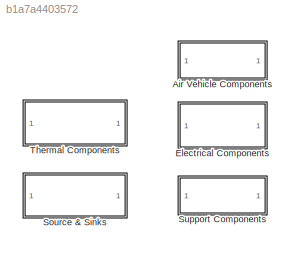
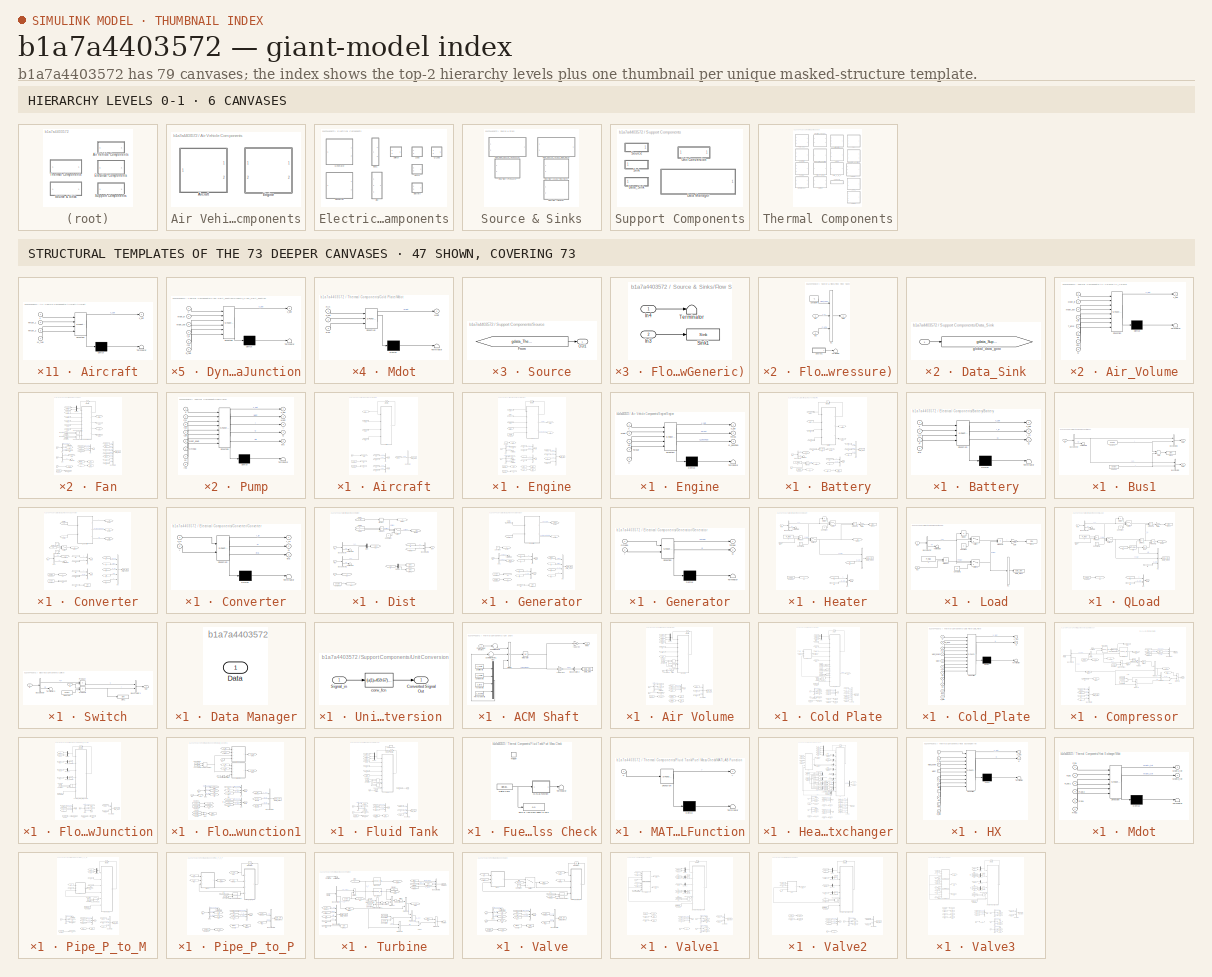
[diagram: thumbnail index - top-2 hierarchy levels (6 canvases) + 47 structural-template representatives of the remaining 73 canvases]
MODEL slx_b1a7a4403572
KIND library
CONFIG AbsTol = auto
CONFIG FixedStep = auto
CONFIG MaxStep = auto
CONFIG MinStep = auto
CONFIG RelTol = 1e-3
CONFIG SampleTimeConstraint = Unconstrained
CONFIG Solver = ode45
CONFIG SolverMode = Auto
CONFIG SolverName = ode45
CONFIG StartTime = 0.0
CONFIG StopTime = 10.0
BLOCK [SubSystem] Air Vehicle Components
  Ports = []
  RequestExecContextInheritance = off
  Variant = off
BLOCK [SubSystem] Air Vehicle Components/Aircraft
  OpenFcn = load('Fluids.mat');\nSet_Fluid_Popup_Names( Fluid )
  Ports = [1, 2]
  RequestExecContextInheritance = off
  Variant = off
BLOCK [SubSystem] Air Vehicle Components/Aircraft/Aircraft
  ErrorFcn = Stateflow.Translate.translate
  PermitHierarchicalResolution = ExplicitOnly
  Ports = [4, 1]
  RequestExecContextInheritance = off
  SFBlockType = MATLAB Function
  TreatAsAtomicUnit = on
  Variant = off
BLOCK [Demux] Air Vehicle Components/Aircraft/Aircraft/ Demux 
  Outputs = 1
  Ports = [1, 1]
BLOCK [S-Function] Air Vehicle Components/Aircraft/Aircraft/ SFunction 
  EnableBusSupport = off
  FunctionName = sf_sfun
  Parameters = A,Cd,M_dry,M_load,rho
  PortCounts = [4 2]
  Ports = [4, 2]
  SFunctionDeploymentMode = off
  Tag = Stateflow S-Function APST_Lib 10
BLOCK [Terminator] Air Vehicle Components/Aircraft/Aircraft/ Terminator 
BLOCK [Inport] Air Vehicle Components/Aircraft/Aircraft/M_fuel
  IconDisplay = Port number
  Port = 4
BLOCK [Inport] Air Vehicle Components/Aircraft/Aircraft/Thrust_1
  IconDisplay = Port number
  Port = 2
BLOCK [Inport] Air Vehicle Components/Aircraft/Aircraft/Thrust_2
  IconDisplay = Port number
  Port = 3
BLOCK [Inport] Air Vehicle Components/Aircraft/Aircraft/x
  IconDisplay = Port number
BLOCK [Outport] Air Vehicle Components/Aircraft/Aircraft/x_dot
  IconDisplay = Port number
BLOCK [BusCreator] Air Vehicle Components/Aircraft/Bus Creator2
  DisplayOption = bar
  InheritFromInputs = on
  Inputs = 1
  Ports = [1, 1]
BLOCK [Reference] Air Vehicle Components/Aircraft/Data_Sink1  REF=APST_Lib/Support Components/Data_Sink
  Ports = [1]
  SourceBlock = APST_Lib/Support Components/Data_Sink
  SourceType = Data Sink
BLOCK [From] Air Vehicle Components/Aircraft/From1
  CloseFcn = tagdialog Close
  GotoTag = Thrust_2
BLOCK [From] Air Vehicle Components/Aircraft/From11
  CloseFcn = tagdialog Close
  GotoTag = Vel
BLOCK [From] Air Vehicle Components/Aircraft/From6
  CloseFcn = tagdialog Close
  GotoTag = Thrust_1
BLOCK [Inport] Air Vehicle Components/Aircraft/In1
  IconDisplay = Port number
BLOCK [Integrator] Air Vehicle Components/Aircraft/Integrate
  InitialCondition = Vel_init
  Ports = [1, 1]
BLOCK [Outport] Air Vehicle Components/Aircraft/Out1
  IconDisplay = Port number
BLOCK [Outport] Air Vehicle Components/Aircraft/Out2
  IconDisplay = Port number
  Port = 2
BLOCK [Reference] Air Vehicle Components/Aircraft/Source1  REF=APST_Lib/Support Components/Source
  Ports = [0, 1]
  SourceBlock = APST_Lib/Support Components/Source
  SourceType = Source
BLOCK [Reference] Air Vehicle Components/Aircraft/Source2  REF=APST_Lib/Support Components/Source
  Ports = [0, 1]
  SourceBlock = APST_Lib/Support Components/Source
  SourceType = Source
BLOCK [BusCreator] Air Vehicle Components/Aircraft/b1
  DisplayOption = bar
  InheritFromInputs = on
  Inputs = 2
  Ports = [2, 1]
BLOCK [BusCreator] Air Vehicle Components/Aircraft/b2
  DisplayOption = bar
  InheritFromInputs = on
  Inputs = 2
  Ports = [2, 1]
BLOCK [Goto] Air Vehicle Components/Aircraft/g1
  GotoTag = Thrust_1
BLOCK [Goto] Air Vehicle Components/Aircraft/g2
  GotoTag = Thrust_2
BLOCK [Goto] Air Vehicle Components/Aircraft/gm3
  GotoTag = M_fuel
BLOCK [Goto] Air Vehicle Components/Aircraft/gm4
  GotoTag = Vel
BLOCK [From] Air Vehicle Components/Aircraft/m1
  CloseFcn = tagdialog Close
  GotoTag = Vel
BLOCK [From] Air Vehicle Components/Aircraft/m2
  CloseFcn = tagdialog Close
  GotoTag = Vel
BLOCK [From] Air Vehicle Components/Aircraft/m3
  CloseFcn = tagdialog Close
  GotoTag = M_fuel
BLOCK [From] Air Vehicle Components/Aircraft/t1
  CloseFcn = tagdialog Close
  GotoTag = Thrust_1
BLOCK [From] Air Vehicle Components/Aircraft/t2
  CloseFcn = tagdialog Close
  GotoTag = Thrust_2
BLOCK [SubSystem] Air Vehicle Components/Engine
  OpenFcn = load('Fluids.mat');\nSet_Fluid_Popup_Names( Fluid )
  Ports = [2, 2]
  RequestExecContextInheritance = off
  Variant = off
BLOCK [Constant] Air Vehicle Components/Engine/Constant
  Value = P
BLOCK [Constant] Air Vehicle Components/Engine/Constant1
  Value = Fuel.U
BLOCK [Reference] Air Vehicle Components/Engine/Data_Sink1  REF=APST_Lib/Support Components/Data_Sink
  Ports = [1]
  SourceBlock = APST_Lib/Support Components/Data_Sink
  SourceType = Data Sink
BLOCK [SubSystem] Air Vehicle Components/Engine/Engine
  ErrorFcn = Stateflow.Translate.translate
  PermitHierarchicalResolution = ExplicitOnly
  Ports = [5, 3]
  RequestExecContextInheritance = off
  SFBlockType = MATLAB Function
  TreatAsAtomicUnit = on
  Variant = off
BLOCK [Demux] Air Vehicle Components/Engine/Engine/ Demux 
  Outputs = 1
  Ports = [1, 1]
BLOCK [S-Function] Air Vehicle Components/Engine/Engine/ SFunction 
  EnableBusSupport = off
  FunctionName = sf_sfun
  Parameters = J,Omega_max,Thrust_max,alpha,eta
  PortCounts = [5 4]
  Ports = [5, 4]
  SFunctionDeploymentMode = off
  Tag = Stateflow S-Function APST_Lib 14
BLOCK [Terminator] Air Vehicle Components/Engine/Engine/ Terminator 
BLOCK [Inport] Air Vehicle Components/Engine/Engine/Mdot
  IconDisplay = Port number
  Port = 2
BLOCK [Outport] Air Vehicle Components/Engine/Engine/Q_bearings
  IconDisplay = Port number
  Port = 3
BLOCK [Outport] Air Vehicle Components/Engine/Engine/Thrust
  IconDisplay = Port number
  Port = 2
BLOCK [Inport] Air Vehicle Components/Engine/Engine/Torque
  IconDisplay = Port number
  Port = 4
BLOCK [Inport] Air Vehicle Components/Engine/Engine/U
  IconDisplay = Port number
  Port = 5
BLOCK [Inport] Air Vehicle Components/Engine/Engine/Vel
  IconDisplay = Port number
  Port = 3
BLOCK [Inport] Air Vehicle Components/Engine/Engine/x
  IconDisplay = Port number
BLOCK [Outport] Air Vehicle Components/Engine/Engine/x_dot
  IconDisplay = Port number
BLOCK [From] Air Vehicle Components/Engine/From1
  CloseFcn = tagdialog Close
  GotoTag = Mdot
BLOCK [From] Air Vehicle Components/Engine/From11
  CloseFcn = tagdialog Close
  GotoTag = Omega
BLOCK [From] Air Vehicle Components/Engine/From2
  CloseFcn = tagdialog Close
  GotoTag = Torque
BLOCK [From] Air Vehicle Components/Engine/From6
  CloseFcn = tagdialog Close
  GotoTag = Vel
BLOCK [Goto] Air Vehicle Components/Engine/Goto1
  GotoTag = P_out
BLOCK [Goto] Air Vehicle Components/Engine/Goto2
  GotoTag = Q
BLOCK [Goto] Air Vehicle Components/Engine/Goto4
  GotoTag = Thrust
BLOCK [Inport] Air Vehicle Components/Engine/In1
  IconDisplay = Port number
BLOCK [Inport] Air Vehicle Components/Engine/In2
  IconDisplay = Port number
  Port = 2
BLOCK [Integrator] Air Vehicle Components/Engine/Integrate
  InitialCondition = [Omega_init]
  Ports = [1, 1]
BLOCK [Outport] Air Vehicle Components/Engine/Out1
  IconDisplay = Port number
BLOCK [Outport] Air Vehicle Components/Engine/Out2
  IconDisplay = Port number
  Port = 2
BLOCK [Reference] Air Vehicle Components/Engine/Sink1  REF=APST_Lib/Support Components/Sink
  Ports = [1]
  SourceBlock = APST_Lib/Support Components/Sink
  SourceType = Sink
BLOCK [Reference] Air Vehicle Components/Engine/Sink2  REF=APST_Lib/Support Components/Sink
  Ports = [1]
  SourceBlock = APST_Lib/Support Components/Sink
  SourceType = Sink
BLOCK [Reference] Air Vehicle Components/Engine/Source1  REF=APST_Lib/Support Components/Source
  Ports = [0, 1]
  SourceBlock = APST_Lib/Support Components/Source
  SourceType = Source
BLOCK [Reference] Air Vehicle Components/Engine/Source2  REF=APST_Lib/Support Components/Source
  Ports = [0, 1]
  SourceBlock = APST_Lib/Support Components/Source
  SourceType = Source
BLOCK [Terminator] Air Vehicle Components/Engine/Terminator1
BLOCK [Terminator] Air Vehicle Components/Engine/Terminator3
BLOCK [Terminator] Air Vehicle Components/Engine/Terminator4
BLOCK [BusCreator] Air Vehicle Components/Engine/b1
  DisplayOption = bar
  InheritFromInputs = on
  Inputs = 4
  Ports = [4, 1]
BLOCK [BusCreator] Air Vehicle Components/Engine/b2
  DisplayOption = bar
  InheritFromInputs = on
  Inputs = 2
  Ports = [2, 1]
BLOCK [BusCreator] Air Vehicle Components/Engine/b3
  DisplayOption = bar
  InheritFromInputs = on
  Inputs = 2
  Ports = [2, 1]
BLOCK [Goto] Air Vehicle Components/Engine/g1
  GotoTag = Torque
BLOCK [Goto] Air Vehicle Components/Engine/g2
  GotoTag = T
BLOCK [BusSelector] Air Vehicle Components/Engine/gb1
  OutputSignals = Velocity,Thrust
  Ports = [1, 2]
BLOCK [BusSelector] Air Vehicle Components/Engine/gb2
  OutputSignals = mdot_kgps,T_C,P_kPa
  Ports = [1, 3]
BLOCK [Goto] Air Vehicle Components/Engine/gm1
  GotoTag = Mdot
BLOCK [Goto] Air Vehicle Components/Engine/gm5
  GotoTag = Omega
BLOCK [Goto] Air Vehicle Components/Engine/gm9
  GotoTag = Vel
BLOCK [From] Air Vehicle Components/Engine/m1
  CloseFcn = tagdialog Close
  GotoTag = Torque
BLOCK [From] Air Vehicle Components/Engine/m2
  CloseFcn = tagdialog Close
  GotoTag = T
BLOCK [From] Air Vehicle Components/Engine/m3
  CloseFcn = tagdialog Close
  GotoTag = T
BLOCK [From] Air Vehicle Components/Engine/p2
  CloseFcn = tagdialog Close
  GotoTag = Thrust
BLOCK [From] Air Vehicle Components/Engine/p5
  CloseFcn = tagdialog Close
  GotoTag = P_out
BLOCK [From] Air Vehicle Components/Engine/t1
  CloseFcn = tagdialog Close
  GotoTag = Omega
BLOCK [From] Air Vehicle Components/Engine/t2
  CloseFcn = tagdialog Close
  GotoTag = Thrust
BLOCK [From] Air Vehicle Components/Engine/t3
  CloseFcn = tagdialog Close
  GotoTag = Q
BLOCK [From] Air Vehicle Components/Engine/t6
  CloseFcn = tagdialog Close
  GotoTag = Q
BLOCK [SubSystem] Electrical Components
  Ports = []
  RequestExecContextInheritance = off
  Variant = off
BLOCK [SubSystem] Electrical Components/Battery
  Ports = [2, 1]
  RequestExecContextInheritance = off
  Variant = off
BLOCK [SubSystem] Electrical Components/Battery/Battery
  ErrorFcn = Stateflow.Translate.translate
  PermitHierarchicalResolution = ExplicitOnly
  Ports = [4, 3]
  RequestExecContextInheritance = off
  SFBlockType = MATLAB Function
  TreatAsAtomicUnit = on
  Variant = off
BLOCK [Demux] Electrical Components/Battery/Battery/ Demux 
  Outputs = 1
  Ports = [1, 1]
BLOCK [S-Function] Electrical Components/Battery/Battery/ SFunction 
  EnableBusSupport = off
  FunctionName = sf_sfun
  Parameters = C
  PortCounts = [4 4]
  Ports = [4, 4]
  SFunctionDeploymentMode = off
  Tag = Stateflow S-Function APST_Lib 27
BLOCK [Terminator] Electrical Components/Battery/Battery/ Terminator 
BLOCK [Outport] Electrical Components/Battery/Battery/I_in
  IconDisplay = Port number
  Port = 2
BLOCK [Inport] Electrical Components/Battery/Battery/P
  IconDisplay = Port number
  Port = 3
BLOCK [Outport] Electrical Components/Battery/Battery/Q
  IconDisplay = Port number
  Port = 3
BLOCK [Inport] Electrical Components/Battery/Battery/V_in
  IconDisplay = Port number
  Port = 2
BLOCK [Inport] Electrical Components/Battery/Battery/eta
  IconDisplay = Port number
  Port = 4
BLOCK [Inport] Electrical Components/Battery/Battery/x
  IconDisplay = Port number
BLOCK [Outport] Electrical Components/Battery/Battery/x_dot
  IconDisplay = Port number
BLOCK [BusSelector] Electrical Components/Battery/Bus Selector
  OutputSignals = V,I
  Ports = [1, 2]
BLOCK [Reference] Electrical Components/Battery/Data_Sink1  REF=APST_Lib/Support Components/Data_Sink
  Ports = [1]
  SourceBlock = APST_Lib/Support Components/Data_Sink
  SourceType = Data Sink
BLOCK [Goto] Electrical Components/Battery/Goto1
  GotoTag = SOC
BLOCK [Goto] Electrical Components/Battery/Goto2
  GotoTag = Q
BLOCK [Goto] Electrical Components/Battery/Goto3
  GotoTag = eta
BLOCK [Goto] Electrical Components/Battery/Goto4
  GotoTag = P
BLOCK [Goto] Electrical Components/Battery/Goto5
  GotoTag = I_in
BLOCK [Inport] Electrical Components/Battery/In1
  IconDisplay = Port number
BLOCK [Inport] Electrical Components/Battery/In2
  IconDisplay = Port number
  Port = 2
BLOCK [Integrator] Electrical Components/Battery/Integrate
  InitialCondition = [SOC0]
  Ports = [1, 1]
BLOCK [Outport] Electrical Components/Battery/Out1
  IconDisplay = Port number
BLOCK [Constant] Electrical Components/Battery/P
  Value = P_max
BLOCK [Product] Electrical Components/Battery/Product
  InputSameDT = off
  OutDataTypeStr = Inherit: Inherit via internal rule
  Ports = [2, 1]
  RndMeth = Floor
  SaturateOnIntegerOverflow = off
BLOCK [Reference] Electrical Components/Battery/Sink1  REF=APST_Lib/Support Components/Sink
  Ports = [1]
  SourceBlock = APST_Lib/Support Components/Sink
  SourceType = Sink
BLOCK [Reference] Electrical Components/Battery/Source1  REF=APST_Lib/Support Components/Source
  Ports = [0, 1]
  SourceBlock = APST_Lib/Support Components/Source
  SourceType = Source
BLOCK [Terminator] Electrical Components/Battery/Terminator3
BLOCK [BusCreator] Electrical Components/Battery/b1
  DisplayOption = bar
  InheritFromInputs = on
  Inputs = 3
  Ports = [3, 1]
BLOCK [BusCreator] Electrical Components/Battery/b2
  DisplayOption = bar
  InheritFromInputs = on
  Inputs = 2
  Ports = [2, 1]
BLOCK [Fcn] Electrical Components/Battery/eta
  Expr = a*u^2+b*u+c
BLOCK [Goto] Electrical Components/Battery/g1
  GotoTag = T
BLOCK [Goto] Electrical Components/Battery/g2
  GotoTag = V_in
BLOCK [From] Electrical Components/Battery/m1
  CloseFcn = tagdialog Close
  GotoTag = T
BLOCK [From] Electrical Components/Battery/m2
  CloseFcn = tagdialog Close
  GotoTag = T
BLOCK [From] Electrical Components/Battery/m3
  CloseFcn = tagdialog Close
  GotoTag = V_in
BLOCK [From] Electrical Components/Battery/t1
  CloseFcn = tagdialog Close
  GotoTag = Q
BLOCK [From] Electrical Components/Battery/t2
  CloseFcn = tagdialog Close
  GotoTag = Q
BLOCK [From] Electrical Components/Battery/t3
  CloseFcn = tagdialog Close
  GotoTag = SOC
BLOCK [From] Electrical Components/Battery/t4
  CloseFcn = tagdialog Close
  GotoTag = P
BLOCK [From] Electrical Components/Battery/t5
  CloseFcn = tagdialog Close
  GotoTag = I_in
BLOCK [From] Electrical Components/Battery/t6
  CloseFcn = tagdialog Close
  GotoTag = P
BLOCK [From] Electrical Components/Battery/t7
  CloseFcn = tagdialog Close
  GotoTag = eta
BLOCK [SubSystem] Electrical Components/Bus1
  Ports = [1, 2]
  RequestExecContextInheritance = off
  Variant = off
BLOCK [Sum] Electrical Components/Bus1/Add
  InputSameDT = off
  OutDataTypeStr = Inherit: Inherit via internal rule
  Ports = [2, 1]
  SaturateOnIntegerOverflow = off
BLOCK [BusCreator] Electrical Components/Bus1/Bus Creator1
  DisplayOption = bar
  InheritFromInputs = on
  Inputs = 2
  Ports = [2, 1]
BLOCK [BusCreator] Electrical Components/Bus1/Bus Creator2
  DisplayOption = bar
  InheritFromInputs = on
  Inputs = 2
  Ports = [2, 1]
BLOCK [BusSelector] Electrical Components/Bus1/Bus Selector
  OutputSignals = V,I
  Ports = [1, 2]
BLOCK [Inport] Electrical Components/Bus1/In
  IconDisplay = Port number
BLOCK [Outport] Electrical Components/Bus1/Out1
  IconDisplay = Port number
BLOCK [Outport] Electrical Components/Bus1/Out2
  IconDisplay = Port number
  Port = 2
BLOCK [Reference] Electrical Components/Bus1/Sink1  REF=APST_Lib/Support Components/Sink
  Ports = [1]
  SourceBlock = APST_Lib/Support Components/Sink
  SourceType = Sink
BLOCK [Reference] Electrical Components/Bus1/Source1  REF=APST_Lib/Support Components/Source
  Ports = [0, 1]
  SourceBlock = APST_Lib/Support Components/Source
  SourceType = Source
BLOCK [Reference] Electrical Components/Bus1/Source2  REF=APST_Lib/Support Components/Source
  Ports = [0, 1]
  SourceBlock = APST_Lib/Support Components/Source
  SourceType = Source
BLOCK [Terminator] Electrical Components/Bus1/Terminator3
BLOCK [SubSystem] Electrical Components/Converter
  OpenFcn = load('Fluids.mat');\nSet_Fluid_Popup_Names( Fluid )
  Ports = [1, 2]
  RequestExecContextInheritance = off
  Variant = off
BLOCK [Constant] Electrical Components/Converter/Constant
  Value = V
BLOCK [Constant] Electrical Components/Converter/Constant1
  Value = 0
BLOCK [SubSystem] Electrical Components/Converter/Converter
  ErrorFcn = Stateflow.Translate.translate
  PermitHierarchicalResolution = ExplicitOnly
  Ports = [2, 3]
  RequestExecContextInheritance = off
  SFBlockType = MATLAB Function
  TreatAsAtomicUnit = on
  Variant = off
BLOCK [Demux] Electrical Components/Converter/Converter/ Demux 
  Outputs = 1
  Ports = [1, 1]
BLOCK [S-Function] Electrical Components/Converter/Converter/ SFunction 
  EnableBusSupport = off
  FunctionName = sf_sfun
  Parameters = I0,V,eta_max,eta_min
  PortCounts = [2 4]
  Ports = [2, 4]
  SFunctionDeploymentMode = off
  Tag = Stateflow S-Function APST_Lib 29
BLOCK [Terminator] Electrical Components/Converter/Converter/ Terminator 
BLOCK [Inport] Electrical Components/Converter/Converter/I
  IconDisplay = Port number
  Port = 2
BLOCK [Outport] Electrical Components/Converter/Converter/I_in
  IconDisplay = Port number
BLOCK [Outport] Electrical Components/Converter/Converter/Q
  IconDisplay = Port number
  Port = 2
BLOCK [Inport] Electrical Components/Converter/Converter/V_in
  IconDisplay = Port number
BLOCK [Outport] Electrical Components/Converter/Converter/eta
  IconDisplay = Port number
  Port = 3
BLOCK [Reference] Electrical Components/Converter/Data_Sink1  REF=APST_Lib/Support Components/Data_Sink
  Ports = [1]
  SourceBlock = APST_Lib/Support Components/Data_Sink
  SourceType = Data Sink
BLOCK [From] Electrical Components/Converter/From1
  CloseFcn = tagdialog Close
  GotoTag = V_in
BLOCK [From] Electrical Components/Converter/From2
  CloseFcn = tagdialog Close
  GotoTag = V_in
BLOCK [From] Electrical Components/Converter/From6
  CloseFcn = tagdialog Close
  GotoTag = I
BLOCK [Goto] Electrical Components/Converter/Goto1
  GotoTag = V
BLOCK [Goto] Electrical Components/Converter/Goto2
  GotoTag = Q
BLOCK [Goto] Electrical Components/Converter/Goto3
  GotoTag = eta
BLOCK [Goto] Electrical Components/Converter/Goto4
  GotoTag = I_in
BLOCK [Inport] Electrical Components/Converter/In1
  IconDisplay = Port number
BLOCK [Outport] Electrical Components/Converter/Out1
  IconDisplay = Port number
BLOCK [Outport] Electrical Components/Converter/Out2
  IconDisplay = Port number
  Port = 2
BLOCK [Reference] Electrical Components/Converter/Sink1  REF=APST_Lib/Support Components/Sink
  Ports = [1]
  SourceBlock = APST_Lib/Support Components/Sink
  SourceType = Sink
BLOCK [Reference] Electrical Components/Converter/Source1  REF=APST_Lib/Support Components/Source
  Ports = [0, 1]
  SourceBlock = APST_Lib/Support Components/Source
  SourceType = Source
BLOCK [Reference] Electrical Components/Converter/Source2  REF=APST_Lib/Support Components/Source
  Ports = [0, 1]
  SourceBlock = APST_Lib/Support Components/Source
  SourceType = Source
BLOCK [Switch] Electrical Components/Converter/Switch
  Criteria = u2 > Threshold
  InputSameDT = off
  SaturateOnIntegerOverflow = off
BLOCK [Terminator] Electrical Components/Converter/Terminator2
BLOCK [BusCreator] Electrical Components/Converter/b1
  DisplayOption = bar
  InheritFromInputs = on
  Inputs = 5
  Ports = [5, 1]
BLOCK [BusCreator] Electrical Components/Converter/b2
  DisplayOption = bar
  InheritFromInputs = on
  Inputs = 2
  Ports = [2, 1]
BLOCK [BusCreator] Electrical Components/Converter/b3
  DisplayOption = bar
  InheritFromInputs = on
  Inputs = 2
  Ports = [2, 1]
BLOCK [Goto] Electrical Components/Converter/g1
  GotoTag = I
BLOCK [Goto] Electrical Components/Converter/g2
  GotoTag = T
BLOCK [BusSelector] Electrical Components/Converter/gb1
  OutputSignals = V,I
  Ports = [1, 2]
BLOCK [Goto] Electrical Components/Converter/gm3
  GotoTag = V_in
BLOCK [From] Electrical Components/Converter/m1
  CloseFcn = tagdialog Close
  GotoTag = V
BLOCK [From] Electrical Components/Converter/m2
  CloseFcn = tagdialog Close
  GotoTag = T
BLOCK [From] Electrical Components/Converter/m3
  CloseFcn = tagdialog Close
  GotoTag = T
BLOCK [From] Electrical Components/Converter/p5
  CloseFcn = tagdialog Close
  GotoTag = I_in
BLOCK [From] Electrical Components/Converter/t1
  CloseFcn = tagdialog Close
  GotoTag = I
BLOCK [From] Electrical Components/Converter/t2
  CloseFcn = tagdialog Close
  GotoTag = I_in
BLOCK [From] Electrical Components/Converter/t3
  CloseFcn = tagdialog Close
  GotoTag = I
BLOCK [From] Electrical Components/Converter/t4
  CloseFcn = tagdialog Close
  GotoTag = eta
BLOCK [From] Electrical Components/Converter/t5
  CloseFcn = tagdialog Close
  GotoTag = Q
BLOCK [From] Electrical Components/Converter/t6
  CloseFcn = tagdialog Close
  GotoTag = Q
BLOCK [SubSystem] Electrical Components/Dist
  Ports = [3, 1]
  RequestExecContextInheritance = off
  Variant = off
BLOCK [BusCreator] Electrical Components/Dist/Bus Creator1
  DisplayOption = bar
  InheritFromInputs = on
  Inputs = 2
  Ports = [2, 1]
BLOCK [BusSelector] Electrical Components/Dist/Bus Selector
  OutputSignals = V,I
  Ports = [1, 2]
BLOCK [BusSelector] Electrical Components/Dist/Bus Selector1
  OutputSignals = V,I
  Ports = [1, 2]
BLOCK [Constant] Electrical Components/Dist/Constant
  Value = 0
BLOCK [Demux] Electrical Components/Dist/Demux
  DisplayOption = bar
  Outputs = 2
  Ports = [1, 2]
BLOCK [From] Electrical Components/Dist/From1
  CloseFcn = tagdialog Close
  GotoTag = V_ins
BLOCK [From] Electrical Components/Dist/From2
  CloseFcn = tagdialog Close
  GotoTag = I
BLOCK [From] Electrical Components/Dist/From3
  CloseFcn = tagdialog Close
  GotoTag = u
BLOCK [From] Electrical Components/Dist/From6
  CloseFcn = tagdialog Close
  GotoTag = I
BLOCK [Goto] Electrical Components/Dist/Goto2
  GotoTag = I_ins
BLOCK [Goto] Electrical Components/Dist/Goto4
  GotoTag = V
BLOCK [Inport] Electrical Components/Dist/In1
  IconDisplay = Port number
BLOCK [Inport] Electrical Components/Dist/In2
  IconDisplay = Port number
  Port = 2
BLOCK [MinMax] Electrical Components/Dist/MinMax
  InputSameDT = off
  Ports = [1, 1]
  SaturateOnIntegerOverflow = off
BLOCK [Mux] Electrical Components/Dist/Mux
  DisplayOption = bar
  Inputs = 2
  Ports = [2, 1]
BLOCK [Outport] Electrical Components/Dist/Out
  IconDisplay = Port number
BLOCK [Product] Electrical Components/Dist/Product
  InputSameDT = off
  Multiplication = Matrix(*)
  OutDataTypeStr = Inherit: Inherit via internal rule
  Ports = [2, 1]
  RndMeth = Floor
  SaturateOnIntegerOverflow = off
BLOCK [Reference] Electrical Components/Dist/Sink1  REF=APST_Lib/Support Components/Sink
  Ports = [1]
  SourceBlock = APST_Lib/Support Components/Sink
  SourceType = Sink
BLOCK [Reference] Electrical Components/Dist/Sink2  REF=APST_Lib/Support Components/Sink
  Ports = [1]
  SourceBlock = APST_Lib/Support Components/Sink
  SourceType = Sink
BLOCK [Reference] Electrical Components/Dist/Source1  REF=APST_Lib/Support Components/Source
  Ports = [0, 1]
  SourceBlock = APST_Lib/Support Components/Source
  SourceType = Source
BLOCK [Switch] Electrical Components/Dist/Switch
  Criteria = u2 > Threshold
  InputSameDT = off
  SaturateOnIntegerOverflow = off
BLOCK [Terminator] Electrical Components/Dist/Terminator1
BLOCK [Terminator] Electrical Components/Dist/Terminator3
BLOCK [Goto] Electrical Components/Dist/g1
  GotoTag = I
BLOCK [Goto] Electrical Components/Dist/g2
  GotoTag = V_ins
BLOCK [Goto] Electrical Components/Dist/g3
  GotoTag = u
BLOCK [From] Electrical Components/Dist/t1
  CloseFcn = tagdialog Close
  GotoTag = V
BLOCK [From] Electrical Components/Dist/t2
  CloseFcn = tagdialog Close
  GotoTag = I_ins
BLOCK [Inport] Electrical Components/Dist/u
  IconDisplay = Port number
  Port = 3
BLOCK [SubSystem] Electrical Components/Generator
  OpenFcn = load('Fluids.mat');\nSet_Fluid_Popup_Names( Fluid )
  Ports = [1, 2]
  RequestExecContextInheritance = off
  Variant = off
BLOCK [Constant] Electrical Components/Generator/Constant
  Value = V
BLOCK [Reference] Electrical Components/Generator/Data_Sink1  REF=APST_Lib/Support Components/Data_Sink
  Ports = [1]
  SourceBlock = APST_Lib/Support Components/Data_Sink
  SourceType = Data Sink
BLOCK [From] Electrical Components/Generator/From1
  CloseFcn = tagdialog Close
  GotoTag = Omega
BLOCK [From] Electrical Components/Generator/From6
  CloseFcn = tagdialog Close
  GotoTag = I
BLOCK [SubSystem] Electrical Components/Generator/Generator
  ErrorFcn = Stateflow.Translate.translate
  PermitHierarchicalResolution = ExplicitOnly
  Ports = [2, 2]
  RequestExecContextInheritance = off
  SFBlockType = MATLAB Function
  TreatAsAtomicUnit = on
  Variant = off
BLOCK [Demux] Electrical Components/Generator/Generator/ Demux 
  Outputs = 1
  Ports = [1, 1]
BLOCK [S-Function] Electrical Components/Generator/Generator/ SFunction 
  EnableBusSupport = off
  FunctionName = sf_sfun
  Parameters = V,eta
  PortCounts = [2 3]
  Ports = [2, 3]
  SFunctionDeploymentMode = off
  Tag = Stateflow S-Function APST_Lib 6
BLOCK [Terminator] Electrical Components/Generator/Generator/ Terminator 
BLOCK [Inport] Electrical Components/Generator/Generator/I
  IconDisplay = Port number
  Port = 2
BLOCK [Inport] Electrical Components/Generator/Generator/Omega
  IconDisplay = Port number
BLOCK [Outport] Electrical Components/Generator/Generator/Q
  IconDisplay = Port number
  Port = 2
BLOCK [Outport] Electrical Components/Generator/Generator/Torque
  IconDisplay = Port number
BLOCK [Goto] Electrical Components/Generator/Goto1
  GotoTag = V
BLOCK [Goto] Electrical Components/Generator/Goto2
  GotoTag = Q
BLOCK [Goto] Electrical Components/Generator/Goto4
  GotoTag = Torque
BLOCK [Inport] Electrical Components/Generator/In1
  IconDisplay = Port number
BLOCK [Outport] Electrical Components/Generator/Out1
  IconDisplay = Port number
BLOCK [Outport] Electrical Components/Generator/Out2
  IconDisplay = Port number
  Port = 2
BLOCK [Reference] Electrical Components/Generator/Sink1  REF=APST_Lib/Support Components/Sink
  Ports = [1]
  SourceBlock = APST_Lib/Support Components/Sink
  SourceType = Sink
BLOCK [Reference] Electrical Components/Generator/Source1  REF=APST_Lib/Support Components/Source
  Ports = [0, 1]
  SourceBlock = APST_Lib/Support Components/Source
  SourceType = Source
BLOCK [Reference] Electrical Components/Generator/Source2  REF=APST_Lib/Support Components/Source
  Ports = [0, 1]
  SourceBlock = APST_Lib/Support Components/Source
  SourceType = Source
BLOCK [Terminator] Electrical Components/Generator/Terminator2
BLOCK [BusCreator] Electrical Components/Generator/b1
  DisplayOption = bar
  InheritFromInputs = on
  Inputs = 4
  Ports = [4, 1]
BLOCK [BusCreator] Electrical Components/Generator/b2
  DisplayOption = bar
  InheritFromInputs = on
  Inputs = 2
  Ports = [2, 1]
BLOCK [BusCreator] Electrical Components/Generator/b3
  DisplayOption = bar
  InheritFromInputs = on
  Inputs = 2
  Ports = [2, 1]
BLOCK [Goto] Electrical Components/Generator/g1
  GotoTag = I
BLOCK [Goto] Electrical Components/Generator/g2
  GotoTag = T
BLOCK [BusSelector] Electrical Components/Generator/gb1
  OutputSignals = Torque,Omega
  Ports = [1, 2]
BLOCK [Goto] Electrical Components/Generator/gm3
  GotoTag = Omega
BLOCK [From] Electrical Components/Generator/m1
  CloseFcn = tagdialog Close
  GotoTag = V
BLOCK [From] Electrical Components/Generator/m2
  CloseFcn = tagdialog Close
  GotoTag = T
BLOCK [From] Electrical Components/Generator/m3
  CloseFcn = tagdialog Close
  GotoTag = T
BLOCK [From] Electrical Components/Generator/p5
  CloseFcn = tagdialog Close
  GotoTag = Torque
BLOCK [From] Electrical Components/Generator/t1
  CloseFcn = tagdialog Close
  GotoTag = I
BLOCK [From] Electrical Components/Generator/t2
  CloseFcn = tagdialog Close
  GotoTag = Torque
BLOCK [From] Electrical Components/Generator/t3
  CloseFcn = tagdialog Close
  GotoTag = I
BLOCK [From] Electrical Components/Generator/t4
  CloseFcn = tagdialog Close
  GotoTag = Q
BLOCK [From] Electrical Components/Generator/t6
  CloseFcn = tagdialog Close
  GotoTag = Q
BLOCK [SubSystem] Electrical Components/Heater
  Ports = [2, 1]
  RequestExecContextInheritance = off
  Variant = off
BLOCK [BusSelector] Electrical Components/Heater/Bus Selector
  OutputSignals = V,I
  Ports = [1, 2]
BLOCK [Constant] Electrical Components/Heater/Constant
  Value = 0
BLOCK [Constant] Electrical Components/Heater/Constant1
  Value = 0
BLOCK [Reference] Electrical Components/Heater/Data_Sink1  REF=APST_Lib/Support Components/Data_Sink
  Ports = [1]
  SourceBlock = APST_Lib/Support Components/Data_Sink
  SourceType = Data Sink
BLOCK [Product] Electrical Components/Heater/Divide
  InputSameDT = off
  Inputs = /
  OutDataTypeStr = Inherit: Inherit via internal rule
  Ports = [1, 1]
  RndMeth = Floor
  SaturateOnIntegerOverflow = off
BLOCK [Gain] Electrical Components/Heater/Gain
  Gain = 1000
  OutDataTypeStr = Inherit: Inherit via internal rule
  ParamDataTypeStr = Inherit: Inherit via internal rule
  SaturateOnIntegerOverflow = off
BLOCK [Goto] Electrical Components/Heater/Goto2
  GotoTag = Q
BLOCK [Inport] Electrical Components/Heater/In1
  IconDisplay = Port number
BLOCK [Inport] Electrical Components/Heater/In2
  IconDisplay = Port number
  Port = 2
BLOCK [Outport] Electrical Components/Heater/Out1
  IconDisplay = Port number
BLOCK [Constant] Electrical Components/Heater/P
  Value = P_max
BLOCK [Product] Electrical Components/Heater/Product
  InputSameDT = off
  OutDataTypeStr = Inherit: Inherit via internal rule
  Ports = [2, 1]
  RndMeth = Floor
  SaturateOnIntegerOverflow = off
BLOCK [Product] Electrical Components/Heater/Product1
  InputSameDT = off
  OutDataTypeStr = Inherit: Inherit via internal rule
  Ports = [2, 1]
  RndMeth = Floor
  SaturateOnIntegerOverflow = off
BLOCK [Reference] Electrical Components/Heater/Sink1  REF=APST_Lib/Support Components/Sink
  Ports = [1]
  SourceBlock = APST_Lib/Support Components/Sink
  SourceType = Sink
BLOCK [Reference] Electrical Components/Heater/Source1  REF=APST_Lib/Support Components/Source
  Ports = [0, 1]
  SourceBlock = APST_Lib/Support Components/Source
  SourceType = Source
BLOCK [Switch] Electrical Components/Heater/Switch
  Criteria = u2 > Threshold
  InputSameDT = off
  SaturateOnIntegerOverflow = off
BLOCK [Switch] Electrical Components/Heater/Switch1
  Criteria = u2 > Threshold
  InputSameDT = off
  SaturateOnIntegerOverflow = off
BLOCK [Terminator] Electrical Components/Heater/Terminator3
BLOCK [BusCreator] Electrical Components/Heater/b1
  DisplayOption = bar
  InheritFromInputs = on
  Inputs = 2
  Ports = [2, 1]
BLOCK [BusCreator] Electrical Components/Heater/b2
  DisplayOption = bar
  InheritFromInputs = on
  Inputs = 2
  Ports = [2, 1]
BLOCK [Goto] Electrical Components/Heater/g1
  GotoTag = T
BLOCK [From] Electrical Components/Heater/m1
  CloseFcn = tagdialog Close
  GotoTag = T
BLOCK [From] Electrical Components/Heater/t1
  CloseFcn = tagdialog Close
  GotoTag = Q
BLOCK [From] Electrical Components/Heater/t2
  CloseFcn = tagdialog Close
  GotoTag = Q
BLOCK [SubSystem] Electrical Components/Load
  Ports = [2]
  RequestExecContextInheritance = off
  Variant = off
BLOCK [BusSelector] Electrical Components/Load/Bus Selector
  OutputSignals = V,I
  Ports = [1, 2]
BLOCK [Constant] Electrical Components/Load/Constant
  Value = 0
BLOCK [Constant] Electrical Components/Load/Constant1
  Value = 0
BLOCK [Reference] Electrical Components/Load/Data_Sink1  REF=APST_Lib/Support Components/Data_Sink
  Ports = [1]
  SourceBlock = APST_Lib/Support Components/Data_Sink
  SourceType = Data Sink
BLOCK [Product] Electrical Components/Load/Divide
  InputSameDT = off
  Inputs = /
  OutDataTypeStr = Inherit: Inherit via internal rule
  Ports = [1, 1]
  RndMeth = Floor
  SaturateOnIntegerOverflow = off
BLOCK [Gain] Electrical Components/Load/Gain
  Gain = 1000
  OutDataTypeStr = Inherit: Inherit via internal rule
  ParamDataTypeStr = Inherit: Inherit via internal rule
  SaturateOnIntegerOverflow = off
BLOCK [Inport] Electrical Components/Load/In1
  IconDisplay = Port number
BLOCK [Inport] Electrical Components/Load/In2
  IconDisplay = Port number
  Port = 2
BLOCK [Constant] Electrical Components/Load/P
  Value = P_max
BLOCK [Product] Electrical Components/Load/Product
  InputSameDT = off
  OutDataTypeStr = Inherit: Inherit via internal rule
  Ports = [2, 1]
  RndMeth = Floor
  SaturateOnIntegerOverflow = off
BLOCK [Product] Electrical Components/Load/Product1
  InputSameDT = off
  OutDataTypeStr = Inherit: Inherit via internal rule
  Ports = [2, 1]
  RndMeth = Floor
  SaturateOnIntegerOverflow = off
BLOCK [Reference] Electrical Components/Load/Sink1  REF=APST_Lib/Support Components/Sink
  Ports = [1]
  SourceBlock = APST_Lib/Support Components/Sink
  SourceType = Sink
BLOCK [Switch] Electrical Components/Load/Switch
  Criteria = u2 > Threshold
  InputSameDT = off
  SaturateOnIntegerOverflow = off
BLOCK [Switch] Electrical Components/Load/Switch1
  Criteria = u2 > Threshold
  InputSameDT = off
  SaturateOnIntegerOverflow = off
BLOCK [Terminator] Electrical Components/Load/Terminator3
BLOCK [BusCreator] Electrical Components/Load/b1
  DisplayOption = bar
  InheritFromInputs = on
  Inputs = 1
  Ports = [1, 1]
BLOCK [SubSystem] Electrical Components/QLoad
  Ports = [2, 1]
  RequestExecContextInheritance = off
  Variant = off
BLOCK [BusSelector] Electrical Components/QLoad/Bus Selector
  OutputSignals = V,I
  Ports = [1, 2]
BLOCK [Constant] Electrical Components/QLoad/Constant
  Value = 0
BLOCK [Constant] Electrical Components/QLoad/Constant1
  Value = 0
BLOCK [Reference] Electrical Components/QLoad/Data_Sink1  REF=APST_Lib/Support Components/Data_Sink
  Ports = [1]
  SourceBlock = APST_Lib/Support Components/Data_Sink
  SourceType = Data Sink
BLOCK [Product] Electrical Components/QLoad/Divide
  InputSameDT = off
  Inputs = /
  OutDataTypeStr = Inherit: Inherit via internal rule
  Ports = [1, 1]
  RndMeth = Floor
  SaturateOnIntegerOverflow = off
BLOCK [Product] Electrical Components/QLoad/Divide1
  InputSameDT = off
  Inputs = */
  OutDataTypeStr = Inherit: Inherit via internal rule
  Ports = [2, 1]
  RndMeth = Floor
  SaturateOnIntegerOverflow = off
BLOCK [Fcn] Electrical Components/QLoad/Fcn
  Expr = 1-u
BLOCK [Gain] Electrical Components/QLoad/Gain
  Gain = 1000
  OutDataTypeStr = Inherit: Inherit via internal rule
  ParamDataTypeStr = Inherit: Inherit via internal rule
  SaturateOnIntegerOverflow = off
BLOCK [Goto] Electrical Components/QLoad/Goto2
  GotoTag = Q
BLOCK [Inport] Electrical Components/QLoad/In1
  IconDisplay = Port number
BLOCK [Inport] Electrical Components/QLoad/In2
  IconDisplay = Port number
  Port = 2
BLOCK [Outport] Electrical Components/QLoad/Out1
  IconDisplay = Port number
BLOCK [Constant] Electrical Components/QLoad/P
  Value = P_max
BLOCK [Product] Electrical Components/QLoad/Product
  InputSameDT = off
  OutDataTypeStr = Inherit: Inherit via internal rule
  Ports = [2, 1]
  RndMeth = Floor
  SaturateOnIntegerOverflow = off
BLOCK [Product] Electrical Components/QLoad/Product1
  InputSameDT = off
  OutDataTypeStr = Inherit: Inherit via internal rule
  Ports = [2, 1]
  RndMeth = Floor
  SaturateOnIntegerOverflow = off
BLOCK [Product] Electrical Components/QLoad/Product2
  InputSameDT = off
  OutDataTypeStr = Inherit: Inherit via internal rule
  Ports = [2, 1]
  RndMeth = Floor
  SaturateOnIntegerOverflow = off
BLOCK [Reference] Electrical Components/QLoad/Sink1  REF=APST_Lib/Support Components/Sink
  Ports = [1]
  SourceBlock = APST_Lib/Support Components/Sink
  SourceType = Sink
BLOCK [Reference] Electrical Components/QLoad/Source1  REF=APST_Lib/Support Components/Source
  Ports = [0, 1]
  SourceBlock = APST_Lib/Support Components/Source
  SourceType = Source
BLOCK [Switch] Electrical Components/QLoad/Switch
  Criteria = u2 > Threshold
  InputSameDT = off
  SaturateOnIntegerOverflow = off
BLOCK [Switch] Electrical Components/QLoad/Switch1
  Criteria = u2 > Threshold
  InputSameDT = off
  SaturateOnIntegerOverflow = off
BLOCK [Terminator] Electrical Components/QLoad/Terminator3
BLOCK [BusCreator] Electrical Components/QLoad/b1
  DisplayOption = bar
  InheritFromInputs = on
  Inputs = 3
  Ports = [3, 1]
BLOCK [BusCreator] Electrical Components/QLoad/b2
  DisplayOption = bar
  InheritFromInputs = on
  Inputs = 2
  Ports = [2, 1]
BLOCK [Fcn] Electrical Components/QLoad/eta
  Expr = a*u^2+b*u+c
BLOCK [Goto] Electrical Components/QLoad/g1
  GotoTag = T
BLOCK [From] Electrical Components/QLoad/m1
  CloseFcn = tagdialog Close
  GotoTag = T
BLOCK [From] Electrical Components/QLoad/m2
  CloseFcn = tagdialog Close
  GotoTag = T
BLOCK [From] Electrical Components/QLoad/t1
  CloseFcn = tagdialog Close
  GotoTag = Q
BLOCK [From] Electrical Components/QLoad/t2
  CloseFcn = tagdialog Close
  GotoTag = Q
BLOCK [SubSystem] Electrical Components/Switch
  Ports = [2, 1]
  RequestExecContextInheritance = off
  Variant = off
BLOCK [BusCreator] Electrical Components/Switch/Bus Creator1
  DisplayOption = bar
  InheritFromInputs = on
  Inputs = 2
  Ports = [2, 1]
BLOCK [BusSelector] Electrical Components/Switch/Bus Selector
  OutputSignals = V,I
  Ports = [1, 2]
BLOCK [Inport] Electrical Components/Switch/In
  IconDisplay = Port number
BLOCK [Outport] Electrical Components/Switch/Out
  IconDisplay = Port number
BLOCK [Product] Electrical Components/Switch/Product
  InputSameDT = off
  OutDataTypeStr = Inherit: Inherit via internal rule
  Ports = [2, 1]
  RndMeth = Floor
  SaturateOnIntegerOverflow = off
BLOCK [Product] Electrical Components/Switch/Product1
  InputSameDT = off
  OutDataTypeStr = Inherit: Inherit via internal rule
  Ports = [2, 1]
  RndMeth = Floor
  SaturateOnIntegerOverflow = off
BLOCK [Reference] Electrical Components/Switch/Sink1  REF=APST_Lib/Support Components/Sink
  Ports = [1]
  SourceBlock = APST_Lib/Support Components/Sink
  SourceType = Sink
BLOCK [Reference] Electrical Components/Switch/Source1  REF=APST_Lib/Support Components/Source
  Ports = [0, 1]
  SourceBlock = APST_Lib/Support Components/Source
  SourceType = Source
BLOCK [Terminator] Electrical Components/Switch/Terminator3
BLOCK [Inport] Electrical Components/Switch/u
  IconDisplay = Port number
  Port = 2
BLOCK [SubSystem] Source & Sinks
  Ports = []
  RequestExecContextInheritance = off
  Variant = off
BLOCK [SubSystem] Source & Sinks/Flow Flow Source (Pressure)
  Ports = [2, 1]
  RequestExecContextInheritance = off
  Variant = off
BLOCK [Constant] Source & Sinks/Flow Flow Source (Pressure)/Constant4
  Value = -1
BLOCK [Inport] Source & Sinks/Flow Flow Source (Pressure)/In2
  IconDisplay = Port number
BLOCK [Inport] Source & Sinks/Flow Flow Source (Pressure)/In3
  IconDisplay = Port number
  Port = 2
BLOCK [Outport] Source & Sinks/Flow Flow Source (Pressure)/Out1
  IconDisplay = Port number
BLOCK [SubSystem] Source & Sinks/Flow Flow Source (Pressure)/Source1
  Ports = [0, 1]
  RequestExecContextInheritance = off
  Variant = off
BLOCK [From] Source & Sinks/Flow Flow Source (Pressure)/Source1/From
  GotoTag = NULL
  TagVisibility = global
BLOCK [Outport] Source & Sinks/Flow Flow Source (Pressure)/Source1/Out1
  IconDisplay = Port number
BLOCK [Terminator] Source & Sinks/Flow Flow Source (Pressure)/Terminator
BLOCK [BusCreator] Source & Sinks/Flow Flow Source (Pressure)/b1
  DisplayOption = bar
  InheritFromInputs = on
  Inputs = 3
  Ports = [3, 1]
BLOCK [SubSystem] Source & Sinks/Flow Sink (Generic)
  Ports = [2]
  RequestExecContextInheritance = off
  Variant = off
BLOCK [Inport] Source & Sinks/Flow Sink (Generic)/In3
  IconDisplay = Port number
  Port = 2
BLOCK [Inport] Source & Sinks/Flow Sink (Generic)/In4
  IconDisplay = Port number
BLOCK [Reference] Source & Sinks/Flow Sink (Generic)/Sink1  REF=APST_Lib/Support Components/Sink
  Ports = [1]
  SourceBlock = APST_Lib/Support Components/Sink
  SourceType = Sink
BLOCK [Terminator] Source & Sinks/Flow Sink (Generic)/Terminator
BLOCK [SubSystem] Source & Sinks/Flow Sink (Mass Flow Rate)
  Ports = [2]
  RequestExecContextInheritance = off
  Variant = off
BLOCK [Inport] Source & Sinks/Flow Sink (Mass Flow Rate)/In3
  IconDisplay = Port number
  Port = 2
BLOCK [Inport] Source & Sinks/Flow Sink (Mass Flow Rate)/In4
  IconDisplay = Port number
BLOCK [Reference] Source & Sinks/Flow Sink (Mass Flow Rate)/Sink1  REF=APST_Lib/Support Components/Sink
  Ports = [1]
  SourceBlock = APST_Lib/Support Components/Sink
  SourceType = Sink
BLOCK [Terminator] Source & Sinks/Flow Sink (Mass Flow Rate)/Terminator
BLOCK [SubSystem] Source & Sinks/Flow Sink (Pressure)
  Ports = [2]
  RequestExecContextInheritance = off
  Variant = off
BLOCK [Inport] Source & Sinks/Flow Sink (Pressure)/In3
  IconDisplay = Port number
  Port = 2
BLOCK [Inport] Source & Sinks/Flow Sink (Pressure)/In4
  IconDisplay = Port number
BLOCK [Reference] Source & Sinks/Flow Sink (Pressure)/Sink1  REF=APST_Lib/Support Components/Sink
  Ports = [1]
  SourceBlock = APST_Lib/Support Components/Sink
  SourceType = Sink
BLOCK [Terminator] Source & Sinks/Flow Sink (Pressure)/Terminator
BLOCK [SubSystem] Source & Sinks/Flow Source (Mass Flow Rate)
  Ports = [2, 1]
  RequestExecContextInheritance = off
  Variant = off
BLOCK [Constant] Source & Sinks/Flow Source (Mass Flow Rate)/Constant4
  Value = -1
BLOCK [Inport] Source & Sinks/Flow Source (Mass Flow Rate)/In1
  IconDisplay = Port number
BLOCK [Inport] Source & Sinks/Flow Source (Mass Flow Rate)/In2
  IconDisplay = Port number
  Port = 2
BLOCK [Outport] Source & Sinks/Flow Source (Mass Flow Rate)/Out1
  IconDisplay = Port number
BLOCK [SubSystem] Source & Sinks/Flow Source (Mass Flow Rate)/Source1
  Ports = [0, 1]
  RequestExecContextInheritance = off
  Variant = off
BLOCK [From] Source & Sinks/Flow Source (Mass Flow Rate)/Source1/From
  GotoTag = gdata_Thermal_System_BUSM2FSink2
  TagVisibility = global
BLOCK [Outport] Source & Sinks/Flow Source (Mass Flow Rate)/Source1/Out1
  IconDisplay = Port number
BLOCK [Terminator] Source & Sinks/Flow Source (Mass Flow Rate)/Terminator
BLOCK [BusCreator] Source & Sinks/Flow Source (Mass Flow Rate)/b1
  DisplayOption = bar
  InheritFromInputs = on
  Inputs = 3
  Ports = [3, 1]
BLOCK [SubSystem] Support Components
  Ports = []
  RequestExecContextInheritance = off
  Variant = off
BLOCK [SubSystem] Support Components/Data Manager
  OpenFcn = data_manager
  Ports = [0, 1]
  RequestExecContextInheritance = off
  UserDataPersistent = on
  Variant = off
BLOCK [Outport] Support Components/Data Manager/Data
  IconDisplay = Port number
BLOCK [SubSystem] Support Components/Data_Sink
  CopyFcn = h      = get_param(gcb,'handle');   % Get block handle                           \nhblock = get(h);     % Parse out handles structure\n\nstr = [hblock.Path(numel(bdroot)+2:end), hblock.Name];\nstr(~ismember(str,['A':'Z' 'a':'z' '0':'9' '_'])) = '';                     \nset_param([gcb, '/global_data_goto'],'GotoTag',['gdata_',str]);\n                               \n                                      ...<+62ch>
  InitFcn = h      = get_param(gcb,'handle');   % Get block handle                           \nhblock = get(h);     % Parse out handles structure\n\nstr = [hblock.Path(numel(bdroot)+2:end), hblock.Name];\nstr(~ismember(str,['A':'Z' 'a':'z' '0':'9' '_'])) = '';                     \nset_param([gcb, '/global_data_goto'],'GotoTag',['gdata_',str]);\n                               \n                                      ...<+62ch>
  LoadFcn = h      = get_param(gcb,'handle');   % Get block handle                           \nhblock = get(h);     % Parse out handles structure\n\nstr = [hblock.Path(numel(bdroot)+2:end), hblock.Name];\nstr(~ismember(str,['A':'Z' 'a':'z' '0':'9' '_'])) = '';                     \nset_param([gcb, '/global_data_goto'],'GotoTag',['gdata_',str]);\n                               \n                                      ...<+62ch>
  NameChangeFcn = h      = get_param(gcb,'handle');   % Get block handle                           \nhblock = get(h);     % Parse out handles structure\n\nstr = [hblock.Path(numel(bdroot)+2:end), hblock.Name];\nstr(~ismember(str,['A':'Z' 'a':'z' '0':'9' '_'])) = '';                     \nset_param([gcb, '/global_data_goto'],'GotoTag',['gdata_',str]);\n                               \n                                      ...<+62ch>
  Ports = [1]
  RequestExecContextInheritance = off
  Variant = off
BLOCK [Inport] Support Components/Data_Sink/ 
  IconDisplay = Port number
BLOCK [Goto] Support Components/Data_Sink/global_data_goto
  GotoTag = gdata_SupportComponentsData_Sink
  Tag = 132123
  TagVisibility = global
BLOCK [SubSystem] Support Components/Sink
  CopyFcn = rev_comms_sink();
  InitFcn = rev_comms_sink();
  LoadFcn = rev_comms_sink();
  NameChangeFcn = rev_comms_sink();
  Ports = [1]
  RequestExecContextInheritance = off
  Variant = off
BLOCK [Goto] Support Components/Sink/Goto
  GotoTag = gdata_APST_LibSupportComponentsSink
  TagVisibility = global
BLOCK [Inport] Support Components/Sink/In1
  IconDisplay = Port number
BLOCK [SubSystem] Support Components/Source
  Ports = [0, 1]
  RequestExecContextInheritance = off
  Variant = off
BLOCK [From] Support Components/Source/From
  GotoTag = gdata_Thermal_System_BUSM2FSink2
  TagVisibility = global
BLOCK [Outport] Support Components/Source/Out1
  IconDisplay = Port number
BLOCK [SubSystem] Support Components/Unit Conversion 
  Ports = [1, 1]
  RequestExecContextInheritance = off
  Variant = off
BLOCK [Outport] Support Components/Unit Conversion /Converted Signal Out
  IconDisplay = Port number
BLOCK [Inport] Support Components/Unit Conversion /Signal_in
  IconDisplay = Port number
BLOCK [Fcn] Support Components/Unit Conversion /conv_fcn
  Expr = (u(1)+459.67)/1.8-273.15
BLOCK [SubSystem] Thermal Components
  Ports = []
  RequestExecContextInheritance = off
  Variant = off
BLOCK [SubSystem] Thermal Components/ACM Shaft 
  Ports = [1, 1]
  RequestExecContextInheritance = off
  Variant = off
BLOCK [BusCreator] Thermal Components/ACM Shaft /Bus Creator2
  DisplayOption = bar
  InheritFromInputs = on
  Inputs = 1
  Ports = [1, 1]
BLOCK [Constant] Thermal Components/ACM Shaft /Comp Inertia
  Value = J_comp
BLOCK [Reference] Thermal Components/ACM Shaft /Data_Sink  REF=APST_Lib/Support Components/Data_Sink
  Ports = [1]
  SourceBlock = APST_Lib/Support Components/Data_Sink
  SourceType = Data Sink
BLOCK [Product] Thermal Components/ACM Shaft /Divide
  InputSameDT = off
  Inputs = *//
  OutDataTypeStr = Inherit: Inherit via internal rule
  Ports = [3, 1]
  RndMeth = Floor
  SaturateOnIntegerOverflow = off
BLOCK [Integrator] Thermal Components/ACM Shaft /Integrator
  InitialCondition = N_init * 2 * pi / 60 + eps
  LimitOutput = on
  LowerSaturationLimit = 1e-3
  Ports = [1, 1]
BLOCK [Mux] Thermal Components/ACM Shaft /Mux
  DisplayOption = bar
  Ports = [4, 1]
BLOCK [Inport] Thermal Components/ACM Shaft /Power In//Out [vector]
  IconDisplay = Port number
BLOCK [Constant] Thermal Components/ACM Shaft /Pwr Turb Inertia
  Value = J_pcomp
BLOCK [Outport] Thermal Components/ACM Shaft /RPM
  IconDisplay = Port number
BLOCK [Constant] Thermal Components/ACM Shaft /Shaft Inertia
  Value = J_shaft
BLOCK [Sum] Thermal Components/ACM Shaft /Sum of Elements
  InputSameDT = off
  Inputs = +
  OutDataTypeStr = Inherit: Inherit via internal rule
  Ports = [1, 1]
  SaturateOnIntegerOverflow = off
BLOCK [Sum] Thermal Components/ACM Shaft /Sum of Elements1
  InputSameDT = off
  Inputs = +
  OutDataTypeStr = Inherit: Inherit via internal rule
  Ports = [1, 1]
  SaturateOnIntegerOverflow = off
BLOCK [Constant] Thermal Components/ACM Shaft /Turb Inertia
  Value = J_turb
BLOCK [Gain] Thermal Components/ACM Shaft /rad 2 rev
  Gain = 60/(2*pi)
  OutDataTypeStr = Inherit: Inherit via internal rule
  ParamDataTypeStr = Inherit: Inherit via internal rule
  SaturateOnIntegerOverflow = off
BLOCK [Gain] Thermal Components/ACM Shaft /rad 2 rev1
  Gain = 60/2/pi
  OutDataTypeStr = Inherit: Inherit via internal rule
  ParamDataTypeStr = Inherit: Inherit via internal rule
  SaturateOnIntegerOverflow = off
BLOCK [SubSystem] Thermal Components/Air Volume
  OpenFcn = load('Fluids.mat');\nSet_Fluid_Popup_Names( Fluid )
  Ports = [3, 1]
  RequestExecContextInheritance = off
  Variant = off
BLOCK [SubSystem] Thermal Components/Air Volume/Air_Volume
  ErrorFcn = Stateflow.Translate.translate
  PermitHierarchicalResolution = ExplicitOnly
  Ports = [8, 1]
  RequestExecContextInheritance = off
  SFBlockType = MATLAB Function
  TreatAsAtomicUnit = on
  Variant = off
BLOCK [Demux] Thermal Components/Air Volume/Air_Volume/ Demux 
  Outputs = 1
  Ports = [1, 1]
BLOCK [S-Function] Thermal Components/Air Volume/Air_Volume/ SFunction 
  EnableBusSupport = off
  FunctionName = sf_sfun
  Parameters = A_sa,D,E_fluid,H,V
  PortCounts = [8 2]
  Ports = [8, 2]
  SFunctionDeploymentMode = off
  Tag = Stateflow S-Function APST_Lib 28
BLOCK [Terminator] Thermal Components/Air Volume/Air_Volume/ Terminator 
BLOCK [Inport] Thermal Components/Air Volume/Air_Volume/Cp
  IconDisplay = Port number
  Port = 6
BLOCK [Inport] Thermal Components/Air Volume/Air_Volume/Mdot_in
  IconDisplay = Port number
  Port = 2
BLOCK [Inport] Thermal Components/Air Volume/Air_Volume/Mdot_out
  IconDisplay = Port number
  Port = 3
BLOCK [Inport] Thermal Components/Air Volume/Air_Volume/Q
  IconDisplay = Port number
  Port = 8
BLOCK [Inport] Thermal Components/Air Volume/Air_Volume/Rho
  IconDisplay = Port number
  Port = 7
BLOCK [Inport] Thermal Components/Air Volume/Air_Volume/T_amb
  IconDisplay = Port number
  Port = 5
BLOCK [Inport] Thermal Components/Air Volume/Air_Volume/T_in
  IconDisplay = Port number
  Port = 4
BLOCK [Inport] Thermal Components/Air Volume/Air_Volume/x
  IconDisplay = Port number
BLOCK [Outport] Thermal Components/Air Volume/Air_Volume/x_dot
  IconDisplay = Port number
BLOCK [BusCreator] Thermal Components/Air Volume/Bus Creator2
  DisplayOption = bar
  InheritFromInputs = on
  Inputs = 3
  Ports = [3, 1]
BLOCK [BusSelector] Thermal Components/Air Volume/Bus Selector
  OutputSignals = Q_kW
  Ports = [1, 1]
BLOCK [Constant] Thermal Components/Air Volume/Constant
  Value = P_init
BLOCK [Constant] Thermal Components/Air Volume/Constant1
  Value = T_init
BLOCK [Reference] Thermal Components/Air Volume/Data_Sink1  REF=APST_Lib/Support Components/Data_Sink
  Ports = [1]
  SourceBlock = APST_Lib/Support Components/Data_Sink
  SourceType = Data Sink
BLOCK [Demux] Thermal Components/Air Volume/Demux
  DisplayOption = bar
  Outputs = 3
  Ports = [1, 3]
BLOCK [From] Thermal Components/Air Volume/From11
  CloseFcn = tagdialog Close
  GotoTag = T_tank
BLOCK [From] Thermal Components/Air Volume/From6
  CloseFcn = tagdialog Close
  GotoTag = Mdot_in
BLOCK [Inport] Thermal Components/Air Volume/In1
  IconDisplay = Port number
BLOCK [Inport] Thermal Components/Air Volume/In2
  IconDisplay = Port number
  Port = 2
BLOCK [Inport] Thermal Components/Air Volume/In3
  IconDisplay = Port number
  Port = 3
BLOCK [Integrator] Thermal Components/Air Volume/Integrate
  InitialCondition = [T_init P_init M_init]
  LimitOutput = on
  Ports = [1, 1]
BLOCK [Outport] Thermal Components/Air Volume/Out1
  IconDisplay = Port number
BLOCK [Reference] Thermal Components/Air Volume/Sink1  REF=APST_Lib/Support Components/Sink
  Ports = [1]
  SourceBlock = APST_Lib/Support Components/Sink
  SourceType = Sink
BLOCK [Reference] Thermal Components/Air Volume/Sink2  REF=APST_Lib/Support Components/Sink
  Commented = on
  Ports = [1]
  SourceBlock = APST_Lib/Support Components/Sink
  SourceType = Sink
BLOCK [Reference] Thermal Components/Air Volume/Source1  REF=APST_Lib/Support Components/Source
  Ports = [0, 1]
  SourceBlock = APST_Lib/Support Components/Source
  SourceType = Source
BLOCK [Terminator] Thermal Components/Air Volume/Terminator
BLOCK [BusCreator] Thermal Components/Air Volume/b1
  DisplayOption = bar
  InheritFromInputs = on
  Inputs = 3
  Ports = [3, 1]
BLOCK [Goto] Thermal Components/Air Volume/g1
  GotoTag = Mdot_out
BLOCK [BusSelector] Thermal Components/Air Volume/gb1
  OutputSignals = mdot_kgps,T_C,P_kPa
  Ports = [1, 3]
BLOCK [Goto] Thermal Components/Air Volume/gm1
  GotoTag = Mdot_in
BLOCK [Goto] Thermal Components/Air Volume/gm2
  GotoTag = M_tank
BLOCK [Goto] Thermal Components/Air Volume/gm4
  GotoTag = T_tank
BLOCK [Goto] Thermal Components/Air Volume/gm5
  GotoTag = P_tank
BLOCK [Goto] Thermal Components/Air Volume/gt1
  GotoTag = T_in
BLOCK [Goto] Thermal Components/Air Volume/gt2
  GotoTag = T_amb
BLOCK [Gain] Thermal Components/Air Volume/kW to W
  Gain = 1e3
  OutDataTypeStr = Inherit: Inherit via internal rule
  ParamDataTypeStr = Inherit: Inherit via internal rule
  SaturateOnIntegerOverflow = off
BLOCK [From] Thermal Components/Air Volume/m1
  CloseFcn = tagdialog Close
  GotoTag = Mdot_out
BLOCK [From] Thermal Components/Air Volume/m2
  CloseFcn = tagdialog Close
  GotoTag = Mdot_out
BLOCK [From] Thermal Components/Air Volume/m3
  CloseFcn = tagdialog Close
  GotoTag = T_in
BLOCK [From] Thermal Components/Air Volume/m4
  CloseFcn = tagdialog Close
  GotoTag = T_amb
BLOCK [Lookup_n-D] Thermal Components/Air Volume/n-D Lookup Table1
  BreakpointsForDimension1 = Fluid.P
  BreakpointsForDimension2 = Fluid.T
  BreakpointsForDimension3 = [5, 7]
  ExtrapMethod = Clip
  Ports = [2, 1]
  RndMeth = Simplest
  Table = Fluid.C_pt
  UseLastTableValue = on
BLOCK [Lookup_n-D] Thermal Components/Air Volume/n-D Lookup Table2
  BreakpointsForDimension1 = Fluid.P
  BreakpointsForDimension2 = Fluid.T
  BreakpointsForDimension3 = [5, 7]
  ExtrapMethod = Clip
  Ports = [2, 1]
  RndMeth = Simplest
  Table = Fluid.Rho_pt
  UseLastTableValue = on
BLOCK [From] Thermal Components/Air Volume/p1
  CloseFcn = tagdialog Close
  GotoTag = P_tank
BLOCK [From] Thermal Components/Air Volume/pout1
  Commented = on
  GotoTag = T_tank
BLOCK [From] Thermal Components/Air Volume/pout2
  GotoTag = P_tank
BLOCK [From] Thermal Components/Air Volume/t1
  CloseFcn = tagdialog Close
  GotoTag = T_tank
BLOCK [From] Thermal Components/Air Volume/t2
  CloseFcn = tagdialog Close
  GotoTag = P_tank
BLOCK [From] Thermal Components/Air Volume/t3
  CloseFcn = tagdialog Close
  GotoTag = M_tank
BLOCK [SubSystem] Thermal Components/Cold Plate
  OpenFcn = load('Fluids.mat');\nSet_Fluid_Popup_Names( Fluid )
  Ports = [2, 1]
  RequestExecContextInheritance = off
  Variant = off
BLOCK [BusCreator] Thermal Components/Cold Plate/Bus Creator2
  DisplayOption = bar
  InheritFromInputs = on
  Inputs = 6
  Ports = [6, 1]
BLOCK [BusSelector] Thermal Components/Cold Plate/Bus Selector
  OutputSignals = Q_kW
  Ports = [1, 1]
BLOCK [SubSystem] Thermal Components/Cold Plate/Cold_Plate
  ErrorFcn = Stateflow.Translate.translate
  PermitHierarchicalResolution = ExplicitOnly
  Ports = [11, 2]
  RequestExecContextInheritance = off
  SFBlockType = MATLAB Function
  TreatAsAtomicUnit = on
  Variant = off
BLOCK [Demux] Thermal Components/Cold Plate/Cold_Plate/ Demux 
  Outputs = 1
  Ports = [1, 1]
BLOCK [S-Function] Thermal Components/Cold Plate/Cold_Plate/ SFunction 
  EnableBusSupport = off
  FunctionName = sf_sfun
  Parameters = Cp_wall,D,E,H1,KL,L,M_wall,dH,f,t,v
  PortCounts = [11 3]
  Ports = [11, 3]
  SFunctionDeploymentMode = off
  Tag = Stateflow S-Function APST_Lib 1
BLOCK [Terminator] Thermal Components/Cold Plate/Cold_Plate/ Terminator 
BLOCK [Inport] Thermal Components/Cold Plate/Cold_Plate/Cp
  IconDisplay = Port number
  Port = 9
BLOCK [Inport] Thermal Components/Cold Plate/Cold_Plate/E_fluid
  IconDisplay = Port number
  Port = 11
BLOCK [Outport] Thermal Components/Cold Plate/Cold_Plate/H
  IconDisplay = Port number
  Port = 2
BLOCK [Inport] Thermal Components/Cold Plate/Cold_Plate/Mdot
  IconDisplay = Port number
  Port = 5
BLOCK [Inport] Thermal Components/Cold Plate/Cold_Plate/Mdot_down
  IconDisplay = Port number
  Port = 4
BLOCK [Inport] Thermal Components/Cold Plate/Cold_Plate/P_in
  IconDisplay = Port number
  Port = 3
BLOCK [Inport] Thermal Components/Cold Plate/Cold_Plate/Q_load
  IconDisplay = Port number
  Port = 2
BLOCK [Inport] Thermal Components/Cold Plate/Cold_Plate/Rho
  IconDisplay = Port number
  Port = 10
BLOCK [Inport] Thermal Components/Cold Plate/Cold_Plate/T_in
  IconDisplay = Port number
  Port = 6
BLOCK [Inport] Thermal Components/Cold Plate/Cold_Plate/k
  IconDisplay = Port number
  Port = 8
BLOCK [Inport] Thermal Components/Cold Plate/Cold_Plate/mu
  IconDisplay = Port number
  Port = 7
BLOCK [Inport] Thermal Components/Cold Plate/Cold_Plate/x
  IconDisplay = Port number
BLOCK [Outport] Thermal Components/Cold Plate/Cold_Plate/x_dot
  IconDisplay = Port number
BLOCK [Constant] Thermal Components/Cold Plate/Constant
  Value = P_init
BLOCK [Constant] Thermal Components/Cold Plate/Constant1
  Value = T_init
BLOCK [Constant] Thermal Components/Cold Plate/Constant2
  Value = Fluid.Bulk_Mod
BLOCK [Constant] Thermal Components/Cold Plate/Constant3
  Value = P_init
BLOCK [Constant] Thermal Components/Cold Plate/Constant4
  Value = T_init
BLOCK [Constant] Thermal Components/Cold Plate/Constant5
  Value = P_init
BLOCK [Constant] Thermal Components/Cold Plate/Constant6
  Value = T_init
BLOCK [Constant] Thermal Components/Cold Plate/Constant7
  Value = P_init
BLOCK [Constant] Thermal Components/Cold Plate/Constant8
  Value = T_init
BLOCK [Reference] Thermal Components/Cold Plate/Data_Sink1  REF=APST_Lib/Support Components/Data_Sink
  Ports = [1]
  SourceBlock = APST_Lib/Support Components/Data_Sink
  SourceType = Data Sink
BLOCK [Demux] Thermal Components/Cold Plate/Demux
  DisplayOption = bar
  Outputs = 3
  Ports = [1, 3]
BLOCK [From] Thermal Components/Cold Plate/From1
  CloseFcn = tagdialog Close
  GotoTag = Q_Load
BLOCK [From] Thermal Components/Cold Plate/From11
  CloseFcn = tagdialog Close
  GotoTag = T_wall
BLOCK [From] Thermal Components/Cold Plate/From12
  CloseFcn = tagdialog Close
  GotoTag = H
BLOCK [From] Thermal Components/Cold Plate/From13
  CloseFcn = tagdialog Close
  GotoTag = Q_Load
BLOCK [From] Thermal Components/Cold Plate/From2
  CloseFcn = tagdialog Close
  GotoTag = Mdot_down
BLOCK [From] Thermal Components/Cold Plate/From3
  CloseFcn = tagdialog Close
  GotoTag = T_wall
BLOCK [From] Thermal Components/Cold Plate/From6
  CloseFcn = tagdialog Close
  GotoTag = P_in
BLOCK [From] Thermal Components/Cold Plate/From9
  CloseFcn = tagdialog Close
  GotoTag = T_in
BLOCK [Goto] Thermal Components/Cold Plate/Goto1
  GotoTag = Q_Load
BLOCK [Goto] Thermal Components/Cold Plate/Goto4
  GotoTag = H
BLOCK [Inport] Thermal Components/Cold Plate/In1
  IconDisplay = Port number
BLOCK [Integrator] Thermal Components/Cold Plate/Integrate
  InitialCondition = [T_init P_init Tw_init]
  Ports = [1, 1]
BLOCK [SubSystem] Thermal Components/Cold Plate/Mdot
  ErrorFcn = Stateflow.Translate.translate
  PermitHierarchicalResolution = ExplicitOnly
  Ports = [3, 1]
  RequestExecContextInheritance = off
  SFBlockType = MATLAB Function
  TreatAsAtomicUnit = on
  Variant = off
BLOCK [Demux] Thermal Components/Cold Plate/Mdot/ Demux 
  Outputs = 1
  Ports = [1, 1]
BLOCK [S-Function] Thermal Components/Cold Plate/Mdot/ SFunction 
  EnableBusSupport = off
  FunctionName = sf_sfun
  Parameters = D,KL,L,dH,f
  PortCounts = [3 2]
  Ports = [3, 2]
  SFunctionDeploymentMode = off
  Tag = Stateflow S-Function APST_Lib 12
BLOCK [Terminator] Thermal Components/Cold Plate/Mdot/ Terminator 
BLOCK [Outport] Thermal Components/Cold Plate/Mdot/Mdot
  IconDisplay = Port number
BLOCK [Inport] Thermal Components/Cold Plate/Mdot/P_in
  IconDisplay = Port number
BLOCK [Inport] Thermal Components/Cold Plate/Mdot/P_out
  IconDisplay = Port number
  Port = 2
BLOCK [Inport] Thermal Components/Cold Plate/Mdot/Rho
  IconDisplay = Port number
  Port = 3
BLOCK [Outport] Thermal Components/Cold Plate/Out1
  IconDisplay = Port number
BLOCK [Inport] Thermal Components/Cold Plate/Q
  IconDisplay = Port number
  Port = 2
BLOCK [Reference] Thermal Components/Cold Plate/Sink1  REF=APST_Lib/Support Components/Sink
  Ports = [1]
  SourceBlock = APST_Lib/Support Components/Sink
  SourceType = Sink
BLOCK [Reference] Thermal Components/Cold Plate/Sink2  REF=APST_Lib/Support Components/Sink
  Ports = [1]
  SourceBlock = APST_Lib/Support Components/Sink
  SourceType = Sink
BLOCK [Reference] Thermal Components/Cold Plate/Source1  REF=APST_Lib/Support Components/Source
  Ports = [0, 1]
  SourceBlock = APST_Lib/Support Components/Source
  SourceType = Source
BLOCK [Terminator] Thermal Components/Cold Plate/Terminator2
BLOCK [BusCreator] Thermal Components/Cold Plate/b1
  DisplayOption = bar
  InheritFromInputs = on
  Inputs = 3
  Ports = [3, 1]
BLOCK [Goto] Thermal Components/Cold Plate/g1
  GotoTag = Mdot_down
BLOCK [BusSelector] Thermal Components/Cold Plate/gb1
  OutputSignals = mdot_kgps,T_C,P_kPa
  Ports = [1, 3]
BLOCK [Goto] Thermal Components/Cold Plate/gm1
  GotoTag = Mdot
BLOCK [Goto] Thermal Components/Cold Plate/gm2
  GotoTag = T_out
BLOCK [Goto] Thermal Components/Cold Plate/gm3
  GotoTag = P_out
BLOCK [Goto] Thermal Components/Cold Plate/gm4
  GotoTag = T_wall
BLOCK [Goto] Thermal Components/Cold Plate/gt1
  GotoTag = T_in
BLOCK [Goto] Thermal Components/Cold Plate/gt2
  GotoTag = P_in
BLOCK [From] Thermal Components/Cold Plate/m1
  CloseFcn = tagdialog Close
  GotoTag = Mdot_down
BLOCK [From] Thermal Components/Cold Plate/m3
  CloseFcn = tagdialog Close
  GotoTag = Mdot
BLOCK [From] Thermal Components/Cold Plate/m4
  CloseFcn = tagdialog Close
  GotoTag = P_out
BLOCK [Lookup_n-D] Thermal Components/Cold Plate/n-D Lookup Table1
  BreakpointsForDimension1 = Fluid.P
  BreakpointsForDimension2 = Fluid.T
  BreakpointsForDimension3 = [5, 7]
  ExtrapMethod = Clip
  Ports = [2, 1]
  RndMeth = Simplest
  Table = Fluid.C_pt
  UseLastTableValue = on
BLOCK [Lookup_n-D] Thermal Components/Cold Plate/n-D Lookup Table2
  BreakpointsForDimension1 = Fluid.P
  BreakpointsForDimension2 = Fluid.T
  BreakpointsForDimension3 = [5, 7]
  ExtrapMethod = Clip
  Ports = [2, 1]
  RndMeth = Simplest
  Table = Fluid.Rho_pt
  UseLastTableValue = on
BLOCK [Lookup_n-D] Thermal Components/Cold Plate/n-D Lookup Table8
  BreakpointsForDimension1 = Fluid.P
  BreakpointsForDimension2 = Fluid.T
  BreakpointsForDimension3 = [5, 7]
  ExtrapMethod = Clip
  Ports = [2, 1]
  RndMeth = Simplest
  Table = Fluid.K_pt
  UseLastTableValue = on
BLOCK [Lookup_n-D] Thermal Components/Cold Plate/n-D Lookup Table9
  BreakpointsForDimension1 = Fluid.P
  BreakpointsForDimension2 = Fluid.T
  BreakpointsForDimension3 = [5, 7]
  ExtrapMethod = Clip
  Ports = [2, 1]
  RndMeth = Simplest
  Table = Fluid.Mu_pt
  UseLastTableValue = on
BLOCK [From] Thermal Components/Cold Plate/p1
  CloseFcn = tagdialog Close
  GotoTag = P_out
BLOCK [From] Thermal Components/Cold Plate/p5
  CloseFcn = tagdialog Close
  GotoTag = P_in
BLOCK [From] Thermal Components/Cold Plate/t1
  CloseFcn = tagdialog Close
  GotoTag = T_out
BLOCK [From] Thermal Components/Cold Plate/t2
  CloseFcn = tagdialog Close
  GotoTag = T_out
BLOCK [From] Thermal Components/Cold Plate/t3
  CloseFcn = tagdialog Close
  GotoTag = Mdot
BLOCK [From] Thermal Components/Cold Plate/t4
  CloseFcn = tagdialog Close
  GotoTag = P_out
BLOCK [SubSystem] Thermal Components/Compressor
  Ports = [2, 2]
  RequestExecContextInheritance = off
  Variant = off
BLOCK [Sum] Thermal Components/Compressor/Add
  InputSameDT = off
  OutDataTypeStr = Inherit: Inherit via internal rule
  Ports = [2, 1]
  SaturateOnIntegerOverflow = off
BLOCK [Sum] Thermal Components/Compressor/Add1
  InputSameDT = off
  Inputs = -+
  OutDataTypeStr = Inherit: Inherit via internal rule
  Ports = [2, 1]
  SaturateOnIntegerOverflow = off
BLOCK [Bias] Thermal Components/Compressor/Bias
  Bias = 1
  SaturateOnIntegerOverflow = off
BLOCK [Bias] Thermal Components/Compressor/Bias2
  Bias = 273.15
  SaturateOnIntegerOverflow = off
BLOCK [Bias] Thermal Components/Compressor/Bias3
  Bias = -273.15
  SaturateOnIntegerOverflow = off
BLOCK [Bias] Thermal Components/Compressor/Bias4
  Bias = -1
  SaturateOnIntegerOverflow = off
BLOCK [BusCreator] Thermal Components/Compressor/Bus Creator
  DisplayOption = bar
  InheritFromInputs = on
  Inputs = 3
  Ports = [3, 1]
BLOCK [BusCreator] Thermal Components/Compressor/Bus Creator2
  DisplayOption = bar
  InheritFromInputs = on
  Inputs = 4
  Ports = [4, 1]
BLOCK [BusSelector] Thermal Components/Compressor/Bus Selector
  OutputSignals = P_kPa,T_C
  Ports = [1, 2]
BLOCK [Constant] Thermal Components/Compressor/Constant
  Value = (1.4-1)/1.4
BLOCK [Constant] Thermal Components/Compressor/Constant1
  Value = 287.058
BLOCK [Constant] Thermal Components/Compressor/Constant2
  Value = 1008
BLOCK [Reference] Thermal Components/Compressor/Data_Sink1  REF=APST_Lib/Support Components/Data_Sink
  Ports = [1]
  SourceBlock = APST_Lib/Support Components/Data_Sink
  SourceType = Data Sink
BLOCK [Product] Thermal Components/Compressor/Divide
  InputSameDT = off
  Inputs = /*
  OutDataTypeStr = Inherit: Inherit via internal rule
  Ports = [2, 1]
  RndMeth = Floor
  SaturateOnIntegerOverflow = off
BLOCK [Lookup_n-D] Thermal Components/Compressor/ETA(mdot,PR)
  BreakpointsForDimension1 = COMP.MDOT_VEC
  BreakpointsForDimension2 = COMP.PR_VEC
  ExtrapMethod = Clip
  InternalRulePriority = Speed
  Ports = [2, 1]
  RndMeth = Simplest
  Table = COMP.ETA
  UseLastTableValue = on
BLOCK [Inport] Thermal Components/Compressor/Flow In
  IconDisplay = Port number
BLOCK [Outport] Thermal Components/Compressor/Flow Out
  IconDisplay = Port number
BLOCK [From] Thermal Components/Compressor/From1
  CloseFcn = tagdialog Close
  GotoTag = T_out
BLOCK [From] Thermal Components/Compressor/From11
  CloseFcn = tagdialog Close
  GotoTag = T_out
BLOCK [From] Thermal Components/Compressor/From2
  CloseFcn = tagdialog Close
  GotoTag = P_out
BLOCK [Lookup_n-D] Thermal Components/Compressor/MDOT(N,PR)
  BreakpointsForDimension1 = COMP.N_VEC
  BreakpointsForDimension2 = COMP.PR_VEC
  ExtrapMethod = Clip
  InternalRulePriority = Speed
  Ports = [2, 1]
  RndMeth = Simplest
  Table = COMP.MDOT
  UseLastTableValue = on
BLOCK [Math] Thermal Components/Compressor/Math Function
  Operator = reciprocal
  Ports = [1, 1]
BLOCK [Math] Thermal Components/Compressor/Math Function1
  Operator = pow
  Ports = [2, 1]
BLOCK [Outport] Thermal Components/Compressor/Power
  IconDisplay = Port number
  Port = 2
BLOCK [Product] Thermal Components/Compressor/Product
  InputSameDT = off
  OutDataTypeStr = Inherit: Inherit via internal rule
  Ports = [2, 1]
  RndMeth = Floor
  SaturateOnIntegerOverflow = off
BLOCK [Product] Thermal Components/Compressor/Product1
  InputSameDT = off
  OutDataTypeStr = Inherit: Inherit via internal rule
  Ports = [2, 1]
  RndMeth = Floor
  SaturateOnIntegerOverflow = off
BLOCK [Product] Thermal Components/Compressor/Product2
  InputSameDT = off
  OutDataTypeStr = Inherit: Inherit via internal rule
  Ports = [2, 1]
  RndMeth = Floor
  SaturateOnIntegerOverflow = off
BLOCK [Product] Thermal Components/Compressor/Product3
  InputSameDT = off
  OutDataTypeStr = Inherit: Inherit via internal rule
  Ports = [2, 1]
  RndMeth = Floor
  SaturateOnIntegerOverflow = off
BLOCK [Product] Thermal Components/Compressor/Product4
  InputSameDT = off
  OutDataTypeStr = Inherit: Inherit via internal rule
  Ports = [2, 1]
  RndMeth = Floor
  SaturateOnIntegerOverflow = off
BLOCK [Inport] Thermal Components/Compressor/Shaft RPM
  IconDisplay = Port number
  Port = 2
BLOCK [Reference] Thermal Components/Compressor/Sink1  REF=APST_Lib/Support Components/Sink
  Ports = [1]
  SourceBlock = APST_Lib/Support Components/Sink
  SourceType = Sink
BLOCK [StateSpace] Thermal Components/Compressor/Smooth Map Output
  A = -50
  C = 50
  D = 0
  Ports = [1, 1]
  X0 = init_mdot/50
BLOCK [Reference] Thermal Components/Compressor/Source1  REF=APST_Lib/Support Components/Source
  Ports = [0, 1]
  SourceBlock = APST_Lib/Support Components/Source
  SourceType = Source
BLOCK [Goto] Thermal Components/Compressor/g1
  GotoTag = P_out
BLOCK [Goto] Thermal Components/Compressor/gm1
  GotoTag = eta
BLOCK [Goto] Thermal Components/Compressor/gm2
  GotoTag = T_out
BLOCK [Goto] Thermal Components/Compressor/gm3
  GotoTag = PI
BLOCK [Goto] Thermal Components/Compressor/gm4
  GotoTag = Mdot
BLOCK [From] Thermal Components/Compressor/m1
  CloseFcn = tagdialog Close
  GotoTag = Mdot
BLOCK [From] Thermal Components/Compressor/m2
  CloseFcn = tagdialog Close
  GotoTag = Mdot
BLOCK [From] Thermal Components/Compressor/m3
  CloseFcn = tagdialog Close
  GotoTag = Mdot
BLOCK [From] Thermal Components/Compressor/m4
  CloseFcn = tagdialog Close
  GotoTag = Mdot
BLOCK [From] Thermal Components/Compressor/m5
  CloseFcn = tagdialog Close
  GotoTag = eta
BLOCK [From] Thermal Components/Compressor/m6
  CloseFcn = tagdialog Close
  GotoTag = PI
BLOCK [SubSystem] Thermal Components/Fan
  OpenFcn = load('Fluids.mat');\nSet_Fluid_Popup_Names( Fluid )
  Ports = [3, 1]
  RequestExecContextInheritance = off
  Variant = off
BLOCK [BusCreator] Thermal Components/Fan/Bus Creator2
  DisplayOption = bar
  InheritFromInputs = on
  Inputs = 7
  Ports = [7, 1]
BLOCK [Constant] Thermal Components/Fan/Constant1
  Value = T_init
BLOCK [Constant] Thermal Components/Fan/Constant11
  Value = T_init
BLOCK [Constant] Thermal Components/Fan/Constant2
  Value = P_init
BLOCK [Constant] Thermal Components/Fan/Constant7
  Value = P_init
BLOCK [Reference] Thermal Components/Fan/Data_Sink1  REF=APST_Lib/Support Components/Data_Sink
  Ports = [1]
  SourceBlock = APST_Lib/Support Components/Data_Sink
  SourceType = Data Sink
BLOCK [Demux] Thermal Components/Fan/Demux
  DisplayOption = bar
  Outputs = 2
  Ports = [1, 2]
BLOCK [From] Thermal Components/Fan/From1
  CloseFcn = tagdialog Close
  GotoTag = V_in
BLOCK [From] Thermal Components/Fan/From11
  CloseFcn = tagdialog Close
  GotoTag = T_out
BLOCK [From] Thermal Components/Fan/From2
  CloseFcn = tagdialog Close
  GotoTag = T_in
BLOCK [From] Thermal Components/Fan/From3
  CloseFcn = tagdialog Close
  GotoTag = P_in
BLOCK [From] Thermal Components/Fan/From4
  CloseFcn = tagdialog Close
  GotoTag = Mdot_down
BLOCK [From] Thermal Components/Fan/From5
  CloseFcn = tagdialog Close
  GotoTag = Omega
BLOCK [Goto] Thermal Components/Fan/Goto1
  GotoTag = Q
BLOCK [Goto] Thermal Components/Fan/Goto2
  GotoTag = I
BLOCK [Goto] Thermal Components/Fan/Goto3
  GotoTag = eta
BLOCK [Goto] Thermal Components/Fan/Goto4
  GotoTag = T_out
BLOCK [Inport] Thermal Components/Fan/In1
  IconDisplay = Port number
BLOCK [Inport] Thermal Components/Fan/In2
  IconDisplay = Port number
  Port = 2
BLOCK [Inport] Thermal Components/Fan/In3
  IconDisplay = Port number
  Port = 3
BLOCK [Integrator] Thermal Components/Fan/Integrate
  InitialCondition = [T_init P_init]
  Ports = [1, 1]
BLOCK [Outport] Thermal Components/Fan/Out1
  IconDisplay = Port number
BLOCK [SubSystem] Thermal Components/Fan/Pump
  ErrorFcn = Stateflow.Translate.translate
  PermitHierarchicalResolution = ExplicitOnly
  Ports = [8, 5]
  RequestExecContextInheritance = off
  SFBlockType = MATLAB Function
  TreatAsAtomicUnit = on
  Variant = off
BLOCK [Demux] Thermal Components/Fan/Pump/ Demux 
  Outputs = 1
  Ports = [1, 1]
BLOCK [S-Function] Thermal Components/Fan/Pump/ SFunction 
  EnableBusSupport = off
  FunctionName = sf_sfun
  Parameters = D,DP_max,E,L,Omega_max,alpha,mdot_max
  PortCounts = [8 6]
  Ports = [8, 6]
  SFunctionDeploymentMode = off
  Tag = Stateflow S-Function APST_Lib 31
BLOCK [Terminator] Thermal Components/Fan/Pump/ Terminator 
BLOCK [Outport] Thermal Components/Fan/Pump/I
  IconDisplay = Port number
  Port = 3
BLOCK [Outport] Thermal Components/Fan/Pump/Mdot
  IconDisplay = Port number
  Port = 2
BLOCK [Inport] Thermal Components/Fan/Pump/Mdot_down
  IconDisplay = Port number
  Port = 5
BLOCK [Inport] Thermal Components/Fan/Pump/Omega
  IconDisplay = Port number
  Port = 6
BLOCK [Inport] Thermal Components/Fan/Pump/P_in
  IconDisplay = Port number
  Port = 2
BLOCK [Outport] Thermal Components/Fan/Pump/Q
  IconDisplay = Port number
  Port = 4
BLOCK [Inport] Thermal Components/Fan/Pump/T_in
  IconDisplay = Port number
  Port = 3
BLOCK [Inport] Thermal Components/Fan/Pump/V_in
  IconDisplay = Port number
  Port = 4
BLOCK [Inport] Thermal Components/Fan/Pump/cp
  IconDisplay = Port number
  Port = 7
BLOCK [Outport] Thermal Components/Fan/Pump/eta
  IconDisplay = Port number
  Port = 5
BLOCK [Inport] Thermal Components/Fan/Pump/rho
  IconDisplay = Port number
  Port = 8
BLOCK [Inport] Thermal Components/Fan/Pump/x
  IconDisplay = Port number
BLOCK [Outport] Thermal Components/Fan/Pump/x_dot
  IconDisplay = Port number
BLOCK [Reference] Thermal Components/Fan/Sink1  REF=APST_Lib/Support Components/Sink
  Ports = [1]
  SourceBlock = APST_Lib/Support Components/Sink
  SourceType = Sink
BLOCK [Reference] Thermal Components/Fan/Sink2  REF=APST_Lib/Support Components/Sink
  Ports = [1]
  SourceBlock = APST_Lib/Support Components/Sink
  SourceType = Sink
BLOCK [Reference] Thermal Components/Fan/Source1  REF=APST_Lib/Support Components/Source
  Ports = [0, 1]
  SourceBlock = APST_Lib/Support Components/Source
  SourceType = Source
BLOCK [Terminator] Thermal Components/Fan/Terminator1
BLOCK [Terminator] Thermal Components/Fan/Terminator2
BLOCK [BusCreator] Thermal Components/Fan/b1
  DisplayOption = bar
  InheritFromInputs = on
  Inputs = 3
  Ports = [3, 1]
BLOCK [Goto] Thermal Components/Fan/g1
  GotoTag = Mdot_down
BLOCK [BusSelector] Thermal Components/Fan/gb1
  OutputSignals = mdot_kgps,T_C,P_kPa
  Ports = [1, 3]
BLOCK [BusSelector] Thermal Components/Fan/gb2
  OutputSignals = V,I
  Ports = [1, 2]
BLOCK [Goto] Thermal Components/Fan/gm3
  GotoTag = V_in
BLOCK [Goto] Thermal Components/Fan/gm4
  GotoTag = Mdot
BLOCK [Goto] Thermal Components/Fan/gm5
  GotoTag = P_out
BLOCK [Goto] Thermal Components/Fan/gt1
  GotoTag = T_in
BLOCK [Goto] Thermal Components/Fan/gt2
  GotoTag = Omega
BLOCK [Goto] Thermal Components/Fan/gt3
  GotoTag = P_in
BLOCK [From] Thermal Components/Fan/m1
  CloseFcn = tagdialog Close
  GotoTag = Mdot_down
BLOCK [Lookup_n-D] Thermal Components/Fan/n-D Lookup Table1
  BreakpointsForDimension1 = Fluid.P
  BreakpointsForDimension2 = Fluid.T
  BreakpointsForDimension3 = [5, 7]
  ExtrapMethod = Clip
  Ports = [2, 1]
  RndMeth = Simplest
  Table = Fluid.Rho_pt
  UseLastTableValue = on
BLOCK [Lookup_n-D] Thermal Components/Fan/n-D Lookup Table2
  BreakpointsForDimension1 = Fluid.P
  BreakpointsForDimension2 = Fluid.T
  BreakpointsForDimension3 = [5, 7]
  ExtrapMethod = Clip
  Ports = [2, 1]
  RndMeth = Simplest
  Table = Fluid.C_pt
  UseLastTableValue = on
BLOCK [From] Thermal Components/Fan/p1
  CloseFcn = tagdialog Close
  GotoTag = P_out
BLOCK [From] Thermal Components/Fan/p3
  CloseFcn = tagdialog Close
  GotoTag = P_out
BLOCK [From] Thermal Components/Fan/p5
  CloseFcn = tagdialog Close
  GotoTag = I
BLOCK [From] Thermal Components/Fan/pout2
  GotoTag = Mdot
BLOCK [From] Thermal Components/Fan/t1
  CloseFcn = tagdialog Close
  GotoTag = T_out
BLOCK [From] Thermal Components/Fan/t2
  CloseFcn = tagdialog Close
  GotoTag = Mdot
BLOCK [From] Thermal Components/Fan/t3
  CloseFcn = tagdialog Close
  GotoTag = I
BLOCK [From] Thermal Components/Fan/t4
  CloseFcn = tagdialog Close
  GotoTag = eta
BLOCK [From] Thermal Components/Fan/t5
  CloseFcn = tagdialog Close
  GotoTag = Omega
BLOCK [From] Thermal Components/Fan/t6
  CloseFcn = tagdialog Close
  GotoTag = Q
BLOCK [SubSystem] Thermal Components/Flow Split_Junction
  CopyFcn = h      = get_param(gcb,'handle');   % Get block handle\nblk    = gcb; \n\nset_param(blk, 'LinkStatus', 'inactive')
  OpenFcn = load('Fluids.mat');\nSet_Fluid_Popup_Names( Fluid )
  Ports = [1, 1]
  RequestExecContextInheritance = off
  Variant = off
BLOCK [BusCreator] Thermal Components/Flow Split_Junction/Bus Creator2
  DisplayOption = bar
  InheritFromInputs = on
  Inputs = 2
  Ports = [2, 1]
BLOCK [Constant] Thermal Components/Flow Split_Junction/Constant11
  Value = T_init
BLOCK [Constant] Thermal Components/Flow Split_Junction/Constant5
  Value = Fluid.Bulk_Mod
BLOCK [Constant] Thermal Components/Flow Split_Junction/Constant7
  Value = P_init
BLOCK [Reference] Thermal Components/Flow Split_Junction/Data_Sink1  REF=APST_Lib/Support Components/Data_Sink
  Ports = [1]
  SourceBlock = APST_Lib/Support Components/Data_Sink
  SourceType = Data Sink
BLOCK [Demux] Thermal Components/Flow Split_Junction/Demux
  DisplayOption = bar
  Outputs = 2
  Ports = [1, 2]
BLOCK [SubSystem] Thermal Components/Flow Split_Junction/Dynamic_Flow_Split_Junction
  ErrorFcn = Stateflow.Translate.translate
  PermitHierarchicalResolution = ExplicitOnly
  Ports = [6, 1]
  RequestExecContextInheritance = off
  SFBlockType = MATLAB Function
  TreatAsAtomicUnit = on
  Variant = off
BLOCK [Demux] Thermal Components/Flow Split_Junction/Dynamic_Flow_Split_Junction/ Demux 
  Outputs = 1
  Ports = [1, 1]
BLOCK [S-Function] Thermal Components/Flow Split_Junction/Dynamic_Flow_Split_Junction/ SFunction 
  EnableBusSupport = off
  FunctionName = sf_sfun
  Parameters = D,E,L,t,v
  PortCounts = [6 2]
  Ports = [6, 2]
  SFunctionDeploymentMode = off
  Tag = Stateflow S-Function APST_Lib 2
BLOCK [Terminator] Thermal Components/Flow Split_Junction/Dynamic_Flow_Split_Junction/ Terminator 
BLOCK [Inport] Thermal Components/Flow Split_Junction/Dynamic_Flow_Split_Junction/E_fluid
  IconDisplay = Port number
  Port = 6
BLOCK [Inport] Thermal Components/Flow Split_Junction/Dynamic_Flow_Split_Junction/Mdot_in
  IconDisplay = Port number
  Port = 2
BLOCK [Inport] Thermal Components/Flow Split_Junction/Dynamic_Flow_Split_Junction/Mdot_out
  IconDisplay = Port number
  Port = 3
BLOCK [Inport] Thermal Components/Flow Split_Junction/Dynamic_Flow_Split_Junction/T_in
  IconDisplay = Port number
  Port = 4
BLOCK [Inport] Thermal Components/Flow Split_Junction/Dynamic_Flow_Split_Junction/rho
  IconDisplay = Port number
  Port = 5
BLOCK [Inport] Thermal Components/Flow Split_Junction/Dynamic_Flow_Split_Junction/x
  IconDisplay = Port number
BLOCK [Outport] Thermal Components/Flow Split_Junction/Dynamic_Flow_Split_Junction/x_dot
  IconDisplay = Port number
BLOCK [From] Thermal Components/Flow Split_Junction/From11
  CloseFcn = tagdialog Close
  GotoTag = T
BLOCK [From] Thermal Components/Flow Split_Junction/From12
  CloseFcn = tagdialog Close
  GotoTag = P
BLOCK [Goto] Thermal Components/Flow Split_Junction/From13
  GotoTag = P
BLOCK [Goto] Thermal Components/Flow Split_Junction/From14
  GotoTag = T
BLOCK [Inport] Thermal Components/Flow Split_Junction/In1
  IconDisplay = Port number
BLOCK [Integrator] Thermal Components/Flow Split_Junction/Integrator1
  InitialCondition = [T_init P_init]
  Ports = [1, 1]
BLOCK [Mux] Thermal Components/Flow Split_Junction/Mux_In_1
  DisplayOption = bar
  Inputs = 1
  Ports = [1, 1]
BLOCK [Mux] Thermal Components/Flow Split_Junction/Mux_In_2
  DisplayOption = bar
  Inputs = 1
  Ports = [1, 1]
BLOCK [Mux] Thermal Components/Flow Split_Junction/Mux_In_3
  DisplayOption = bar
  Inputs = 1
  Ports = [1, 1]
BLOCK [Outport] Thermal Components/Flow Split_Junction/Out1
  IconDisplay = Port number
BLOCK [Selector] Thermal Components/Flow Split_Junction/Selector1
  IndexOptions = Index vector (dialog)
  Indices = [1 ]
  InputPortWidth = 1
  OutputSizes = 1
  Ports = [1, 1]
BLOCK [Selector] Thermal Components/Flow Split_Junction/Selector2
  IndexOptions = Index vector (dialog)
  Indices = [1 ]
  InputPortWidth = 1
  OutputSizes = 1
  Ports = [1, 1]
BLOCK [Reference] Thermal Components/Flow Split_Junction/Sink1  REF=APST_Lib/Support Components/Sink
  Ports = [1]
  SourceBlock = APST_Lib/Support Components/Sink
  SourceType = Sink
BLOCK [Reference] Thermal Components/Flow Split_Junction/Source1  REF=APST_Lib/Support Components/Source
  Ports = [0, 1]
  SourceBlock = APST_Lib/Support Components/Source
  SourceType = Source
BLOCK [BusCreator] Thermal Components/Flow Split_Junction/b1
  DisplayOption = bar
  InheritFromInputs = on
  Inputs = 3
  Ports = [3, 1]
BLOCK [Goto] Thermal Components/Flow Split_Junction/g1
  GotoTag = M_out1
BLOCK [BusSelector] Thermal Components/Flow Split_Junction/gb1
  OutputSignals = mdot_kgps,T_C,P_kPa
  Ports = [1, 3]
BLOCK [Goto] Thermal Components/Flow Split_Junction/gm1
  GotoTag = M_in1
BLOCK [Terminator] Thermal Components/Flow Split_Junction/gp1
BLOCK [Goto] Thermal Components/Flow Split_Junction/gt1
  GotoTag = T_in1
BLOCK [From] Thermal Components/Flow Split_Junction/m1
  CloseFcn = tagdialog Close
  GotoTag = M_out1
BLOCK [From] Thermal Components/Flow Split_Junction/min1
  CloseFcn = tagdialog Close
  GotoTag = M_in1
BLOCK [From] Thermal Components/Flow Split_Junction/mout1
  GotoTag = M_out1
BLOCK [Lookup_n-D] Thermal Components/Flow Split_Junction/n-D Lookup Table2
  BreakpointsForDimension1 = Fluid.P
  BreakpointsForDimension2 = Fluid.T
  BreakpointsForDimension3 = [5, 7]
  ExtrapMethod = Clip
  Ports = [2, 1]
  RndMeth = Simplest
  Table = Fluid.Rho_pt
  UseLastTableValue = on
BLOCK [From] Thermal Components/Flow Split_Junction/p1
  CloseFcn = tagdialog Close
  GotoTag = P
BLOCK [From] Thermal Components/Flow Split_Junction/pout1
  GotoTag = P
BLOCK [From] Thermal Components/Flow Split_Junction/t1
  CloseFcn = tagdialog Close
  GotoTag = T
BLOCK [From] Thermal Components/Flow Split_Junction/tin1
  GotoTag = T_in1
BLOCK [SubSystem] Thermal Components/Flow Split_Junction1
  CopyFcn = h      = get_param(gcb,'handle');   % Get block handle\nblk    = gcb; \n\nset_param(blk, 'LinkStatus', 'inactive')
  OpenFcn = load('Fluids.mat');\nSet_Fluid_Popup_Names( Fluid )
  Ports = [2, 2]
  RequestExecContextInheritance = off
  Variant = off
BLOCK [Bias] Thermal Components/Flow Split_Junction1/Bias
  Bias = 1
  SaturateOnIntegerOverflow = off
BLOCK [BusCreator] Thermal Components/Flow Split_Junction1/Bus Creator2
  DisplayOption = bar
  InheritFromInputs = on
  Inputs = 3
  Ports = [3, 1]
BLOCK [Constant] Thermal Components/Flow Split_Junction1/Constant1
  Value = P_init
BLOCK [Constant] Thermal Components/Flow Split_Junction1/Constant2
  Value = T_init
BLOCK [Reference] Thermal Components/Flow Split_Junction1/Data_Sink1  REF=APST_Lib/Support Components/Data_Sink
  Ports = [1]
  SourceBlock = APST_Lib/Support Components/Data_Sink
  SourceType = Data Sink
BLOCK [From] Thermal Components/Flow Split_Junction1/From11
  CloseFcn = tagdialog Close
  GotoTag = T_in1
BLOCK [Inport] Thermal Components/Flow Split_Junction1/In1
  IconDisplay = Port number
BLOCK [Inport] Thermal Components/Flow Split_Junction1/In2
  IconDisplay = Port number
  Port = 2
BLOCK [SubSystem] Thermal Components/Flow Split_Junction1/Mdot
  ErrorFcn = Stateflow.Translate.translate
  PermitHierarchicalResolution = ExplicitOnly
  Ports = [4, 1]
  RequestExecContextInheritance = off
  SFBlockType = MATLAB Function
  TreatAsAtomicUnit = on
  Variant = off
BLOCK [Demux] Thermal Components/Flow Split_Junction1/Mdot/ Demux 
  Outputs = 1
  Ports = [1, 1]
BLOCK [S-Function] Thermal Components/Flow Split_Junction1/Mdot/ SFunction 
  EnableBusSupport = on
  FunctionName = sf_sfun
  Parameters = D
  PortCounts = [4 2]
  Ports = [4, 2]
  SFunctionDeploymentMode = off
  Tag = Stateflow S-Function APST_Lib 17
BLOCK [Terminator] Thermal Components/Flow Split_Junction1/Mdot/ Terminator 
BLOCK [Outport] Thermal Components/Flow Split_Junction1/Mdot/Mdot
  IconDisplay = Port number
BLOCK [Inport] Thermal Components/Flow Split_Junction1/Mdot/P_in
  IconDisplay = Port number
BLOCK [Inport] Thermal Components/Flow Split_Junction1/Mdot/P_out
  IconDisplay = Port number
  Port = 2
BLOCK [Inport] Thermal Components/Flow Split_Junction1/Mdot/Rho
  IconDisplay = Port number
  Port = 3
BLOCK [Inport] Thermal Components/Flow Split_Junction1/Mdot/u
  IconDisplay = Port number
  Port = 4
BLOCK [SubSystem] Thermal Components/Flow Split_Junction1/Mdot1
  ErrorFcn = Stateflow.Translate.translate
  PermitHierarchicalResolution = ExplicitOnly
  Ports = [4, 1]
  RequestExecContextInheritance = off
  SFBlockType = MATLAB Function
  TreatAsAtomicUnit = on
  Variant = off
BLOCK [Demux] Thermal Components/Flow Split_Junction1/Mdot1/ Demux 
  Outputs = 1
  Ports = [1, 1]
BLOCK [S-Function] Thermal Components/Flow Split_Junction1/Mdot1/ SFunction 
  EnableBusSupport = on
  FunctionName = sf_sfun
  Parameters = D
  PortCounts = [4 2]
  Ports = [4, 2]
  SFunctionDeploymentMode = off
  Tag = Stateflow S-Function APST_Lib 20
BLOCK [Terminator] Thermal Components/Flow Split_Junction1/Mdot1/ Terminator 
BLOCK [Outport] Thermal Components/Flow Split_Junction1/Mdot1/Mdot
  IconDisplay = Port number
BLOCK [Inport] Thermal Components/Flow Split_Junction1/Mdot1/P_in
  IconDisplay = Port number
BLOCK [Inport] Thermal Components/Flow Split_Junction1/Mdot1/P_out
  IconDisplay = Port number
  Port = 2
BLOCK [Inport] Thermal Components/Flow Split_Junction1/Mdot1/Rho
  IconDisplay = Port number
  Port = 3
BLOCK [Inport] Thermal Components/Flow Split_Junction1/Mdot1/u
  IconDisplay = Port number
  Port = 4
BLOCK [Outport] Thermal Components/Flow Split_Junction1/Out1
  IconDisplay = Port number
BLOCK [Outport] Thermal Components/Flow Split_Junction1/Out2
  IconDisplay = Port number
  Port = 2
BLOCK [Reference] Thermal Components/Flow Split_Junction1/Sink1  REF=APST_Lib/Support Components/Sink
  Ports = [1]
  SourceBlock = APST_Lib/Support Components/Sink
  SourceType = Sink
BLOCK [Reference] Thermal Components/Flow Split_Junction1/Source1  REF=APST_Lib/Support Components/Source
  Ports = [0, 1]
  SourceBlock = APST_Lib/Support Components/Source
  SourceType = Source
BLOCK [Reference] Thermal Components/Flow Split_Junction1/Source2  REF=APST_Lib/Support Components/Source
  Ports = [0, 1]
  SourceBlock = APST_Lib/Support Components/Source
  SourceType = Source
BLOCK [Sum] Thermal Components/Flow Split_Junction1/Sum
  InputSameDT = off
  OutDataTypeStr = Inherit: Inherit via internal rule
  Ports = [2, 1]
  SaturateOnIntegerOverflow = off
BLOCK [UnaryMinus] Thermal Components/Flow Split_Junction1/Unary Minus
BLOCK [BusCreator] Thermal Components/Flow Split_Junction1/b1
  DisplayOption = bar
  InheritFromInputs = on
  Inputs = 3
  Ports = [3, 1]
BLOCK [BusCreator] Thermal Components/Flow Split_Junction1/b2
  DisplayOption = bar
  InheritFromInputs = on
  Inputs = 3
  Ports = [3, 1]
BLOCK [Goto] Thermal Components/Flow Split_Junction1/g1
  GotoTag = P_out1
BLOCK [Goto] Thermal Components/Flow Split_Junction1/g2
  GotoTag = P_out2
BLOCK [Goto] Thermal Components/Flow Split_Junction1/g3
  GotoTag = u
BLOCK [BusSelector] Thermal Components/Flow Split_Junction1/gb1
  OutputSignals = mdot_kgps,T_C,P_kPa
  Ports = [1, 3]
BLOCK [Goto] Thermal Components/Flow Split_Junction1/gm1
  GotoTag = M_in1
BLOCK [Goto] Thermal Components/Flow Split_Junction1/gm2
  GotoTag = M_out1
BLOCK [Goto] Thermal Components/Flow Split_Junction1/gm3
  GotoTag = M_out2
BLOCK [Goto] Thermal Components/Flow Split_Junction1/gt1
  GotoTag = T_in1
BLOCK [Goto] Thermal Components/Flow Split_Junction1/gt2
  GotoTag = P_in1
BLOCK [From] Thermal Components/Flow Split_Junction1/m1
  CloseFcn = tagdialog Close
  GotoTag = M_out1
BLOCK [From] Thermal Components/Flow Split_Junction1/m2
  GotoTag = M_out2
BLOCK [From] Thermal Components/Flow Split_Junction1/m3
  GotoTag = P_out2
BLOCK [From] Thermal Components/Flow Split_Junction1/m4
  CloseFcn = tagdialog Close
  GotoTag = P_out1
BLOCK [From] Thermal Components/Flow Split_Junction1/m5
  CloseFcn = tagdialog Close
  GotoTag = P_out2
BLOCK [From] Thermal Components/Flow Split_Junction1/m6
  CloseFcn = tagdialog Close
  GotoTag = P_out1
BLOCK [From] Thermal Components/Flow Split_Junction1/mout3
  GotoTag = M_out1
BLOCK [From] Thermal Components/Flow Split_Junction1/mout4
  GotoTag = M_out2
BLOCK [Lookup_n-D] Thermal Components/Flow Split_Junction1/n-D Lookup Table2
  BreakpointsForDimension1 = Fluid.P
  BreakpointsForDimension2 = Fluid.T
  BreakpointsForDimension3 = [5, 7]
  ExtrapMethod = Clip
  Ports = [2, 1]
  RndMeth = Simplest
  Table = Fluid.Rho_pt
  UseLastTableValue = on
BLOCK [From] Thermal Components/Flow Split_Junction1/p1
  CloseFcn = tagdialog Close
  GotoTag = P_in1
BLOCK [From] Thermal Components/Flow Split_Junction1/p3
  CloseFcn = tagdialog Close
  GotoTag = u
BLOCK [From] Thermal Components/Flow Split_Junction1/p4
  CloseFcn = tagdialog Close
  GotoTag = u
BLOCK [From] Thermal Components/Flow Split_Junction1/p5
  CloseFcn = tagdialog Close
  GotoTag = P_in1
BLOCK [From] Thermal Components/Flow Split_Junction1/pout1
  GotoTag = M_out1
BLOCK [From] Thermal Components/Flow Split_Junction1/pout2
  GotoTag = M_out2
BLOCK [From] Thermal Components/Flow Split_Junction1/t1
  CloseFcn = tagdialog Close
  GotoTag = T_in1
BLOCK [From] Thermal Components/Flow Split_Junction1/t2
  GotoTag = T_in1
BLOCK [SubSystem] Thermal Components/Fluid Tank
  OpenFcn = load('Fluids.mat');\nSet_Fluid_Popup_Names( Fluid )
  Ports = [3, 2]
  RequestExecContextInheritance = off
  Variant = off
BLOCK [BusCreator] Thermal Components/Fluid Tank/Bus Creator2
  DisplayOption = bar
  InheritFromInputs = on
  Inputs = 3
  Ports = [3, 1]
BLOCK [Constant] Thermal Components/Fluid Tank/Constant
  Value = P_init
BLOCK [Constant] Thermal Components/Fluid Tank/Constant1
  Value = T_init
BLOCK [Reference] Thermal Components/Fluid Tank/Data_Sink1  REF=APST_Lib/Support Components/Data_Sink
  Ports = [1]
  SourceBlock = APST_Lib/Support Components/Data_Sink
  SourceType = Data Sink
BLOCK [Demux] Thermal Components/Fluid Tank/Demux
  DisplayOption = bar
  Outputs = 3
  Ports = [1, 3]
BLOCK [From] Thermal Components/Fluid Tank/From11
  CloseFcn = tagdialog Close
  GotoTag = T_tank
BLOCK [From] Thermal Components/Fluid Tank/From6
  CloseFcn = tagdialog Close
  GotoTag = Mdot_in
BLOCK [SubSystem] Thermal Components/Fluid Tank/Fuel Mass Check
  Ports = [0, 0, 0, 1]
  RequestExecContextInheritance = off
  TreatAsAtomicUnit = on
  Variant = off
BLOCK [DigitalClock] Thermal Components/Fluid Tank/Fuel Mass Check/Digital Clock
  SampleTime = -1
BLOCK [SubSystem] Thermal Components/Fluid Tank/Fuel Mass Check/MATLAB Function
  ErrorFcn = Stateflow.Translate.translate
  PermitHierarchicalResolution = ExplicitOnly
  Ports = [1, 1]
  RequestExecContextInheritance = off
  SFBlockType = MATLAB Function
  TreatAsAtomicUnit = on
  Variant = off
BLOCK [Demux] Thermal Components/Fluid Tank/Fuel Mass Check/MATLAB Function/ Demux 
  Outputs = 1
  Ports = [1, 1]
BLOCK [S-Function] Thermal Components/Fluid Tank/Fuel Mass Check/MATLAB Function/ SFunction 
  EnableBusSupport = off
  FunctionName = sf_sfun
  PortCounts = [1 2]
  Ports = [1, 2]
  SFunctionDeploymentMode = off
  Tag = Stateflow S-Function APST_Lib 26
BLOCK [Terminator] Thermal Components/Fluid Tank/Fuel Mass Check/MATLAB Function/ Terminator 
BLOCK [Inport] Thermal Components/Fluid Tank/Fuel Mass Check/MATLAB Function/u
  IconDisplay = Port number
BLOCK [Outport] Thermal Components/Fluid Tank/Fuel Mass Check/MATLAB Function/y
  IconDisplay = Port number
BLOCK [Terminator] Thermal Components/Fluid Tank/Fuel Mass Check/Terminator
BLOCK [Display] Thermal Components/Fluid Tank/Fuel Mass Check/Time of fuel mass going to zero
  Decimation = 1
  Ports = [1]
BLOCK [TriggerPort] Thermal Components/Fluid Tank/Fuel Mass Check/Trigger
  Ports = []
  StatesWhenEnabling = held
  TriggerType = falling
  VariantControl = Variant
BLOCK [Inport] Thermal Components/Fluid Tank/In1
  IconDisplay = Port number
BLOCK [Inport] Thermal Components/Fluid Tank/In2
  IconDisplay = Port number
  Port = 2
BLOCK [Inport] Thermal Components/Fluid Tank/In3
  IconDisplay = Port number
  Port = 3
BLOCK [Integrator] Thermal Components/Fluid Tank/Integrate
  InitialCondition = [T_init P_init M_init]
  LimitOutput = on
  LowerSaturationLimit = [-inf -inf 1e-1]
  Ports = [1, 2]
  ShowSaturationPort = on
BLOCK [Outport] Thermal Components/Fluid Tank/Out1
  IconDisplay = Port number
BLOCK [Outport] Thermal Components/Fluid Tank/Out2
  IconDisplay = Port number
  Port = 2
BLOCK [Selector] Thermal Components/Fluid Tank/Selector
  IndexOptions = Index vector (dialog)
  Indices = 3
  InputPortWidth = 3
  OutputSizes = 1
  Ports = [1, 1]
BLOCK [Reference] Thermal Components/Fluid Tank/Sink1  REF=APST_Lib/Support Components/Sink
  Ports = [1]
  SourceBlock = APST_Lib/Support Components/Sink
  SourceType = Sink
BLOCK [Reference] Thermal Components/Fluid Tank/Source1  REF=APST_Lib/Support Components/Source
  Ports = [0, 1]
  SourceBlock = APST_Lib/Support Components/Source
  SourceType = Source
BLOCK [SubSystem] Thermal Components/Fluid Tank/Tank
  ErrorFcn = Stateflow.Translate.translate
  PermitHierarchicalResolution = ExplicitOnly
  Ports = [8, 1]
  RequestExecContextInheritance = off
  SFBlockType = MATLAB Function
  TreatAsAtomicUnit = on
  Variant = off
BLOCK [Demux] Thermal Components/Fluid Tank/Tank/ Demux 
  Outputs = 1
  Ports = [1, 1]
BLOCK [S-Function] Thermal Components/Fluid Tank/Tank/ SFunction 
  EnableBusSupport = off
  FunctionName = sf_sfun
  Parameters = A_sa,D,H
  PortCounts = [8 2]
  Ports = [8, 2]
  SFunctionDeploymentMode = off
  Tag = Stateflow S-Function APST_Lib 4
BLOCK [Terminator] Thermal Components/Fluid Tank/Tank/ Terminator 
BLOCK [Inport] Thermal Components/Fluid Tank/Tank/Cp
  IconDisplay = Port number
  Port = 6
BLOCK [Inport] Thermal Components/Fluid Tank/Tank/Mdot_in
  IconDisplay = Port number
  Port = 2
BLOCK [Inport] Thermal Components/Fluid Tank/Tank/Mdot_out
  IconDisplay = Port number
  Port = 3
BLOCK [Inport] Thermal Components/Fluid Tank/Tank/Q
  IconDisplay = Port number
  Port = 8
BLOCK [Inport] Thermal Components/Fluid Tank/Tank/Rho
  IconDisplay = Port number
  Port = 7
BLOCK [Inport] Thermal Components/Fluid Tank/Tank/T_amb
  IconDisplay = Port number
  Port = 5
BLOCK [Inport] Thermal Components/Fluid Tank/Tank/T_in
  IconDisplay = Port number
  Port = 4
BLOCK [Inport] Thermal Components/Fluid Tank/Tank/x
  IconDisplay = Port number
BLOCK [Outport] Thermal Components/Fluid Tank/Tank/x_dot
  IconDisplay = Port number
BLOCK [Terminator] Thermal Components/Fluid Tank/Terminator
BLOCK [BusCreator] Thermal Components/Fluid Tank/b1
  DisplayOption = bar
  InheritFromInputs = on
  Inputs = 3
  Ports = [3, 1]
BLOCK [Goto] Thermal Components/Fluid Tank/g1
  GotoTag = Mdot_out
BLOCK [BusSelector] Thermal Components/Fluid Tank/gb1
  OutputSignals = mdot_kgps,T_C,P_kPa
  Ports = [1, 3]
BLOCK [Goto] Thermal Components/Fluid Tank/gm1
  GotoTag = Mdot_in
BLOCK [Goto] Thermal Components/Fluid Tank/gm2
  GotoTag = M_tank
BLOCK [Goto] Thermal Components/Fluid Tank/gm4
  GotoTag = T_tank
BLOCK [Goto] Thermal Components/Fluid Tank/gm5
  GotoTag = P_tank
BLOCK [Goto] Thermal Components/Fluid Tank/gt1
  GotoTag = T_in
BLOCK [Goto] Thermal Components/Fluid Tank/gt2
  GotoTag = T_amb
BLOCK [Gain] Thermal Components/Fluid Tank/kW to W
  Gain = 1e3
  OutDataTypeStr = Inherit: Inherit via internal rule
  ParamDataTypeStr = Inherit: Inherit via internal rule
  SaturateOnIntegerOverflow = off
BLOCK [From] Thermal Components/Fluid Tank/m1
  CloseFcn = tagdialog Close
  GotoTag = Mdot_out
BLOCK [From] Thermal Components/Fluid Tank/m2
  CloseFcn = tagdialog Close
  GotoTag = Mdot_out
BLOCK [From] Thermal Components/Fluid Tank/m3
  CloseFcn = tagdialog Close
  GotoTag = T_in
BLOCK [From] Thermal Components/Fluid Tank/m4
  CloseFcn = tagdialog Close
  GotoTag = T_amb
BLOCK [Lookup_n-D] Thermal Components/Fluid Tank/n-D Lookup Table1
  BreakpointsForDimension1 = Fluid.P
  BreakpointsForDimension2 = Fluid.T
  BreakpointsForDimension3 = [5, 7]
  ExtrapMethod = Clip
  Ports = [2, 1]
  RndMeth = Simplest
  Table = Fluid.C_pt
  UseLastTableValue = on
BLOCK [Lookup_n-D] Thermal Components/Fluid Tank/n-D Lookup Table2
  BreakpointsForDimension1 = Fluid.P
  BreakpointsForDimension2 = Fluid.T
  BreakpointsForDimension3 = [5, 7]
  ExtrapMethod = Clip
  Ports = [2, 1]
  RndMeth = Simplest
  Table = Fluid.Rho_pt
  UseLastTableValue = on
BLOCK [From] Thermal Components/Fluid Tank/p1
  CloseFcn = tagdialog Close
  GotoTag = P_tank
BLOCK [From] Thermal Components/Fluid Tank/pout2
  GotoTag = P_tank
BLOCK [From] Thermal Components/Fluid Tank/t1
  CloseFcn = tagdialog Close
  GotoTag = T_tank
BLOCK [From] Thermal Components/Fluid Tank/t2
  CloseFcn = tagdialog Close
  GotoTag = P_tank
BLOCK [From] Thermal Components/Fluid Tank/t3
  CloseFcn = tagdialog Close
  GotoTag = M_tank
BLOCK [From] Thermal Components/Fluid Tank/t4
  CloseFcn = tagdialog Close
  GotoTag = M_tank
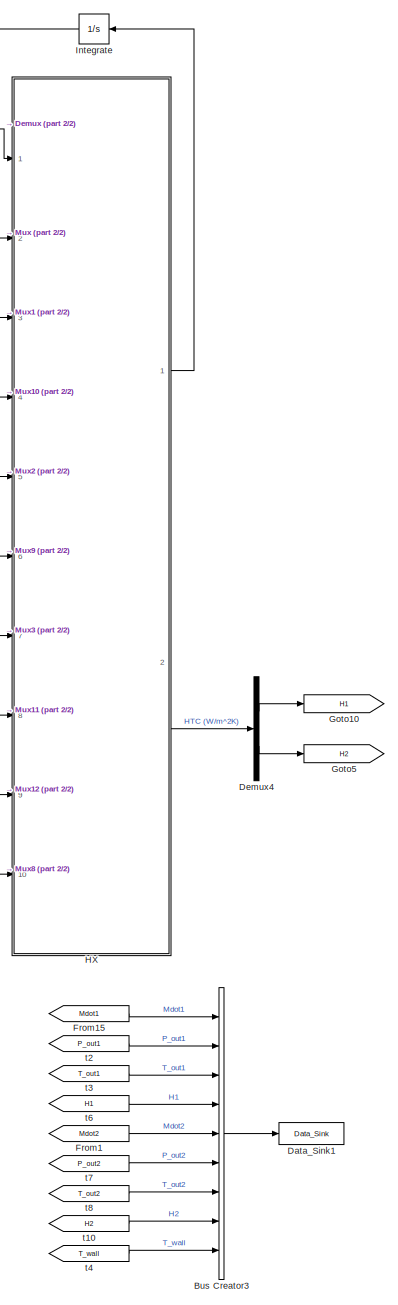
[diagram: Thermal Components/Heat Exchanger - part 1/2, right side, full height]
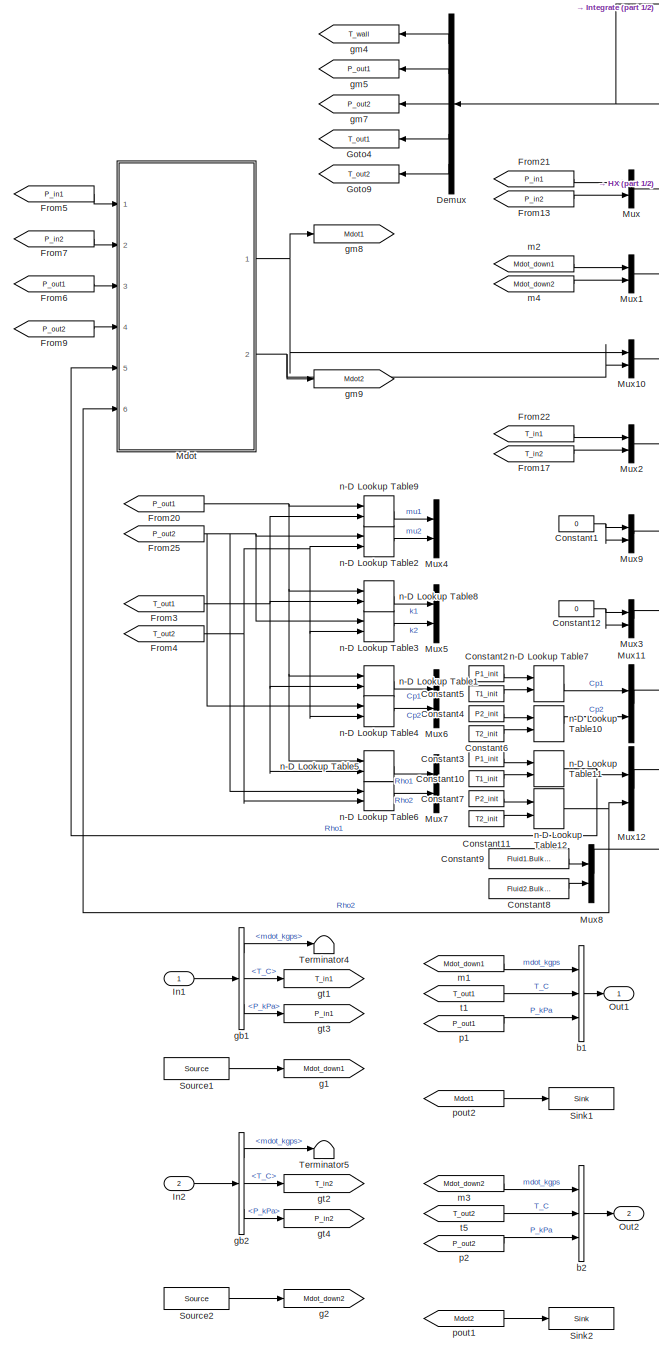
[diagram: Thermal Components/Heat Exchanger - part 2/2, left side, full height]
BLOCK [SubSystem] Thermal Components/Heat Exchanger
  OpenFcn = load('Fluids.mat');\nSet_Fluid_Popup_Names( Fluid )
  Ports = [2, 2]
  RequestExecContextInheritance = off
  Variant = off
BLOCK [BusCreator] Thermal Components/Heat Exchanger/Bus Creator3
  DisplayOption = bar
  InheritFromInputs = on
  Inputs = 9
  Ports = [9, 1]
BLOCK [Constant] Thermal Components/Heat Exchanger/Constant1
  Value = 0
BLOCK [Constant] Thermal Components/Heat Exchanger/Constant10
  Value = T1_init
BLOCK [Constant] Thermal Components/Heat Exchanger/Constant11
  Value = T2_init
BLOCK [Constant] Thermal Components/Heat Exchanger/Constant12
  Value = 0
BLOCK [Constant] Thermal Components/Heat Exchanger/Constant2
  Value = P1_init
BLOCK [Constant] Thermal Components/Heat Exchanger/Constant3
  Value = P1_init
BLOCK [Constant] Thermal Components/Heat Exchanger/Constant4
  Value = P2_init
BLOCK [Constant] Thermal Components/Heat Exchanger/Constant5
  Value = T1_init
BLOCK [Constant] Thermal Components/Heat Exchanger/Constant6
  Value = T2_init
BLOCK [Constant] Thermal Components/Heat Exchanger/Constant7
  Value = P2_init
BLOCK [Constant] Thermal Components/Heat Exchanger/Constant8
  Value = Fluid2.Bulk_Mod
BLOCK [Constant] Thermal Components/Heat Exchanger/Constant9
  Value = Fluid1.Bulk_Mod
BLOCK [Reference] Thermal Components/Heat Exchanger/Data_Sink1  REF=APST_Lib/Support Components/Data_Sink
  Ports = [1]
  SourceBlock = APST_Lib/Support Components/Data_Sink
  SourceType = Data Sink
BLOCK [Demux] Thermal Components/Heat Exchanger/Demux
  DisplayOption = bar
  Outputs = 5
  Ports = [1, 5]
BLOCK [Demux] Thermal Components/Heat Exchanger/Demux4
  DisplayOption = bar
  Outputs = 2
  Ports = [1, 2]
BLOCK [From] Thermal Components/Heat Exchanger/From1
  CloseFcn = tagdialog Close
  GotoTag = Mdot2
BLOCK [From] Thermal Components/Heat Exchanger/From13
  CloseFcn = tagdialog Close
  GotoTag = P_in2
BLOCK [From] Thermal Components/Heat Exchanger/From15
  CloseFcn = tagdialog Close
  GotoTag = Mdot1
BLOCK [From] Thermal Components/Heat Exchanger/From17
  CloseFcn = tagdialog Close
  GotoTag = T_in2
BLOCK [From] Thermal Components/Heat Exchanger/From20
  CloseFcn = tagdialog Close
  Commented = on
  GotoTag = P_out1
BLOCK [From] Thermal Components/Heat Exchanger/From21
  CloseFcn = tagdialog Close
  GotoTag = P_in1
BLOCK [From] Thermal Components/Heat Exchanger/From22
  CloseFcn = tagdialog Close
  GotoTag = T_in1
BLOCK [From] Thermal Components/Heat Exchanger/From25
  CloseFcn = tagdialog Close
  Commented = on
  GotoTag = P_out2
BLOCK [From] Thermal Components/Heat Exchanger/From3
  CloseFcn = tagdialog Close
  Commented = on
  GotoTag = T_out1
BLOCK [From] Thermal Components/Heat Exchanger/From4
  CloseFcn = tagdialog Close
  Commented = on
  GotoTag = T_out2
BLOCK [From] Thermal Components/Heat Exchanger/From5
  CloseFcn = tagdialog Close
  GotoTag = P_in1
BLOCK [From] Thermal Components/Heat Exchanger/From6
  CloseFcn = tagdialog Close
  GotoTag = P_out1
BLOCK [From] Thermal Components/Heat Exchanger/From7
  CloseFcn = tagdialog Close
  GotoTag = P_in2
BLOCK [From] Thermal Components/Heat Exchanger/From9
  CloseFcn = tagdialog Close
  GotoTag = P_out2
BLOCK [Goto] Thermal Components/Heat Exchanger/Goto10
  GotoTag = H1
BLOCK [Goto] Thermal Components/Heat Exchanger/Goto4
  GotoTag = T_out1
BLOCK [Goto] Thermal Components/Heat Exchanger/Goto5
  GotoTag = H2
BLOCK [Goto] Thermal Components/Heat Exchanger/Goto9
  GotoTag = T_out2
BLOCK [SubSystem] Thermal Components/Heat Exchanger/HX
  ErrorFcn = Stateflow.Translate.translate
  PermitHierarchicalResolution = ExplicitOnly
  Ports = [10, 2]
  RequestExecContextInheritance = off
  SFBlockType = MATLAB Function
  TreatAsAtomicUnit = on
  Variant = off
BLOCK [Demux] Thermal Components/Heat Exchanger/HX/ Demux 
  Outputs = 1
  Ports = [1, 1]
BLOCK [S-Function] Thermal Components/Heat Exchanger/HX/ SFunction 
  EnableBusSupport = off
  FunctionName = sf_sfun
  Parameters = Cp_wall,H1,H2,KL1,KL2,L1,L2,M_wall,Pass1,Pass2,W1,W2,b1,b2,dH1,dH2,f1,f2
  PortCounts = [10 3]
  Ports = [10, 3]
  SFunctionDeploymentMode = off
  Tag = Stateflow S-Function APST_Lib 3
BLOCK [Terminator] Thermal Components/Heat Exchanger/HX/ Terminator 
BLOCK [Inport] Thermal Components/Heat Exchanger/HX/Cp
  IconDisplay = Port number
  Port = 8
BLOCK [Inport] Thermal Components/Heat Exchanger/HX/E_fluid
  IconDisplay = Port number
  Port = 10
BLOCK [Outport] Thermal Components/Heat Exchanger/HX/H
  IconDisplay = Port number
  Port = 2
BLOCK [Inport] Thermal Components/Heat Exchanger/HX/Mdot
  IconDisplay = Port number
  Port = 4
BLOCK [Inport] Thermal Components/Heat Exchanger/HX/Mdot_down
  IconDisplay = Port number
  Port = 3
BLOCK [Inport] Thermal Components/Heat Exchanger/HX/P_in
  IconDisplay = Port number
  Port = 2
BLOCK [Inport] Thermal Components/Heat Exchanger/HX/Rho
  IconDisplay = Port number
  Port = 9
BLOCK [Inport] Thermal Components/Heat Exchanger/HX/T_in
  IconDisplay = Port number
  Port = 5
BLOCK [Inport] Thermal Components/Heat Exchanger/HX/k
  IconDisplay = Port number
  Port = 7
BLOCK [Inport] Thermal Components/Heat Exchanger/HX/mu
  IconDisplay = Port number
  Port = 6
BLOCK [Inport] Thermal Components/Heat Exchanger/HX/x
  IconDisplay = Port number
BLOCK [Outport] Thermal Components/Heat Exchanger/HX/x_dot
  IconDisplay = Port number
BLOCK [Inport] Thermal Components/Heat Exchanger/In1
  IconDisplay = Port number
BLOCK [Inport] Thermal Components/Heat Exchanger/In2
  IconDisplay = Port number
  Port = 2
BLOCK [Integrator] Thermal Components/Heat Exchanger/Integrate
  InitialCondition = [Tw_init P1_init P2_init T1_init T2_init]
  Ports = [1, 1]
BLOCK [SubSystem] Thermal Components/Heat Exchanger/Mdot
  ErrorFcn = Stateflow.Translate.translate
  PermitHierarchicalResolution = ExplicitOnly
  Ports = [6, 2]
  RequestExecContextInheritance = off
  SFBlockType = MATLAB Function
  TreatAsAtomicUnit = on
  Variant = off
BLOCK [Demux] Thermal Components/Heat Exchanger/Mdot/ Demux 
  Outputs = 1
  Ports = [1, 1]
BLOCK [S-Function] Thermal Components/Heat Exchanger/Mdot/ SFunction 
  EnableBusSupport = off
  FunctionName = sf_sfun
  Parameters = KL1,KL2,L1,L2,Pass1,Pass2,W1,W2,b1,b2,dH1,dH2,f1,f2
  PortCounts = [6 3]
  Ports = [6, 3]
  SFunctionDeploymentMode = off
  Tag = Stateflow S-Function APST_Lib 13
BLOCK [Terminator] Thermal Components/Heat Exchanger/Mdot/ Terminator 
BLOCK [Outport] Thermal Components/Heat Exchanger/Mdot/Mdot1_tot
  IconDisplay = Port number
BLOCK [Outport] Thermal Components/Heat Exchanger/Mdot/Mdot2_tot
  IconDisplay = Port number
  Port = 2
BLOCK [Inport] Thermal Components/Heat Exchanger/Mdot/P_in1
  IconDisplay = Port number
BLOCK [Inport] Thermal Components/Heat Exchanger/Mdot/P_in2
  IconDisplay = Port number
  Port = 2
BLOCK [Inport] Thermal Components/Heat Exchanger/Mdot/P_out1
  IconDisplay = Port number
  Port = 3
BLOCK [Inport] Thermal Components/Heat Exchanger/Mdot/P_out2
  IconDisplay = Port number
  Port = 4
BLOCK [Inport] Thermal Components/Heat Exchanger/Mdot/Rho1
  IconDisplay = Port number
  Port = 5
BLOCK [Inport] Thermal Components/Heat Exchanger/Mdot/Rho2
  IconDisplay = Port number
  Port = 6
BLOCK [Mux] Thermal Components/Heat Exchanger/Mux
  DisplayOption = bar
  Inputs = 2
  Ports = [2, 1]
BLOCK [Mux] Thermal Components/Heat Exchanger/Mux1
  DisplayOption = bar
  Inputs = 2
  Ports = [2, 1]
BLOCK [Mux] Thermal Components/Heat Exchanger/Mux10
  DisplayOption = bar
  Inputs = 2
  Ports = [2, 1]
BLOCK [Mux] Thermal Components/Heat Exchanger/Mux11
  DisplayOption = bar
  Inputs = 2
  Ports = [2, 1]
BLOCK [Mux] Thermal Components/Heat Exchanger/Mux12
  DisplayOption = bar
  Inputs = 2
  Ports = [2, 1]
BLOCK [Mux] Thermal Components/Heat Exchanger/Mux2
  DisplayOption = bar
  Inputs = 2
  Ports = [2, 1]
BLOCK [Mux] Thermal Components/Heat Exchanger/Mux3
  DisplayOption = bar
  Inputs = 2
  Ports = [2, 1]
BLOCK [Mux] Thermal Components/Heat Exchanger/Mux4
  Commented = on
  DisplayOption = bar
  Inputs = 2
  Ports = [2, 1]
BLOCK [Mux] Thermal Components/Heat Exchanger/Mux5
  Commented = on
  DisplayOption = bar
  Inputs = 2
  Ports = [2, 1]
BLOCK [Mux] Thermal Components/Heat Exchanger/Mux6
  Commented = on
  DisplayOption = bar
  Inputs = 2
  Ports = [2, 1]
BLOCK [Mux] Thermal Components/Heat Exchanger/Mux7
  Commented = on
  DisplayOption = bar
  Inputs = 2
  Ports = [2, 1]
BLOCK [Mux] Thermal Components/Heat Exchanger/Mux8
  DisplayOption = bar
  Inputs = 2
  Ports = [2, 1]
BLOCK [Mux] Thermal Components/Heat Exchanger/Mux9
  DisplayOption = bar
  Inputs = 2
  Ports = [2, 1]
BLOCK [Outport] Thermal Components/Heat Exchanger/Out1
  IconDisplay = Port number
BLOCK [Outport] Thermal Components/Heat Exchanger/Out2
  IconDisplay = Port number
  Port = 2
BLOCK [Reference] Thermal Components/Heat Exchanger/Sink1  REF=APST_Lib/Support Components/Sink
  Ports = [1]
  SourceBlock = APST_Lib/Support Components/Sink
  SourceType = Sink
BLOCK [Reference] Thermal Components/Heat Exchanger/Sink2  REF=APST_Lib/Support Components/Sink
  Ports = [1]
  SourceBlock = APST_Lib/Support Components/Sink
  SourceType = Sink
BLOCK [Reference] Thermal Components/Heat Exchanger/Source1  REF=APST_Lib/Support Components/Source
  Ports = [0, 1]
  SourceBlock = APST_Lib/Support Components/Source
  SourceType = Source
BLOCK [Reference] Thermal Components/Heat Exchanger/Source2  REF=APST_Lib/Support Components/Source
  Ports = [0, 1]
  SourceBlock = APST_Lib/Support Components/Source
  SourceType = Source
BLOCK [Terminator] Thermal Components/Heat Exchanger/Terminator4
BLOCK [Terminator] Thermal Components/Heat Exchanger/Terminator5
BLOCK [BusCreator] Thermal Components/Heat Exchanger/b1
  DisplayOption = bar
  InheritFromInputs = on
  Inputs = 3
  Ports = [3, 1]
BLOCK [BusCreator] Thermal Components/Heat Exchanger/b2
  DisplayOption = bar
  InheritFromInputs = on
  Inputs = 3
  Ports = [3, 1]
BLOCK [Goto] Thermal Components/Heat Exchanger/g1
  GotoTag = Mdot_down1
BLOCK [Goto] Thermal Components/Heat Exchanger/g2
  GotoTag = Mdot_down2
BLOCK [BusSelector] Thermal Components/Heat Exchanger/gb1
  OutputSignals = mdot_kgps,T_C,P_kPa
  Ports = [1, 3]
BLOCK [BusSelector] Thermal Components/Heat Exchanger/gb2
  OutputSignals = mdot_kgps,T_C,P_kPa
  Ports = [1, 3]
BLOCK [Goto] Thermal Components/Heat Exchanger/gm4
  GotoTag = T_wall
BLOCK [Goto] Thermal Components/Heat Exchanger/gm5
  GotoTag = P_out1
BLOCK [Goto] Thermal Components/Heat Exchanger/gm7
  GotoTag = P_out2
BLOCK [Goto] Thermal Components/Heat Exchanger/gm8
  GotoTag = Mdot1
BLOCK [Goto] Thermal Components/Heat Exchanger/gm9
  GotoTag = Mdot2
BLOCK [Goto] Thermal Components/Heat Exchanger/gt1
  GotoTag = T_in1
BLOCK [Goto] Thermal Components/Heat Exchanger/gt2
  GotoTag = T_in2
BLOCK [Goto] Thermal Components/Heat Exchanger/gt3
  GotoTag = P_in1
BLOCK [Goto] Thermal Components/Heat Exchanger/gt4
  GotoTag = P_in2
BLOCK [From] Thermal Components/Heat Exchanger/m1
  CloseFcn = tagdialog Close
  GotoTag = Mdot_down1
BLOCK [From] Thermal Components/Heat Exchanger/m2
  CloseFcn = tagdialog Close
  GotoTag = Mdot_down1
BLOCK [From] Thermal Components/Heat Exchanger/m3
  CloseFcn = tagdialog Close
  GotoTag = Mdot_down2
BLOCK [From] Thermal Components/Heat Exchanger/m4
  CloseFcn = tagdialog Close
  GotoTag = Mdot_down2
BLOCK [Lookup_n-D] Thermal Components/Heat Exchanger/n-D Lookup Table1
  BreakpointsForDimension1 = Fluid1.P
  BreakpointsForDimension2 = Fluid1.T
  BreakpointsForDimension3 = [5, 7]
  Commented = on
  ExtrapMethod = Clip
  Ports = [2, 1]
  RndMeth = Simplest
  Table = Fluid1.C_pt
BLOCK [Lookup_n-D] Thermal Components/Heat Exchanger/n-D Lookup Table10
  BreakpointsForDimension1 = Fluid2.P
  BreakpointsForDimension2 = Fluid2.T
  BreakpointsForDimension3 = [5, 7]
  ExtrapMethod = Clip
  Ports = [2, 1]
  RndMeth = Simplest
  Table = Fluid2.C_pt
  UseLastTableValue = on
BLOCK [Lookup_n-D] Thermal Components/Heat Exchanger/n-D Lookup Table11
  BreakpointsForDimension1 = Fluid1.P
  BreakpointsForDimension2 = Fluid1.T
  BreakpointsForDimension3 = [5, 7]
  ExtrapMethod = Clip
  Ports = [2, 1]
  RndMeth = Simplest
  Table = Fluid1.Rho_pt
  UseLastTableValue = on
BLOCK [Lookup_n-D] Thermal Components/Heat Exchanger/n-D Lookup Table12
  BreakpointsForDimension1 = Fluid2.P
  BreakpointsForDimension2 = Fluid2.T
  BreakpointsForDimension3 = [5, 7]
  ExtrapMethod = Clip
  Ports = [2, 1]
  RndMeth = Simplest
  Table = Fluid2.Rho_pt
  UseLastTableValue = on
BLOCK [Lookup_n-D] Thermal Components/Heat Exchanger/n-D Lookup Table2
  BreakpointsForDimension1 = Fluid2.P
  BreakpointsForDimension2 = Fluid2.T
  BreakpointsForDimension3 = [5, 7]
  Commented = on
  ExtrapMethod = Clip
  Ports = [2, 1]
  RndMeth = Simplest
  Table = Fluid2.Mu_pt
  UseLastTableValue = on
BLOCK [Lookup_n-D] Thermal Components/Heat Exchanger/n-D Lookup Table3
  BreakpointsForDimension1 = Fluid2.P
  BreakpointsForDimension2 = Fluid2.T
  BreakpointsForDimension3 = [5, 7]
  Commented = on
  ExtrapMethod = Clip
  Ports = [2, 1]
  RndMeth = Simplest
  Table = Fluid2.K_pt
  UseLastTableValue = on
BLOCK [Lookup_n-D] Thermal Components/Heat Exchanger/n-D Lookup Table4
  BreakpointsForDimension1 = Fluid2.P
  BreakpointsForDimension2 = Fluid2.T
  BreakpointsForDimension3 = [5, 7]
  Commented = on
  ExtrapMethod = Clip
  Ports = [2, 1]
  RndMeth = Simplest
  Table = Fluid2.C_pt
  UseLastTableValue = on
BLOCK [Lookup_n-D] Thermal Components/Heat Exchanger/n-D Lookup Table5
  BreakpointsForDimension1 = Fluid1.P
  BreakpointsForDimension2 = Fluid1.T
  BreakpointsForDimension3 = [5, 7]
  Commented = on
  ExtrapMethod = Clip
  Ports = [2, 1]
  RndMeth = Simplest
  Table = Fluid1.Rho_pt
  UseLastTableValue = on
BLOCK [Lookup_n-D] Thermal Components/Heat Exchanger/n-D Lookup Table6
  BreakpointsForDimension1 = Fluid2.P
  BreakpointsForDimension2 = Fluid2.T
  BreakpointsForDimension3 = [5, 7]
  Commented = on
  ExtrapMethod = Clip
  Ports = [2, 1]
  RndMeth = Simplest
  Table = Fluid2.Rho_pt
  UseLastTableValue = on
BLOCK [Lookup_n-D] Thermal Components/Heat Exchanger/n-D Lookup Table7
  BreakpointsForDimension1 = Fluid1.P
  BreakpointsForDimension2 = Fluid1.T
  BreakpointsForDimension3 = [5, 7]
  ExtrapMethod = Clip
  Ports = [2, 1]
  RndMeth = Simplest
  Table = Fluid1.C_pt
BLOCK [Lookup_n-D] Thermal Components/Heat Exchanger/n-D Lookup Table8
  BreakpointsForDimension1 = Fluid1.P
  BreakpointsForDimension2 = Fluid1.T
  BreakpointsForDimension3 = [5, 7]
  Commented = on
  ExtrapMethod = Clip
  Ports = [2, 1]
  RndMeth = Simplest
  Table = Fluid1.K_pt
  UseLastTableValue = on
BLOCK [Lookup_n-D] Thermal Components/Heat Exchanger/n-D Lookup Table9
  BreakpointsForDimension1 = Fluid1.P
  BreakpointsForDimension2 = Fluid1.T
  BreakpointsForDimension3 = [5, 7]
  Commented = on
  ExtrapMethod = Clip
  Ports = [2, 1]
  RndMeth = Simplest
  Table = Fluid1.Mu_pt
  UseLastTableValue = on
BLOCK [From] Thermal Components/Heat Exchanger/p1
  CloseFcn = tagdialog Close
  GotoTag = P_out1
BLOCK [From] Thermal Components/Heat Exchanger/p2
  CloseFcn = tagdialog Close
  GotoTag = P_out2
BLOCK [From] Thermal Components/Heat Exchanger/pout1
  GotoTag = Mdot2
BLOCK [From] Thermal Components/Heat Exchanger/pout2
  GotoTag = Mdot1
BLOCK [From] Thermal Components/Heat Exchanger/t1
  CloseFcn = tagdialog Close
  GotoTag = T_out1
BLOCK [From] Thermal Components/Heat Exchanger/t10
  CloseFcn = tagdialog Close
  GotoTag = H2
BLOCK [From] Thermal Components/Heat Exchanger/t2
  CloseFcn = tagdialog Close
  GotoTag = P_out1
BLOCK [From] Thermal Components/Heat Exchanger/t3
  CloseFcn = tagdialog Close
  GotoTag = T_out1
BLOCK [From] Thermal Components/Heat Exchanger/t4
  CloseFcn = tagdialog Close
  GotoTag = T_wall
BLOCK [From] Thermal Components/Heat Exchanger/t5
  CloseFcn = tagdialog Close
  GotoTag = T_out2
BLOCK [From] Thermal Components/Heat Exchanger/t6
  CloseFcn = tagdialog Close
  GotoTag = H1
BLOCK [From] Thermal Components/Heat Exchanger/t7
  CloseFcn = tagdialog Close
  GotoTag = P_out2
BLOCK [From] Thermal Components/Heat Exchanger/t8
  CloseFcn = tagdialog Close
  GotoTag = T_out2
BLOCK [SubSystem] Thermal Components/Pipe_P_to_M
  OpenFcn = load('Fluids.mat');\nSet_Fluid_Popup_Names( Fluid )
  Ports = [1, 1]
  RequestExecContextInheritance = off
  Variant = off
BLOCK [BusCreator] Thermal Components/Pipe_P_to_M/Bus Creator2
  DisplayOption = bar
  InheritFromInputs = on
  Inputs = 3
  Ports = [3, 1]
BLOCK [Constant] Thermal Components/Pipe_P_to_M/Constant2
  Value = Fluid.Bulk_Mod
BLOCK [Constant] Thermal Components/Pipe_P_to_M/Constant7
  Value = P_init
BLOCK [Constant] Thermal Components/Pipe_P_to_M/Constant8
  Value = T_init
BLOCK [Reference] Thermal Components/Pipe_P_to_M/Data_Sink1  REF=APST_Lib/Support Components/Data_Sink
  Ports = [1]
  SourceBlock = APST_Lib/Support Components/Data_Sink
  SourceType = Data Sink
BLOCK [Demux] Thermal Components/Pipe_P_to_M/Demux
  DisplayOption = bar
  Outputs = 2
  Ports = [1, 2]
BLOCK [From] Thermal Components/Pipe_P_to_M/From11
  CloseFcn = tagdialog Close
  GotoTag = T_out
BLOCK [Inport] Thermal Components/Pipe_P_to_M/In1
  IconDisplay = Port number
BLOCK [Integrator] Thermal Components/Pipe_P_to_M/Integrate
  InitialCondition = [T_init P_init]
  Ports = [1, 1]
BLOCK [SubSystem] Thermal Components/Pipe_P_to_M/Mdot
  ErrorFcn = Stateflow.Translate.translate
  PermitHierarchicalResolution = ExplicitOnly
  Ports = [3, 1]
  RequestExecContextInheritance = off
  SFBlockType = MATLAB Function
  TreatAsAtomicUnit = on
  Variant = off
BLOCK [Demux] Thermal Components/Pipe_P_to_M/Mdot/ Demux 
  Outputs = 1
  Ports = [1, 1]
BLOCK [S-Function] Thermal Components/Pipe_P_to_M/Mdot/ SFunction 
  EnableBusSupport = off
  FunctionName = sf_sfun
  Parameters = D,KL,L,dH,f
  PortCounts = [3 2]
  Ports = [3, 2]
  SFunctionDeploymentMode = off
  Tag = Stateflow S-Function APST_Lib 9
BLOCK [Terminator] Thermal Components/Pipe_P_to_M/Mdot/ Terminator 
BLOCK [Outport] Thermal Components/Pipe_P_to_M/Mdot/Mdot
  IconDisplay = Port number
BLOCK [Inport] Thermal Components/Pipe_P_to_M/Mdot/P_in
  IconDisplay = Port number
BLOCK [Inport] Thermal Components/Pipe_P_to_M/Mdot/P_out
  IconDisplay = Port number
  Port = 2
BLOCK [Inport] Thermal Components/Pipe_P_to_M/Mdot/Rho
  IconDisplay = Port number
  Port = 3
BLOCK [Outport] Thermal Components/Pipe_P_to_M/Out1
  IconDisplay = Port number
BLOCK [SubSystem] Thermal Components/Pipe_P_to_M/Pipe_P_to_M
  ErrorFcn = Stateflow.Translate.translate
  PermitHierarchicalResolution = ExplicitOnly
  Ports = [6, 1]
  RequestExecContextInheritance = off
  SFBlockType = MATLAB Function
  TreatAsAtomicUnit = on
  Variant = off
BLOCK [Demux] Thermal Components/Pipe_P_to_M/Pipe_P_to_M/ Demux 
  Outputs = 1
  Ports = [1, 1]
BLOCK [S-Function] Thermal Components/Pipe_P_to_M/Pipe_P_to_M/ SFunction 
  EnableBusSupport = off
  FunctionName = sf_sfun
  Parameters = D,E,L,t,v
  PortCounts = [6 2]
  Ports = [6, 2]
  SFunctionDeploymentMode = off
  Tag = Stateflow S-Function APST_Lib 8
BLOCK [Terminator] Thermal Components/Pipe_P_to_M/Pipe_P_to_M/ Terminator 
BLOCK [Inport] Thermal Components/Pipe_P_to_M/Pipe_P_to_M/E_fluid
  IconDisplay = Port number
  Port = 6
BLOCK [Inport] Thermal Components/Pipe_P_to_M/Pipe_P_to_M/Mdot
  IconDisplay = Port number
  Port = 4
BLOCK [Inport] Thermal Components/Pipe_P_to_M/Pipe_P_to_M/Mdot_down
  IconDisplay = Port number
  Port = 3
BLOCK [Inport] Thermal Components/Pipe_P_to_M/Pipe_P_to_M/Rho
  IconDisplay = Port number
  Port = 5
BLOCK [Inport] Thermal Components/Pipe_P_to_M/Pipe_P_to_M/T_in
  IconDisplay = Port number
  Port = 2
BLOCK [Inport] Thermal Components/Pipe_P_to_M/Pipe_P_to_M/x
  IconDisplay = Port number
BLOCK [Outport] Thermal Components/Pipe_P_to_M/Pipe_P_to_M/x_dot
  IconDisplay = Port number
BLOCK [Reference] Thermal Components/Pipe_P_to_M/Sink1  REF=APST_Lib/Support Components/Sink
  Ports = [1]
  SourceBlock = APST_Lib/Support Components/Sink
  SourceType = Sink
BLOCK [Reference] Thermal Components/Pipe_P_to_M/Source1  REF=APST_Lib/Support Components/Source
  Ports = [0, 1]
  SourceBlock = APST_Lib/Support Components/Source
  SourceType = Source
BLOCK [Terminator] Thermal Components/Pipe_P_to_M/Terminator3
BLOCK [BusCreator] Thermal Components/Pipe_P_to_M/b2
  DisplayOption = bar
  InheritFromInputs = on
  Inputs = 3
  Ports = [3, 1]
BLOCK [Goto] Thermal Components/Pipe_P_to_M/g2
  GotoTag = Mdot_down
BLOCK [BusSelector] Thermal Components/Pipe_P_to_M/gb2
  OutputSignals = mdot_kgps,T_C,P_kPa
  Ports = [1, 3]
BLOCK [Goto] Thermal Components/Pipe_P_to_M/gm1
  GotoTag = T_out
BLOCK [Goto] Thermal Components/Pipe_P_to_M/gm4
  GotoTag = Mdot
BLOCK [Goto] Thermal Components/Pipe_P_to_M/gm5
  GotoTag = P_out
BLOCK [Goto] Thermal Components/Pipe_P_to_M/gt4
  GotoTag = T_in
BLOCK [Goto] Thermal Components/Pipe_P_to_M/gt5
  GotoTag = P_in
BLOCK [From] Thermal Components/Pipe_P_to_M/m1
  CloseFcn = tagdialog Close
  GotoTag = Mdot_down
BLOCK [From] Thermal Components/Pipe_P_to_M/m2
  CloseFcn = tagdialog Close
  GotoTag = Mdot
BLOCK [From] Thermal Components/Pipe_P_to_M/m3
  CloseFcn = tagdialog Close
  GotoTag = P_out
BLOCK [From] Thermal Components/Pipe_P_to_M/m7
  CloseFcn = tagdialog Close
  GotoTag = P_out
BLOCK [From] Thermal Components/Pipe_P_to_M/m8
  CloseFcn = tagdialog Close
  GotoTag = Mdot_down
BLOCK [From] Thermal Components/Pipe_P_to_M/m9
  CloseFcn = tagdialog Close
  GotoTag = Mdot
BLOCK [Lookup_n-D] Thermal Components/Pipe_P_to_M/n-D Lookup Table2
  BreakpointsForDimension1 = Fluid.P
  BreakpointsForDimension2 = Fluid.T
  BreakpointsForDimension3 = [5, 7]
  ExtrapMethod = Clip
  Ports = [2, 1]
  RndMeth = Simplest
  Table = Fluid.Rho_pt
  UseLastTableValue = on
BLOCK [From] Thermal Components/Pipe_P_to_M/p2
  CloseFcn = tagdialog Close
  GotoTag = P_out
BLOCK [From] Thermal Components/Pipe_P_to_M/p4
  CloseFcn = tagdialog Close
  GotoTag = T_in
BLOCK [From] Thermal Components/Pipe_P_to_M/p5
  CloseFcn = tagdialog Close
  GotoTag = P_in
BLOCK [From] Thermal Components/Pipe_P_to_M/t2
  CloseFcn = tagdialog Close
  GotoTag = T_out
BLOCK [SubSystem] Thermal Components/Pipe_P_to_P
  OpenFcn = load('Fluids.mat');\nSet_Fluid_Popup_Names( Fluid )
  Ports = [1, 1]
  RequestExecContextInheritance = off
  Variant = off
BLOCK [BusCreator] Thermal Components/Pipe_P_to_P/Bus Creator2
  DisplayOption = bar
  InheritFromInputs = on
  Inputs = 2
  Ports = [2, 1]
BLOCK [Constant] Thermal Components/Pipe_P_to_P/Constant8
  Value = T_init
BLOCK [Reference] Thermal Components/Pipe_P_to_P/Data_Sink1  REF=APST_Lib/Support Components/Data_Sink
  Ports = [1]
  SourceBlock = APST_Lib/Support Components/Data_Sink
  SourceType = Data Sink
BLOCK [From] Thermal Components/Pipe_P_to_P/From11
  CloseFcn = tagdialog Close
  GotoTag = T_out
BLOCK [From] Thermal Components/Pipe_P_to_P/From3
  CloseFcn = tagdialog Close
  GotoTag = T_in
BLOCK [Inport] Thermal Components/Pipe_P_to_P/In1
  IconDisplay = Port number
BLOCK [Integrator] Thermal Components/Pipe_P_to_P/Integrate1
  InitialCondition = T_init
  Ports = [1, 1]
BLOCK [SubSystem] Thermal Components/Pipe_P_to_P/Mdot
  ErrorFcn = Stateflow.Translate.translate
  PermitHierarchicalResolution = ExplicitOnly
  Ports = [3, 1]
  RequestExecContextInheritance = off
  SFBlockType = MATLAB Function
  TreatAsAtomicUnit = on
  Variant = off
BLOCK [Demux] Thermal Components/Pipe_P_to_P/Mdot/ Demux 
  Outputs = 1
  Ports = [1, 1]
BLOCK [S-Function] Thermal Components/Pipe_P_to_P/Mdot/ SFunction 
  EnableBusSupport = off
  FunctionName = sf_sfun
  Parameters = D,KL,L,dH,f
  PortCounts = [3 2]
  Ports = [3, 2]
  SFunctionDeploymentMode = off
  Tag = Stateflow S-Function APST_Lib 11
BLOCK [Terminator] Thermal Components/Pipe_P_to_P/Mdot/ Terminator 
BLOCK [Outport] Thermal Components/Pipe_P_to_P/Mdot/Mdot
  IconDisplay = Port number
BLOCK [Inport] Thermal Components/Pipe_P_to_P/Mdot/P_in
  IconDisplay = Port number
BLOCK [Inport] Thermal Components/Pipe_P_to_P/Mdot/P_out
  IconDisplay = Port number
  Port = 2
BLOCK [Inport] Thermal Components/Pipe_P_to_P/Mdot/Rho
  IconDisplay = Port number
  Port = 3
BLOCK [Outport] Thermal Components/Pipe_P_to_P/Out1
  IconDisplay = Port number
BLOCK [SubSystem] Thermal Components/Pipe_P_to_P/Pipe_P_to_M
  ErrorFcn = Stateflow.Translate.translate
  PermitHierarchicalResolution = ExplicitOnly
  Ports = [4, 1]
  RequestExecContextInheritance = off
  SFBlockType = MATLAB Function
  TreatAsAtomicUnit = on
  Variant = off
BLOCK [Demux] Thermal Components/Pipe_P_to_P/Pipe_P_to_M/ Demux 
  Outputs = 1
  Ports = [1, 1]
BLOCK [S-Function] Thermal Components/Pipe_P_to_P/Pipe_P_to_M/ SFunction 
  EnableBusSupport = off
  FunctionName = sf_sfun
  Parameters = D,L
  PortCounts = [4 2]
  Ports = [4, 2]
  SFunctionDeploymentMode = off
  Tag = Stateflow S-Function APST_Lib 7
BLOCK [Terminator] Thermal Components/Pipe_P_to_P/Pipe_P_to_M/ Terminator 
BLOCK [Inport] Thermal Components/Pipe_P_to_P/Pipe_P_to_M/Mdot
  IconDisplay = Port number
  Port = 3
BLOCK [Inport] Thermal Components/Pipe_P_to_P/Pipe_P_to_M/Rho
  IconDisplay = Port number
  Port = 4
BLOCK [Inport] Thermal Components/Pipe_P_to_P/Pipe_P_to_M/T_in
  IconDisplay = Port number
  Port = 2
BLOCK [Inport] Thermal Components/Pipe_P_to_P/Pipe_P_to_M/x
  IconDisplay = Port number
BLOCK [Outport] Thermal Components/Pipe_P_to_P/Pipe_P_to_M/x_dot
  IconDisplay = Port number
BLOCK [Reference] Thermal Components/Pipe_P_to_P/Sink1  REF=APST_Lib/Support Components/Sink
  Ports = [1]
  SourceBlock = APST_Lib/Support Components/Sink
  SourceType = Sink
BLOCK [Reference] Thermal Components/Pipe_P_to_P/Source1  REF=APST_Lib/Support Components/Source
  Ports = [0, 1]
  SourceBlock = APST_Lib/Support Components/Source
  SourceType = Source
BLOCK [Terminator] Thermal Components/Pipe_P_to_P/Terminator2
BLOCK [BusCreator] Thermal Components/Pipe_P_to_P/b1
  DisplayOption = bar
  InheritFromInputs = on
  Inputs = 3
  Ports = [3, 1]
BLOCK [Goto] Thermal Components/Pipe_P_to_P/g1
  GotoTag = P_out
BLOCK [BusSelector] Thermal Components/Pipe_P_to_P/gb1
  OutputSignals = mdot_kgps,T_C,P_kPa
  Ports = [1, 3]
BLOCK [Goto] Thermal Components/Pipe_P_to_P/gm1
  GotoTag = T_out
BLOCK [Goto] Thermal Components/Pipe_P_to_P/gm4
  GotoTag = Mdot
BLOCK [Goto] Thermal Components/Pipe_P_to_P/gt1
  GotoTag = T_in
BLOCK [Goto] Thermal Components/Pipe_P_to_P/gt3
  GotoTag = P_in
BLOCK [From] Thermal Components/Pipe_P_to_P/m1
  CloseFcn = tagdialog Close
  GotoTag = Mdot
BLOCK [From] Thermal Components/Pipe_P_to_P/m2
  CloseFcn = tagdialog Close
  GotoTag = Mdot
BLOCK [From] Thermal Components/Pipe_P_to_P/m3
  CloseFcn = tagdialog Close
  GotoTag = P_out
BLOCK [Lookup_n-D] Thermal Components/Pipe_P_to_P/n-D Lookup Table1
  BreakpointsForDimension1 = Fluid.P
  BreakpointsForDimension2 = Fluid.T
  BreakpointsForDimension3 = [5, 7]
  ExtrapMethod = Clip
  Ports = [2, 1]
  RndMeth = Simplest
  Table = Fluid.Rho_pt
  UseLastTableValue = on
BLOCK [From] Thermal Components/Pipe_P_to_P/p1
  CloseFcn = tagdialog Close
  GotoTag = P_out
BLOCK [From] Thermal Components/Pipe_P_to_P/p2
  CloseFcn = tagdialog Close
  GotoTag = P_in
BLOCK [From] Thermal Components/Pipe_P_to_P/p5
  CloseFcn = tagdialog Close
  GotoTag = P_in
BLOCK [From] Thermal Components/Pipe_P_to_P/pout2
  GotoTag = Mdot
BLOCK [From] Thermal Components/Pipe_P_to_P/t1
  CloseFcn = tagdialog Close
  GotoTag = T_out
BLOCK [SubSystem] Thermal Components/Pump1
  OpenFcn = load('Fluids.mat');\nSet_Fluid_Popup_Names( Fluid )
  Ports = [3, 1]
  RequestExecContextInheritance = off
  Variant = off
BLOCK [BusCreator] Thermal Components/Pump1/Bus Creator2
  DisplayOption = bar
  InheritFromInputs = on
  Inputs = 7
  Ports = [7, 1]
BLOCK [Constant] Thermal Components/Pump1/Constant1
  Value = T_init
BLOCK [Constant] Thermal Components/Pump1/Constant11
  Value = T_init
BLOCK [Constant] Thermal Components/Pump1/Constant2
  Value = P_init
BLOCK [Constant] Thermal Components/Pump1/Constant7
  Value = P_init
BLOCK [Reference] Thermal Components/Pump1/Data_Sink1  REF=APST_Lib/Support Components/Data_Sink
  Ports = [1]
  SourceBlock = APST_Lib/Support Components/Data_Sink
  SourceType = Data Sink
BLOCK [Demux] Thermal Components/Pump1/Demux
  DisplayOption = bar
  Outputs = 2
  Ports = [1, 2]
BLOCK [From] Thermal Components/Pump1/From1
  CloseFcn = tagdialog Close
  GotoTag = V_in
BLOCK [From] Thermal Components/Pump1/From11
  CloseFcn = tagdialog Close
  GotoTag = T_out
BLOCK [From] Thermal Components/Pump1/From2
  CloseFcn = tagdialog Close
  GotoTag = T_in
BLOCK [From] Thermal Components/Pump1/From3
  CloseFcn = tagdialog Close
  GotoTag = P_in
BLOCK [From] Thermal Components/Pump1/From4
  CloseFcn = tagdialog Close
  GotoTag = Mdot_down
BLOCK [From] Thermal Components/Pump1/From5
  CloseFcn = tagdialog Close
  GotoTag = Omega
BLOCK [Goto] Thermal Components/Pump1/Goto1
  GotoTag = Q
BLOCK [Goto] Thermal Components/Pump1/Goto2
  GotoTag = I
BLOCK [Goto] Thermal Components/Pump1/Goto3
  GotoTag = eta
BLOCK [Goto] Thermal Components/Pump1/Goto4
  GotoTag = T_out
BLOCK [Inport] Thermal Components/Pump1/In1
  IconDisplay = Port number
BLOCK [Inport] Thermal Components/Pump1/In2
  IconDisplay = Port number
  Port = 2
BLOCK [Inport] Thermal Components/Pump1/In3
  IconDisplay = Port number
  Port = 3
BLOCK [Integrator] Thermal Components/Pump1/Integrate
  InitialCondition = [T_init P_init]
  Ports = [1, 1]
BLOCK [Outport] Thermal Components/Pump1/Out1
  IconDisplay = Port number
BLOCK [SubSystem] Thermal Components/Pump1/Pump
  ErrorFcn = Stateflow.Translate.translate
  PermitHierarchicalResolution = ExplicitOnly
  Ports = [8, 5]
  RequestExecContextInheritance = off
  SFBlockType = MATLAB Function
  TreatAsAtomicUnit = on
  Variant = off
BLOCK [Demux] Thermal Components/Pump1/Pump/ Demux 
  Outputs = 1
  Ports = [1, 1]
BLOCK [S-Function] Thermal Components/Pump1/Pump/ SFunction 
  EnableBusSupport = off
  FunctionName = sf_sfun
  Parameters = D,DP_max,E,L,Omega_max,alpha,mdot_max
  PortCounts = [8 6]
  Ports = [8, 6]
  SFunctionDeploymentMode = off
  Tag = Stateflow S-Function APST_Lib 30
BLOCK [Terminator] Thermal Components/Pump1/Pump/ Terminator 
BLOCK [Outport] Thermal Components/Pump1/Pump/I
  IconDisplay = Port number
  Port = 3
BLOCK [Outport] Thermal Components/Pump1/Pump/Mdot
  IconDisplay = Port number
  Port = 2
BLOCK [Inport] Thermal Components/Pump1/Pump/Mdot_down
  IconDisplay = Port number
  Port = 5
BLOCK [Inport] Thermal Components/Pump1/Pump/Omega
  IconDisplay = Port number
  Port = 6
BLOCK [Inport] Thermal Components/Pump1/Pump/P_in
  IconDisplay = Port number
  Port = 2
BLOCK [Outport] Thermal Components/Pump1/Pump/Q
  IconDisplay = Port number
  Port = 4
BLOCK [Inport] Thermal Components/Pump1/Pump/T_in
  IconDisplay = Port number
  Port = 3
BLOCK [Inport] Thermal Components/Pump1/Pump/V_in
  IconDisplay = Port number
  Port = 4
BLOCK [Inport] Thermal Components/Pump1/Pump/cp
  IconDisplay = Port number
  Port = 8
BLOCK [Outport] Thermal Components/Pump1/Pump/eta
  IconDisplay = Port number
  Port = 5
BLOCK [Inport] Thermal Components/Pump1/Pump/rho
  IconDisplay = Port number
  Port = 7
BLOCK [Inport] Thermal Components/Pump1/Pump/x
  IconDisplay = Port number
BLOCK [Outport] Thermal Components/Pump1/Pump/x_dot
  IconDisplay = Port number
BLOCK [Reference] Thermal Components/Pump1/Sink1  REF=APST_Lib/Support Components/Sink
  Ports = [1]
  SourceBlock = APST_Lib/Support Components/Sink
  SourceType = Sink
BLOCK [Reference] Thermal Components/Pump1/Sink2  REF=APST_Lib/Support Components/Sink
  Ports = [1]
  SourceBlock = APST_Lib/Support Components/Sink
  SourceType = Sink
BLOCK [Reference] Thermal Components/Pump1/Source1  REF=APST_Lib/Support Components/Source
  Ports = [0, 1]
  SourceBlock = APST_Lib/Support Components/Source
  SourceType = Source
BLOCK [Terminator] Thermal Components/Pump1/Terminator1
BLOCK [Terminator] Thermal Components/Pump1/Terminator2
BLOCK [BusCreator] Thermal Components/Pump1/b1
  DisplayOption = bar
  InheritFromInputs = on
  Inputs = 3
  Ports = [3, 1]
BLOCK [Goto] Thermal Components/Pump1/g1
  GotoTag = Mdot_down
BLOCK [BusSelector] Thermal Components/Pump1/gb1
  OutputSignals = mdot_kgps,T_C,P_kPa
  Ports = [1, 3]
BLOCK [BusSelector] Thermal Components/Pump1/gb2
  OutputSignals = V,I
  Ports = [1, 2]
BLOCK [Goto] Thermal Components/Pump1/gm3
  GotoTag = V_in
BLOCK [Goto] Thermal Components/Pump1/gm4
  GotoTag = Mdot
BLOCK [Goto] Thermal Components/Pump1/gm5
  GotoTag = P_out
BLOCK [Goto] Thermal Components/Pump1/gt1
  GotoTag = T_in
BLOCK [Goto] Thermal Components/Pump1/gt2
  GotoTag = Omega
BLOCK [Goto] Thermal Components/Pump1/gt3
  GotoTag = P_in
BLOCK [From] Thermal Components/Pump1/m1
  CloseFcn = tagdialog Close
  GotoTag = Mdot_down
BLOCK [Lookup_n-D] Thermal Components/Pump1/n-D Lookup Table1
  BreakpointsForDimension1 = Fluid.P
  BreakpointsForDimension2 = Fluid.T
  BreakpointsForDimension3 = [5, 7]
  ExtrapMethod = Clip
  Ports = [2, 1]
  RndMeth = Simplest
  Table = Fluid.C_pt
  UseLastTableValue = on
BLOCK [Lookup_n-D] Thermal Components/Pump1/n-D Lookup Table2
  BreakpointsForDimension1 = Fluid.P
  BreakpointsForDimension2 = Fluid.T
  BreakpointsForDimension3 = [5, 7]
  ExtrapMethod = Clip
  Ports = [2, 1]
  RndMeth = Simplest
  Table = Fluid.Rho_pt
  UseLastTableValue = on
BLOCK [From] Thermal Components/Pump1/p1
  CloseFcn = tagdialog Close
  GotoTag = P_out
BLOCK [From] Thermal Components/Pump1/p3
  CloseFcn = tagdialog Close
  GotoTag = P_out
BLOCK [From] Thermal Components/Pump1/p5
  CloseFcn = tagdialog Close
  GotoTag = I
BLOCK [From] Thermal Components/Pump1/pout2
  GotoTag = Mdot
BLOCK [From] Thermal Components/Pump1/t1
  CloseFcn = tagdialog Close
  GotoTag = T_out
BLOCK [From] Thermal Components/Pump1/t2
  CloseFcn = tagdialog Close
  GotoTag = Mdot
BLOCK [From] Thermal Components/Pump1/t3
  CloseFcn = tagdialog Close
  GotoTag = I
BLOCK [From] Thermal Components/Pump1/t4
  CloseFcn = tagdialog Close
  GotoTag = eta
BLOCK [From] Thermal Components/Pump1/t5
  CloseFcn = tagdialog Close
  GotoTag = Omega
BLOCK [From] Thermal Components/Pump1/t6
  CloseFcn = tagdialog Close
  GotoTag = Q
BLOCK [SubSystem] Thermal Components/Turbine
  Ports = [2, 2]
  RequestExecContextInheritance = off
  Variant = off
BLOCK [Sum] Thermal Components/Turbine/Add
  InputSameDT = off
  OutDataTypeStr = Inherit: Inherit via internal rule
  Ports = [2, 1]
  SaturateOnIntegerOverflow = off
BLOCK [Sum] Thermal Components/Turbine/Add1
  InputSameDT = off
  Inputs = -+
  OutDataTypeStr = Inherit: Inherit via internal rule
  Ports = [2, 1]
  SaturateOnIntegerOverflow = off
BLOCK [Bias] Thermal Components/Turbine/Bias
  Bias = 1
  SaturateOnIntegerOverflow = off
BLOCK [Bias] Thermal Components/Turbine/Bias1
  Bias = 1
  SaturateOnIntegerOverflow = off
BLOCK [Bias] Thermal Components/Turbine/Bias2
  Bias = 273.15
  SaturateOnIntegerOverflow = off
BLOCK [Bias] Thermal Components/Turbine/Bias3
  Bias = -273.15
  SaturateOnIntegerOverflow = off
BLOCK [BusCreator] Thermal Components/Turbine/Bus Creator1
  DisplayOption = bar
  InheritFromInputs = on
  Inputs = 3
  Ports = [3, 1]
BLOCK [BusCreator] Thermal Components/Turbine/Bus Creator2
  DisplayOption = bar
  InheritFromInputs = on
  Inputs = 4
  Ports = [4, 1]
BLOCK [BusSelector] Thermal Components/Turbine/Bus Selector
  OutputSignals = P_kPa,T_C
  Ports = [1, 2]
BLOCK [Constant] Thermal Components/Turbine/Constant
  Value = (1.4-1)/1.4
BLOCK [Constant] Thermal Components/Turbine/Constant1
  Value = 287.058
BLOCK [Constant] Thermal Components/Turbine/Constant2
  Value = 1008
BLOCK [Reference] Thermal Components/Turbine/Data_Sink1  REF=APST_Lib/Support Components/Data_Sink
  Ports = [1]
  SourceBlock = APST_Lib/Support Components/Data_Sink
  SourceType = Data Sink
BLOCK [Display] Thermal Components/Turbine/Display
  Decimation = 1
  Ports = [1]
BLOCK [Product] Thermal Components/Turbine/Divide
  InputSameDT = off
  Inputs = */
  OutDataTypeStr = Inherit: Inherit via internal rule
  Ports = [2, 1]
  RndMeth = Floor
  SaturateOnIntegerOverflow = off
BLOCK [Lookup_n-D] Thermal Components/Turbine/ETA(PR)
  BreakpointsForDimension1 = ACM.MAP.Turb.PR_VEC
  BreakpointsForDimension2 = COMP_MAP.PR_VEC
  ExtrapMethod = Clip
  InternalRulePriority = Speed
  NumberOfTableDimensions = 1
  Ports = [1, 1]
  RndMeth = Simplest
  Table = ACM.MAP.Turb.ETA
  UseLastTableValue = on
BLOCK [Inport] Thermal Components/Turbine/Flow In
  IconDisplay = Port number
BLOCK [Outport] Thermal Components/Turbine/Flow Out
  IconDisplay = Port number
BLOCK [From] Thermal Components/Turbine/From11
  CloseFcn = tagdialog Close
  GotoTag = T_out
BLOCK [From] Thermal Components/Turbine/From3
  CloseFcn = tagdialog Close
  GotoTag = T_out
BLOCK [From] Thermal Components/Turbine/From4
  CloseFcn = tagdialog Close
  GotoTag = P_out
BLOCK [Lookup_n-D] Thermal Components/Turbine/MDOT(PR)
  BreakpointsForDimension1 = TURB.PR_VEC
  BreakpointsForDimension2 = COMP_MAP.PR_VEC
  ExtrapMethod = Clip
  InternalRulePriority = Speed
  NumberOfTableDimensions = 1
  Ports = [1, 1]
  RndMeth = Simplest
  Table = TURB.MDOT
  UseLastTableValue = on
BLOCK [Math] Thermal Components/Turbine/Math Function
  Operator = reciprocal
  Ports = [1, 1]
BLOCK [Math] Thermal Components/Turbine/Math Function1
  Operator = pow
  Ports = [2, 1]
BLOCK [Outport] Thermal Components/Turbine/Power
  IconDisplay = Port number
  Port = 2
BLOCK [Product] Thermal Components/Turbine/Product
  InputSameDT = off
  OutDataTypeStr = Inherit: Inherit via internal rule
  Ports = [2, 1]
  RndMeth = Floor
  SaturateOnIntegerOverflow = off
BLOCK [Product] Thermal Components/Turbine/Product1
  InputSameDT = off
  OutDataTypeStr = Inherit: Inherit via internal rule
  Ports = [2, 1]
  RndMeth = Floor
  SaturateOnIntegerOverflow = off
BLOCK [Product] Thermal Components/Turbine/Product2
  InputSameDT = off
  OutDataTypeStr = Inherit: Inherit via internal rule
  Ports = [2, 1]
  RndMeth = Floor
  SaturateOnIntegerOverflow = off
BLOCK [Product] Thermal Components/Turbine/Product3
  InputSameDT = off
  OutDataTypeStr = Inherit: Inherit via internal rule
  Ports = [2, 1]
  RndMeth = Floor
  SaturateOnIntegerOverflow = off
BLOCK [Product] Thermal Components/Turbine/Product4
  InputSameDT = off
  OutDataTypeStr = Inherit: Inherit via internal rule
  Ports = [2, 1]
  RndMeth = Floor
  SaturateOnIntegerOverflow = off
BLOCK [Inport] Thermal Components/Turbine/Shaft RPM
  IconDisplay = Port number
  Port = 2
BLOCK [Reference] Thermal Components/Turbine/Sink1  REF=APST_Lib/Support Components/Sink
  Ports = [1]
  SourceBlock = APST_Lib/Support Components/Sink
  SourceType = Sink
BLOCK [Reference] Thermal Components/Turbine/Source1  REF=APST_Lib/Support Components/Source
  Ports = [0, 1]
  SourceBlock = APST_Lib/Support Components/Source
  SourceType = Source
BLOCK [Terminator] Thermal Components/Turbine/Terminator
BLOCK [UnaryMinus] Thermal Components/Turbine/Unary Minus1
BLOCK [UnaryMinus] Thermal Components/Turbine/Unary Minus2
BLOCK [Goto] Thermal Components/Turbine/g1
  GotoTag = P_out
BLOCK [Goto] Thermal Components/Turbine/gm1
  GotoTag = eta
BLOCK [Goto] Thermal Components/Turbine/gm2
  GotoTag = T_out
BLOCK [Goto] Thermal Components/Turbine/gm3
  GotoTag = PI
BLOCK [Goto] Thermal Components/Turbine/gm4
  GotoTag = Mdot
BLOCK [From] Thermal Components/Turbine/m1
  CloseFcn = tagdialog Close
  GotoTag = Mdot
BLOCK [From] Thermal Components/Turbine/m2
  CloseFcn = tagdialog Close
  GotoTag = Mdot
BLOCK [From] Thermal Components/Turbine/m3
  CloseFcn = tagdialog Close
  GotoTag = eta
BLOCK [From] Thermal Components/Turbine/m4
  CloseFcn = tagdialog Close
  GotoTag = Mdot
BLOCK [From] Thermal Components/Turbine/m5
  CloseFcn = tagdialog Close
  GotoTag = Mdot
BLOCK [From] Thermal Components/Turbine/m6
  CloseFcn = tagdialog Close
  GotoTag = PI
BLOCK [SubSystem] Thermal Components/Valve
  OpenFcn = load('Fluids.mat');\nSet_Fluid_Popup_Names( Fluid )
  Ports = [2, 1]
  RequestExecContextInheritance = off
  Variant = off
BLOCK [BusCreator] Thermal Components/Valve/Bus Creator2
  DisplayOption = bar
  InheritFromInputs = on
  Inputs = 2
  Ports = [2, 1]
BLOCK [Constant] Thermal Components/Valve/Constant
  Value = 0
BLOCK [Reference] Thermal Components/Valve/Data_Sink1  REF=APST_Lib/Support Components/Data_Sink
  Ports = [1]
  SourceBlock = APST_Lib/Support Components/Data_Sink
  SourceType = Data Sink
BLOCK [From] Thermal Components/Valve/From1
  CloseFcn = tagdialog Close
  GotoTag = T_out
BLOCK [From] Thermal Components/Valve/From11
  CloseFcn = tagdialog Close
  GotoTag = T_out
BLOCK [From] Thermal Components/Valve/From3
  CloseFcn = tagdialog Close
  GotoTag = T_in
BLOCK [Inport] Thermal Components/Valve/In1
  IconDisplay = Port number
BLOCK [Inport] Thermal Components/Valve/In2
  IconDisplay = Port number
  Port = 2
BLOCK [Integrator] Thermal Components/Valve/Integrate1
  InitialCondition = T_init
  Ports = [1, 1]
BLOCK [SubSystem] Thermal Components/Valve/Mdot
  ErrorFcn = Stateflow.Translate.translate
  PermitHierarchicalResolution = ExplicitOnly
  Ports = [3, 1]
  RequestExecContextInheritance = off
  SFBlockType = MATLAB Function
  TreatAsAtomicUnit = on
  Variant = off
BLOCK [Demux] Thermal Components/Valve/Mdot/ Demux 
  Outputs = 1
  Ports = [1, 1]
BLOCK [S-Function] Thermal Components/Valve/Mdot/ SFunction 
  EnableBusSupport = off
  FunctionName = sf_sfun
  Parameters = D,KL,L,f
  PortCounts = [3 2]
  Ports = [3, 2]
  SFunctionDeploymentMode = off
  Tag = Stateflow S-Function APST_Lib 18
BLOCK [Terminator] Thermal Components/Valve/Mdot/ Terminator 
BLOCK [Outport] Thermal Components/Valve/Mdot/Mdot
  IconDisplay = Port number
BLOCK [Inport] Thermal Components/Valve/Mdot/P_in
  IconDisplay = Port number
BLOCK [Inport] Thermal Components/Valve/Mdot/P_out
  IconDisplay = Port number
  Port = 2
BLOCK [Inport] Thermal Components/Valve/Mdot/Rho
  IconDisplay = Port number
  Port = 3
BLOCK [Outport] Thermal Components/Valve/Out1
  IconDisplay = Port number
BLOCK [SubSystem] Thermal Components/Valve/Pipe_P_to_M
  ErrorFcn = Stateflow.Translate.translate
  PermitHierarchicalResolution = ExplicitOnly
  Ports = [4, 1]
  RequestExecContextInheritance = off
  SFBlockType = MATLAB Function
  TreatAsAtomicUnit = on
  Variant = off
BLOCK [Demux] Thermal Components/Valve/Pipe_P_to_M/ Demux 
  Outputs = 1
  Ports = [1, 1]
BLOCK [S-Function] Thermal Components/Valve/Pipe_P_to_M/ SFunction 
  EnableBusSupport = off
  FunctionName = sf_sfun
  Parameters = D,L
  PortCounts = [4 2]
  Ports = [4, 2]
  SFunctionDeploymentMode = off
  Tag = Stateflow S-Function APST_Lib 19
BLOCK [Terminator] Thermal Components/Valve/Pipe_P_to_M/ Terminator 
BLOCK [Inport] Thermal Components/Valve/Pipe_P_to_M/Mdot
  IconDisplay = Port number
  Port = 3
BLOCK [Inport] Thermal Components/Valve/Pipe_P_to_M/Rho
  IconDisplay = Port number
  Port = 4
BLOCK [Inport] Thermal Components/Valve/Pipe_P_to_M/T_in
  IconDisplay = Port number
  Port = 2
BLOCK [Inport] Thermal Components/Valve/Pipe_P_to_M/x
  IconDisplay = Port number
BLOCK [Outport] Thermal Components/Valve/Pipe_P_to_M/x_dot
  IconDisplay = Port number
BLOCK [Reference] Thermal Components/Valve/Sink1  REF=APST_Lib/Support Components/Sink
  Ports = [1]
  SourceBlock = APST_Lib/Support Components/Sink
  SourceType = Sink
BLOCK [Reference] Thermal Components/Valve/Source1  REF=APST_Lib/Support Components/Source
  Ports = [0, 1]
  SourceBlock = APST_Lib/Support Components/Source
  SourceType = Source
BLOCK [Switch] Thermal Components/Valve/Switch
  Criteria = u2 > Threshold
  InputSameDT = off
  SaturateOnIntegerOverflow = off
  Threshold = 0.5
BLOCK [Terminator] Thermal Components/Valve/Terminator2
BLOCK [BusCreator] Thermal Components/Valve/b1
  DisplayOption = bar
  InheritFromInputs = on
  Inputs = 3
  Ports = [3, 1]
BLOCK [Goto] Thermal Components/Valve/g1
  GotoTag = P_out
BLOCK [BusSelector] Thermal Components/Valve/gb1
  OutputSignals = mdot_kgps,T_C,P_kPa
  Ports = [1, 3]
BLOCK [Goto] Thermal Components/Valve/gm1
  GotoTag = T_out
BLOCK [Goto] Thermal Components/Valve/gm4
  GotoTag = Mdot
BLOCK [Goto] Thermal Components/Valve/gt1
  GotoTag = T_in
BLOCK [Goto] Thermal Components/Valve/gt2
  GotoTag = On_off
BLOCK [Goto] Thermal Components/Valve/gt3
  GotoTag = P_in
BLOCK [From] Thermal Components/Valve/m1
  CloseFcn = tagdialog Close
  GotoTag = Mdot
BLOCK [From] Thermal Components/Valve/m2
  CloseFcn = tagdialog Close
  GotoTag = Mdot
BLOCK [From] Thermal Components/Valve/m3
  CloseFcn = tagdialog Close
  GotoTag = P_out
BLOCK [From] Thermal Components/Valve/m5
  CloseFcn = tagdialog Close
  GotoTag = On_off
BLOCK [Lookup_n-D] Thermal Components/Valve/n-D Lookup Table1
  BreakpointsForDimension1 = Fluid.P
  BreakpointsForDimension2 = Fluid.T
  BreakpointsForDimension3 = [5, 7]
  ExtrapMethod = Clip
  Ports = [2, 1]
  RndMeth = Simplest
  Table = Fluid.Rho_pt
  UseLastTableValue = on
BLOCK [From] Thermal Components/Valve/p1
  CloseFcn = tagdialog Close
  GotoTag = P_out
BLOCK [From] Thermal Components/Valve/p2
  CloseFcn = tagdialog Close
  GotoTag = P_out
BLOCK [From] Thermal Components/Valve/p5
  CloseFcn = tagdialog Close
  GotoTag = P_in
BLOCK [From] Thermal Components/Valve/pout2
  GotoTag = Mdot
BLOCK [From] Thermal Components/Valve/t1
  CloseFcn = tagdialog Close
  GotoTag = T_out
BLOCK [SubSystem] Thermal Components/Valve1
  CopyFcn = h      = get_param(gcb,'handle');   % Get block handle\nblk    = gcb; \n\nset_param(blk, 'LinkStatus', 'inactive')
  OpenFcn = load('Fluids.mat');\nSet_Fluid_Popup_Names( Fluid )
  Ports = [3, 1]
  RequestExecContextInheritance = off
  Variant = off
BLOCK [Bias] Thermal Components/Valve1/Bias
  Bias = 1
  SaturateOnIntegerOverflow = off
BLOCK [BusCreator] Thermal Components/Valve1/Bus Creator2
  DisplayOption = bar
  InheritFromInputs = on
  Inputs = 2
  Ports = [2, 1]
BLOCK [Constant] Thermal Components/Valve1/Constant5
  Value = Fluid.Bulk_Mod
BLOCK [Reference] Thermal Components/Valve1/Data_Sink1  REF=APST_Lib/Support Components/Data_Sink
  Ports = [1]
  SourceBlock = APST_Lib/Support Components/Data_Sink
  SourceType = Data Sink
BLOCK [Demux] Thermal Components/Valve1/Demux
  DisplayOption = bar
  Outputs = 2
  Ports = [1, 2]
BLOCK [SubSystem] Thermal Components/Valve1/Dynamic_Flow_Split_Junction
  ErrorFcn = Stateflow.Translate.translate
  PermitHierarchicalResolution = ExplicitOnly
  Ports = [6, 1]
  RequestExecContextInheritance = off
  SFBlockType = MATLAB Function
  TreatAsAtomicUnit = on
  Variant = off
BLOCK [Demux] Thermal Components/Valve1/Dynamic_Flow_Split_Junction/ Demux 
  Outputs = 1
  Ports = [1, 1]
BLOCK [S-Function] Thermal Components/Valve1/Dynamic_Flow_Split_Junction/ SFunction 
  EnableBusSupport = on
  FunctionName = sf_sfun
  Parameters = D,E,L,t,v
  PortCounts = [6 2]
  Ports = [6, 2]
  SFunctionDeploymentMode = off
  Tag = Stateflow S-Function APST_Lib 21
BLOCK [Terminator] Thermal Components/Valve1/Dynamic_Flow_Split_Junction/ Terminator 
BLOCK [Inport] Thermal Components/Valve1/Dynamic_Flow_Split_Junction/E_fluid
  IconDisplay = Port number
  Port = 6
BLOCK [Inport] Thermal Components/Valve1/Dynamic_Flow_Split_Junction/Mdot_in
  IconDisplay = Port number
  Port = 2
BLOCK [Inport] Thermal Components/Valve1/Dynamic_Flow_Split_Junction/Mdot_out
  IconDisplay = Port number
  Port = 3
BLOCK [Inport] Thermal Components/Valve1/Dynamic_Flow_Split_Junction/T_in
  IconDisplay = Port number
  Port = 4
BLOCK [Inport] Thermal Components/Valve1/Dynamic_Flow_Split_Junction/rho
  IconDisplay = Port number
  Port = 5
BLOCK [Inport] Thermal Components/Valve1/Dynamic_Flow_Split_Junction/x
  IconDisplay = Port number
BLOCK [Outport] Thermal Components/Valve1/Dynamic_Flow_Split_Junction/x_dot
  IconDisplay = Port number
BLOCK [From] Thermal Components/Valve1/From11
  CloseFcn = tagdialog Close
  GotoTag = T
BLOCK [From] Thermal Components/Valve1/From12
  CloseFcn = tagdialog Close
  GotoTag = P
BLOCK [Goto] Thermal Components/Valve1/From13
  GotoTag = P
BLOCK [Goto] Thermal Components/Valve1/From14
  GotoTag = T
BLOCK [Inport] Thermal Components/Valve1/In1
  IconDisplay = Port number
BLOCK [Inport] Thermal Components/Valve1/In2
  IconDisplay = Port number
  Port = 2
BLOCK [Inport] Thermal Components/Valve1/In3
  IconDisplay = Port number
  Port = 3
BLOCK [Integrator] Thermal Components/Valve1/Integrator1
  InitialCondition = [T_init P_init]
  Ports = [1, 1]
BLOCK [SubSystem] Thermal Components/Valve1/Mdot
  ErrorFcn = Stateflow.Translate.translate
  PermitHierarchicalResolution = ExplicitOnly
  Ports = [4, 1]
  RequestExecContextInheritance = off
  SFBlockType = MATLAB Function
  TreatAsAtomicUnit = on
  Variant = off
BLOCK [Demux] Thermal Components/Valve1/Mdot/ Demux 
  Outputs = 1
  Ports = [1, 1]
BLOCK [S-Function] Thermal Components/Valve1/Mdot/ SFunction 
  EnableBusSupport = on
  FunctionName = sf_sfun
  Parameters = D
  PortCounts = [4 2]
  Ports = [4, 2]
  SFunctionDeploymentMode = off
  Tag = Stateflow S-Function APST_Lib 22
BLOCK [Terminator] Thermal Components/Valve1/Mdot/ Terminator 
BLOCK [Outport] Thermal Components/Valve1/Mdot/Mdot
  IconDisplay = Port number
BLOCK [Inport] Thermal Components/Valve1/Mdot/P_in
  IconDisplay = Port number
BLOCK [Inport] Thermal Components/Valve1/Mdot/P_out
  IconDisplay = Port number
  Port = 2
BLOCK [Inport] Thermal Components/Valve1/Mdot/Rho
  IconDisplay = Port number
  Port = 3
BLOCK [Inport] Thermal Components/Valve1/Mdot/u
  IconDisplay = Port number
  Port = 4
BLOCK [SubSystem] Thermal Components/Valve1/Mdot1
  ErrorFcn = Stateflow.Translate.translate
  PermitHierarchicalResolution = ExplicitOnly
  Ports = [4, 1]
  RequestExecContextInheritance = off
  SFBlockType = MATLAB Function
  TreatAsAtomicUnit = on
  Variant = off
BLOCK [Demux] Thermal Components/Valve1/Mdot1/ Demux 
  Outputs = 1
  Ports = [1, 1]
BLOCK [S-Function] Thermal Components/Valve1/Mdot1/ SFunction 
  EnableBusSupport = on
  FunctionName = sf_sfun
  Parameters = D
  PortCounts = [4 2]
  Ports = [4, 2]
  SFunctionDeploymentMode = off
  Tag = Stateflow S-Function APST_Lib 23
BLOCK [Terminator] Thermal Components/Valve1/Mdot1/ Terminator 
BLOCK [Outport] Thermal Components/Valve1/Mdot1/Mdot
  IconDisplay = Port number
BLOCK [Inport] Thermal Components/Valve1/Mdot1/P_in
  IconDisplay = Port number
BLOCK [Inport] Thermal Components/Valve1/Mdot1/P_out
  IconDisplay = Port number
  Port = 2
BLOCK [Inport] Thermal Components/Valve1/Mdot1/Rho
  IconDisplay = Port number
  Port = 3
BLOCK [Inport] Thermal Components/Valve1/Mdot1/u
  IconDisplay = Port number
  Port = 4
BLOCK [Mux] Thermal Components/Valve1/Mux_In_1
  DisplayOption = bar
  Inputs = 2
  Ports = [2, 1]
BLOCK [Mux] Thermal Components/Valve1/Mux_In_2
  DisplayOption = bar
  Inputs = 1
  Ports = [1, 1]
BLOCK [Mux] Thermal Components/Valve1/Mux_In_3
  DisplayOption = bar
  Inputs = 2
  Ports = [2, 1]
BLOCK [Outport] Thermal Components/Valve1/Out1
  IconDisplay = Port number
BLOCK [From] Thermal Components/Valve1/Prho
  CloseFcn = tagdialog Close
  GotoTag = P
BLOCK [Selector] Thermal Components/Valve1/Selector1
  IndexOptions = Index vector (dialog)
  Indices = [1 2 ]
  InputPortWidth = 2
  OutputSizes = 1
  Ports = [1, 1]
BLOCK [Selector] Thermal Components/Valve1/Selector2
  IndexOptions = Index vector (dialog)
  Indices = [1 2 ]
  InputPortWidth = 2
  OutputSizes = 1
  Ports = [1, 1]
BLOCK [Reference] Thermal Components/Valve1/Sink1  REF=APST_Lib/Support Components/Sink
  Ports = [1]
  SourceBlock = APST_Lib/Support Components/Sink
  SourceType = Sink
BLOCK [Reference] Thermal Components/Valve1/Sink2  REF=APST_Lib/Support Components/Sink
  Ports = [1]
  SourceBlock = APST_Lib/Support Components/Sink
  SourceType = Sink
BLOCK [Reference] Thermal Components/Valve1/Source1  REF=APST_Lib/Support Components/Source
  Ports = [0, 1]
  SourceBlock = APST_Lib/Support Components/Source
  SourceType = Source
BLOCK [From] Thermal Components/Valve1/Trho
  CloseFcn = tagdialog Close
  GotoTag = T
BLOCK [UnaryMinus] Thermal Components/Valve1/Unary Minus
BLOCK [BusCreator] Thermal Components/Valve1/b1
  DisplayOption = bar
  InheritFromInputs = on
  Inputs = 3
  Ports = [3, 1]
BLOCK [Goto] Thermal Components/Valve1/g1
  GotoTag = M_out1
BLOCK [Goto] Thermal Components/Valve1/g2
  GotoTag = u
BLOCK [BusSelector] Thermal Components/Valve1/gb1
  OutputSignals = mdot_kgps,T_C,P_kPa
  Ports = [1, 3]
BLOCK [BusSelector] Thermal Components/Valve1/gb2
  OutputSignals = mdot_kgps,T_C,P_kPa
  Ports = [1, 3]
BLOCK [Goto] Thermal Components/Valve1/gm2
  GotoTag = M_in1
BLOCK [Goto] Thermal Components/Valve1/gm3
  GotoTag = M_in2
BLOCK [Terminator] Thermal Components/Valve1/gp1
BLOCK [Terminator] Thermal Components/Valve1/gp2
BLOCK [Goto] Thermal Components/Valve1/gt1
  GotoTag = T_in1
BLOCK [Goto] Thermal Components/Valve1/gt2
  GotoTag = P_in1
BLOCK [Goto] Thermal Components/Valve1/gt3
  GotoTag = T_in2
BLOCK [Goto] Thermal Components/Valve1/gt4
  GotoTag = P_in2
BLOCK [From] Thermal Components/Valve1/m1
  CloseFcn = tagdialog Close
  GotoTag = M_out1
BLOCK [From] Thermal Components/Valve1/m2
  CloseFcn = tagdialog Close
  GotoTag = P
BLOCK [From] Thermal Components/Valve1/m3
  CloseFcn = tagdialog Close
  GotoTag = P
BLOCK [From] Thermal Components/Valve1/min1
  CloseFcn = tagdialog Close
  GotoTag = M_in1
BLOCK [From] Thermal Components/Valve1/min2
  CloseFcn = tagdialog Close
  GotoTag = M_in2
BLOCK [From] Thermal Components/Valve1/min3
  CloseFcn = tagdialog Close
  GotoTag = M_in1
BLOCK [From] Thermal Components/Valve1/min4
  CloseFcn = tagdialog Close
  GotoTag = M_in2
BLOCK [From] Thermal Components/Valve1/mout1
  GotoTag = M_out1
BLOCK [Lookup_n-D] Thermal Components/Valve1/n-D Lookup Table2
  BreakpointsForDimension1 = Fluid.P
  BreakpointsForDimension2 = Fluid.T
  BreakpointsForDimension3 = [5, 7]
  ExtrapMethod = Clip
  Ports = [2, 1]
  RndMeth = Simplest
  Table = Fluid.Rho_pt
  UseLastTableValue = on
BLOCK [From] Thermal Components/Valve1/p1
  CloseFcn = tagdialog Close
  GotoTag = P
BLOCK [From] Thermal Components/Valve1/p2
  CloseFcn = tagdialog Close
  GotoTag = P_in2
BLOCK [From] Thermal Components/Valve1/p3
  CloseFcn = tagdialog Close
  GotoTag = u
BLOCK [From] Thermal Components/Valve1/p4
  CloseFcn = tagdialog Close
  GotoTag = u
BLOCK [From] Thermal Components/Valve1/p5
  CloseFcn = tagdialog Close
  GotoTag = P_in1
BLOCK [From] Thermal Components/Valve1/t1
  CloseFcn = tagdialog Close
  GotoTag = T
BLOCK [From] Thermal Components/Valve1/tin1
  GotoTag = T_in1
BLOCK [From] Thermal Components/Valve1/tin2
  GotoTag = T_in2
BLOCK [SubSystem] Thermal Components/Valve2
  CopyFcn = h      = get_param(gcb,'handle');   % Get block handle\nblk    = gcb; \n\nset_param(blk, 'LinkStatus', 'inactive')
  OpenFcn = load('Fluids.mat');\nSet_Fluid_Popup_Names( Fluid )
  Ports = [2, 1]
  RequestExecContextInheritance = off
  Variant = off
BLOCK [BusCreator] Thermal Components/Valve2/Bus Creator2
  DisplayOption = bar
  InheritFromInputs = on
  Inputs = 2
  Ports = [2, 1]
BLOCK [Constant] Thermal Components/Valve2/Constant5
  Value = Fluid.Bulk_Mod
BLOCK [Reference] Thermal Components/Valve2/Data_Sink1  REF=APST_Lib/Support Components/Data_Sink
  Ports = [1]
  SourceBlock = APST_Lib/Support Components/Data_Sink
  SourceType = Data Sink
BLOCK [Demux] Thermal Components/Valve2/Demux
  DisplayOption = bar
  Outputs = 2
  Ports = [1, 2]
BLOCK [SubSystem] Thermal Components/Valve2/Dynamic_Flow_Split_Junction
  ErrorFcn = Stateflow.Translate.translate
  PermitHierarchicalResolution = ExplicitOnly
  Ports = [6, 1]
  RequestExecContextInheritance = off
  SFBlockType = MATLAB Function
  TreatAsAtomicUnit = on
  Variant = off
BLOCK [Demux] Thermal Components/Valve2/Dynamic_Flow_Split_Junction/ Demux 
  Outputs = 1
  Ports = [1, 1]
BLOCK [S-Function] Thermal Components/Valve2/Dynamic_Flow_Split_Junction/ SFunction 
  EnableBusSupport = on
  FunctionName = sf_sfun
  Parameters = D,E,L,t,v
  PortCounts = [6 2]
  Ports = [6, 2]
  SFunctionDeploymentMode = off
  Tag = Stateflow S-Function APST_Lib 24
BLOCK [Terminator] Thermal Components/Valve2/Dynamic_Flow_Split_Junction/ Terminator 
BLOCK [Inport] Thermal Components/Valve2/Dynamic_Flow_Split_Junction/E_fluid
  IconDisplay = Port number
  Port = 6
BLOCK [Inport] Thermal Components/Valve2/Dynamic_Flow_Split_Junction/Mdot_in
  IconDisplay = Port number
  Port = 2
BLOCK [Inport] Thermal Components/Valve2/Dynamic_Flow_Split_Junction/Mdot_out
  IconDisplay = Port number
  Port = 3
BLOCK [Inport] Thermal Components/Valve2/Dynamic_Flow_Split_Junction/T_in
  IconDisplay = Port number
  Port = 4
BLOCK [Inport] Thermal Components/Valve2/Dynamic_Flow_Split_Junction/rho
  IconDisplay = Port number
  Port = 5
BLOCK [Inport] Thermal Components/Valve2/Dynamic_Flow_Split_Junction/x
  IconDisplay = Port number
BLOCK [Outport] Thermal Components/Valve2/Dynamic_Flow_Split_Junction/x_dot
  IconDisplay = Port number
BLOCK [From] Thermal Components/Valve2/From11
  CloseFcn = tagdialog Close
  GotoTag = T
BLOCK [From] Thermal Components/Valve2/From12
  CloseFcn = tagdialog Close
  GotoTag = P
BLOCK [Goto] Thermal Components/Valve2/From13
  GotoTag = P
BLOCK [Goto] Thermal Components/Valve2/From14
  GotoTag = T
BLOCK [Inport] Thermal Components/Valve2/In1
  IconDisplay = Port number
BLOCK [Inport] Thermal Components/Valve2/In3
  IconDisplay = Port number
  Port = 2
BLOCK [Integrator] Thermal Components/Valve2/Integrator1
  InitialCondition = [T_init P_init]
  Ports = [1, 1]
BLOCK [SubSystem] Thermal Components/Valve2/Mdot
  ErrorFcn = Stateflow.Translate.translate
  PermitHierarchicalResolution = ExplicitOnly
  Ports = [4, 1]
  RequestExecContextInheritance = off
  SFBlockType = MATLAB Function
  TreatAsAtomicUnit = on
  Variant = off
BLOCK [Demux] Thermal Components/Valve2/Mdot/ Demux 
  Outputs = 1
  Ports = [1, 1]
BLOCK [S-Function] Thermal Components/Valve2/Mdot/ SFunction 
  EnableBusSupport = on
  FunctionName = sf_sfun
  Parameters = D
  PortCounts = [4 2]
  Ports = [4, 2]
  SFunctionDeploymentMode = off
  Tag = Stateflow S-Function APST_Lib 25
BLOCK [Terminator] Thermal Components/Valve2/Mdot/ Terminator 
BLOCK [Outport] Thermal Components/Valve2/Mdot/Mdot
  IconDisplay = Port number
BLOCK [Inport] Thermal Components/Valve2/Mdot/P_in
  IconDisplay = Port number
BLOCK [Inport] Thermal Components/Valve2/Mdot/P_out
  IconDisplay = Port number
  Port = 2
BLOCK [Inport] Thermal Components/Valve2/Mdot/Rho
  IconDisplay = Port number
  Port = 3
BLOCK [Inport] Thermal Components/Valve2/Mdot/u
  IconDisplay = Port number
  Port = 4
BLOCK [Mux] Thermal Components/Valve2/Mux_In_1
  DisplayOption = bar
  Inputs = 1
  Ports = [1, 1]
BLOCK [Mux] Thermal Components/Valve2/Mux_In_2
  DisplayOption = bar
  Inputs = 1
  Ports = [1, 1]
BLOCK [Mux] Thermal Components/Valve2/Mux_In_3
  DisplayOption = bar
  Inputs = 1
  Ports = [1, 1]
BLOCK [Outport] Thermal Components/Valve2/Out1
  IconDisplay = Port number
BLOCK [From] Thermal Components/Valve2/Prho
  CloseFcn = tagdialog Close
  GotoTag = P
BLOCK [Selector] Thermal Components/Valve2/Selector1
  IndexOptions = Index vector (dialog)
  Indices = [1  ]
  InputPortWidth = 1
  OutputSizes = 1
  Ports = [1, 1]
BLOCK [Selector] Thermal Components/Valve2/Selector2
  IndexOptions = Index vector (dialog)
  Indices = [1  ]
  InputPortWidth = 1
  OutputSizes = 1
  Ports = [1, 1]
BLOCK [Reference] Thermal Components/Valve2/Sink1  REF=APST_Lib/Support Components/Sink
  Ports = [1]
  SourceBlock = APST_Lib/Support Components/Sink
  SourceType = Sink
BLOCK [Reference] Thermal Components/Valve2/Source1  REF=APST_Lib/Support Components/Source
  Ports = [0, 1]
  SourceBlock = APST_Lib/Support Components/Source
  SourceType = Source
BLOCK [From] Thermal Components/Valve2/Trho
  CloseFcn = tagdialog Close
  GotoTag = T
BLOCK [BusCreator] Thermal Components/Valve2/b1
  DisplayOption = bar
  InheritFromInputs = on
  Inputs = 3
  Ports = [3, 1]
BLOCK [Goto] Thermal Components/Valve2/g1
  GotoTag = M_out1
BLOCK [Goto] Thermal Components/Valve2/g2
  GotoTag = u
BLOCK [BusSelector] Thermal Components/Valve2/gb1
  OutputSignals = mdot_kgps,T_C,P_kPa
  Ports = [1, 3]
BLOCK [Goto] Thermal Components/Valve2/gm2
  GotoTag = M_in1
BLOCK [Terminator] Thermal Components/Valve2/gp2
BLOCK [Goto] Thermal Components/Valve2/gt1
  GotoTag = T_in1
BLOCK [Goto] Thermal Components/Valve2/gt2
  GotoTag = P_in1
BLOCK [From] Thermal Components/Valve2/m1
  CloseFcn = tagdialog Close
  GotoTag = M_out1
BLOCK [From] Thermal Components/Valve2/m3
  CloseFcn = tagdialog Close
  GotoTag = P
BLOCK [From] Thermal Components/Valve2/min1
  CloseFcn = tagdialog Close
  GotoTag = M_in1
BLOCK [From] Thermal Components/Valve2/min3
  CloseFcn = tagdialog Close
  GotoTag = M_in1
BLOCK [From] Thermal Components/Valve2/mout1
  GotoTag = M_out1
BLOCK [Lookup_n-D] Thermal Components/Valve2/n-D Lookup Table2
  BreakpointsForDimension1 = Fluid.P
  BreakpointsForDimension2 = Fluid.T
  BreakpointsForDimension3 = [5, 7]
  ExtrapMethod = Clip
  Ports = [2, 1]
  RndMeth = Simplest
  Table = Fluid.Rho_pt
  UseLastTableValue = on
BLOCK [From] Thermal Components/Valve2/p1
  CloseFcn = tagdialog Close
  GotoTag = P
BLOCK [From] Thermal Components/Valve2/p4
  CloseFcn = tagdialog Close
  GotoTag = u
BLOCK [From] Thermal Components/Valve2/p5
  CloseFcn = tagdialog Close
  GotoTag = P_in1
BLOCK [From] Thermal Components/Valve2/t1
  CloseFcn = tagdialog Close
  GotoTag = T
BLOCK [From] Thermal Components/Valve2/tin1
  GotoTag = T_in1
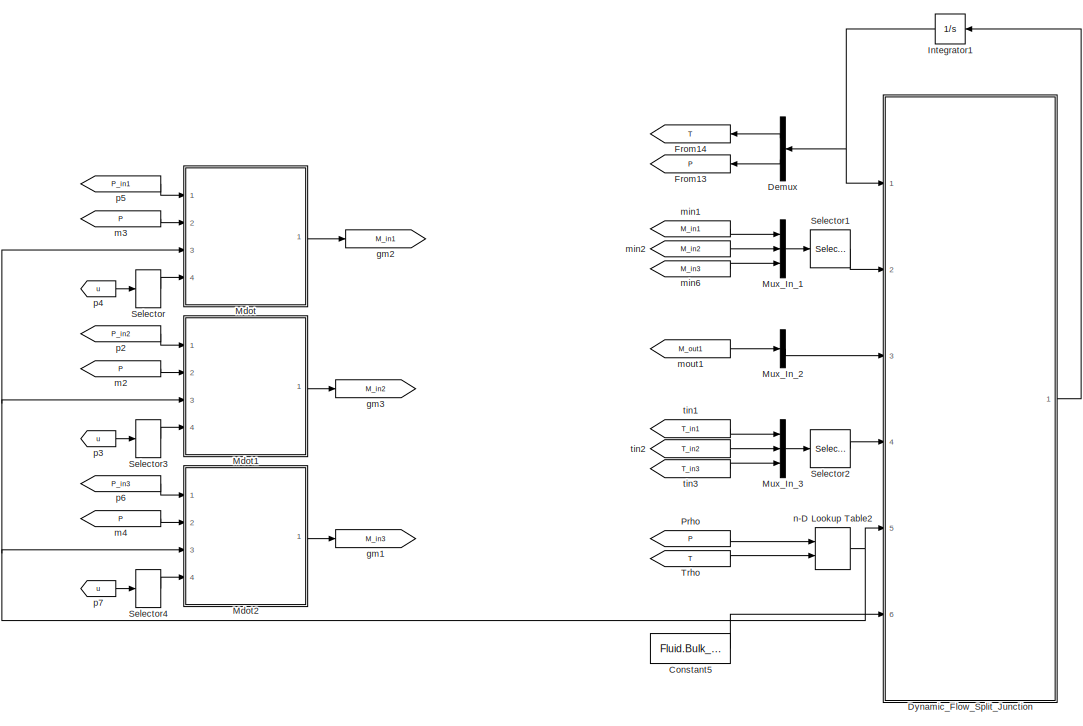
[diagram: Thermal Components/Valve3 - part 1/2, full width, top band]
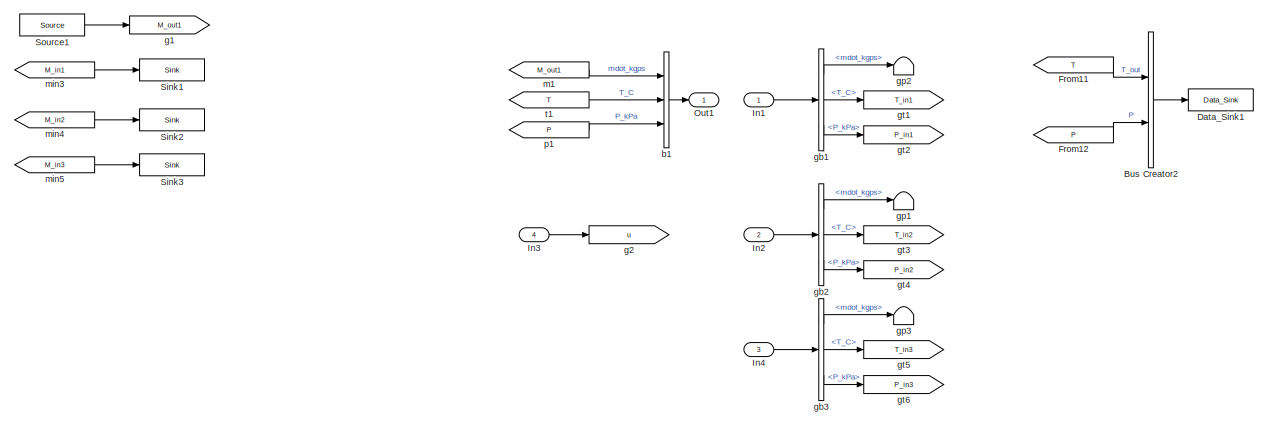
[diagram: Thermal Components/Valve3 - part 2/2, full width, bottom band]
BLOCK [SubSystem] Thermal Components/Valve3
  CopyFcn = h      = get_param(gcb,'handle');   % Get block handle\nblk    = gcb; \n\n% set_param(blk, 'LinkStatus', 'inactive')
  OpenFcn = load('Fluids.mat');\nSet_Fluid_Popup_Names( Fluid )
  Ports = [4, 1]
  RequestExecContextInheritance = off
  Variant = off
BLOCK [BusCreator] Thermal Components/Valve3/Bus Creator2
  DisplayOption = bar
  InheritFromInputs = on
  Inputs = 2
  Ports = [2, 1]
BLOCK [Constant] Thermal Components/Valve3/Constant5
  Value = Fluid.Bulk_Mod
BLOCK [Reference] Thermal Components/Valve3/Data_Sink1  REF=APST_Lib/Support Components/Data_Sink
  Ports = [1]
  SourceBlock = APST_Lib/Support Components/Data_Sink
  SourceType = Data Sink
BLOCK [Demux] Thermal Components/Valve3/Demux
  DisplayOption = bar
  Outputs = 2
  Ports = [1, 2]
BLOCK [SubSystem] Thermal Components/Valve3/Dynamic_Flow_Split_Junction
  ErrorFcn = Stateflow.Translate.translate
  PermitHierarchicalResolution = ExplicitOnly
  Ports = [6, 1]
  RequestExecContextInheritance = off
  SFBlockType = MATLAB Function
  TreatAsAtomicUnit = on
  Variant = off
BLOCK [Demux] Thermal Components/Valve3/Dynamic_Flow_Split_Junction/ Demux 
  Outputs = 1
  Ports = [1, 1]
BLOCK [S-Function] Thermal Components/Valve3/Dynamic_Flow_Split_Junction/ SFunction 
  EnableBusSupport = off
  FunctionName = sf_sfun
  Parameters = D,E,L,t,v
  PortCounts = [6 2]
  Ports = [6, 2]
  SFunctionDeploymentMode = off
  Tag = Stateflow S-Function APST_Lib 15
BLOCK [Terminator] Thermal Components/Valve3/Dynamic_Flow_Split_Junction/ Terminator 
BLOCK [Inport] Thermal Components/Valve3/Dynamic_Flow_Split_Junction/E_fluid
  IconDisplay = Port number
  Port = 6
BLOCK [Inport] Thermal Components/Valve3/Dynamic_Flow_Split_Junction/Mdot_in
  IconDisplay = Port number
  Port = 2
BLOCK [Inport] Thermal Components/Valve3/Dynamic_Flow_Split_Junction/Mdot_out
  IconDisplay = Port number
  Port = 3
BLOCK [Inport] Thermal Components/Valve3/Dynamic_Flow_Split_Junction/T_in
  IconDisplay = Port number
  Port = 4
BLOCK [Inport] Thermal Components/Valve3/Dynamic_Flow_Split_Junction/rho
  IconDisplay = Port number
  Port = 5
BLOCK [Inport] Thermal Components/Valve3/Dynamic_Flow_Split_Junction/x
  IconDisplay = Port number
BLOCK [Outport] Thermal Components/Valve3/Dynamic_Flow_Split_Junction/x_dot
  IconDisplay = Port number
BLOCK [From] Thermal Components/Valve3/From11
  CloseFcn = tagdialog Close
  GotoTag = T
BLOCK [From] Thermal Components/Valve3/From12
  CloseFcn = tagdialog Close
  GotoTag = P
BLOCK [Goto] Thermal Components/Valve3/From13
  GotoTag = P
BLOCK [Goto] Thermal Components/Valve3/From14
  GotoTag = T
BLOCK [Inport] Thermal Components/Valve3/In1
  IconDisplay = Port number
BLOCK [Inport] Thermal Components/Valve3/In2
  IconDisplay = Port number
  Port = 2
BLOCK [Inport] Thermal Components/Valve3/In3
  IconDisplay = Port number
  Port = 4
BLOCK [Inport] Thermal Components/Valve3/In4
  IconDisplay = Port number
  Port = 3
BLOCK [Integrator] Thermal Components/Valve3/Integrator1
  InitialCondition = [T_init P_init]
  Ports = [1, 1]
BLOCK [SubSystem] Thermal Components/Valve3/Mdot
  ErrorFcn = Stateflow.Translate.translate
  PermitHierarchicalResolution = ExplicitOnly
  Ports = [4, 1]
  RequestExecContextInheritance = off
  SFBlockType = MATLAB Function
  TreatAsAtomicUnit = on
  Variant = off
BLOCK [Demux] Thermal Components/Valve3/Mdot/ Demux 
  Outputs = 1
  Ports = [1, 1]
BLOCK [S-Function] Thermal Components/Valve3/Mdot/ SFunction 
  EnableBusSupport = off
  FunctionName = sf_sfun
  Parameters = D
  PortCounts = [4 2]
  Ports = [4, 2]
  SFunctionDeploymentMode = off
  Tag = Stateflow S-Function APST_Lib 16
BLOCK [Terminator] Thermal Components/Valve3/Mdot/ Terminator 
BLOCK [Outport] Thermal Components/Valve3/Mdot/Mdot
  IconDisplay = Port number
BLOCK [Inport] Thermal Components/Valve3/Mdot/P_in
  IconDisplay = Port number
BLOCK [Inport] Thermal Components/Valve3/Mdot/P_out
  IconDisplay = Port number
  Port = 2
BLOCK [Inport] Thermal Components/Valve3/Mdot/Rho
  IconDisplay = Port number
  Port = 3
BLOCK [Inport] Thermal Components/Valve3/Mdot/u
  IconDisplay = Port number
  Port = 4
BLOCK [SubSystem] Thermal Components/Valve3/Mdot1
  ErrorFcn = Stateflow.Translate.translate
  PermitHierarchicalResolution = ExplicitOnly
  Ports = [4, 1]
  RequestExecContextInheritance = off
  SFBlockType = MATLAB Function
  TreatAsAtomicUnit = on
  Variant = off
BLOCK [Demux] Thermal Components/Valve3/Mdot1/ Demux 
  Outputs = 1
  Ports = [1, 1]
BLOCK [S-Function] Thermal Components/Valve3/Mdot1/ SFunction 
  EnableBusSupport = off
  FunctionName = sf_sfun
  Parameters = D
  PortCounts = [4 2]
  Ports = [4, 2]
  SFunctionDeploymentMode = off
  Tag = Stateflow S-Function APST_Lib 32
BLOCK [Terminator] Thermal Components/Valve3/Mdot1/ Terminator 
BLOCK [Outport] Thermal Components/Valve3/Mdot1/Mdot
  IconDisplay = Port number
BLOCK [Inport] Thermal Components/Valve3/Mdot1/P_in
  IconDisplay = Port number
BLOCK [Inport] Thermal Components/Valve3/Mdot1/P_out
  IconDisplay = Port number
  Port = 2
BLOCK [Inport] Thermal Components/Valve3/Mdot1/Rho
  IconDisplay = Port number
  Port = 3
BLOCK [Inport] Thermal Components/Valve3/Mdot1/u
  IconDisplay = Port number
  Port = 4
BLOCK [SubSystem] Thermal Components/Valve3/Mdot2
  ErrorFcn = Stateflow.Translate.translate
  PermitHierarchicalResolution = ExplicitOnly
  Ports = [4, 1]
  RequestExecContextInheritance = off
  SFBlockType = MATLAB Function
  TreatAsAtomicUnit = on
  Variant = off
BLOCK [Demux] Thermal Components/Valve3/Mdot2/ Demux 
  Outputs = 1
  Ports = [1, 1]
BLOCK [S-Function] Thermal Components/Valve3/Mdot2/ SFunction 
  EnableBusSupport = off
  FunctionName = sf_sfun
  Parameters = D
  PortCounts = [4 2]
  Ports = [4, 2]
  SFunctionDeploymentMode = off
  Tag = Stateflow S-Function APST_Lib 33
BLOCK [Terminator] Thermal Components/Valve3/Mdot2/ Terminator 
BLOCK [Outport] Thermal Components/Valve3/Mdot2/Mdot
  IconDisplay = Port number
BLOCK [Inport] Thermal Components/Valve3/Mdot2/P_in
  IconDisplay = Port number
BLOCK [Inport] Thermal Components/Valve3/Mdot2/P_out
  IconDisplay = Port number
  Port = 2
BLOCK [Inport] Thermal Components/Valve3/Mdot2/Rho
  IconDisplay = Port number
  Port = 3
BLOCK [Inport] Thermal Components/Valve3/Mdot2/u
  IconDisplay = Port number
  Port = 4
BLOCK [Mux] Thermal Components/Valve3/Mux_In_1
  DisplayOption = bar
  Inputs = 3
  Ports = [3, 1]
BLOCK [Mux] Thermal Components/Valve3/Mux_In_2
  DisplayOption = bar
  Inputs = 1
  Ports = [1, 1]
BLOCK [Mux] Thermal Components/Valve3/Mux_In_3
  DisplayOption = bar
  Inputs = 3
  Ports = [3, 1]
BLOCK [Outport] Thermal Components/Valve3/Out1
  IconDisplay = Port number
BLOCK [From] Thermal Components/Valve3/Prho
  CloseFcn = tagdialog Close
  GotoTag = P
BLOCK [Selector] Thermal Components/Valve3/Selector
  IndexOptions = Index vector (dialog)
  Indices = [1]
  InputPortWidth = 3
  OutputSizes = 1
  Ports = [1, 1]
BLOCK [Selector] Thermal Components/Valve3/Selector1
  IndexOptions = Index vector (dialog)
  Indices = [1 2 3 ]
  InputPortWidth = 3
  OutputSizes = 1
  Ports = [1, 1]
BLOCK [Selector] Thermal Components/Valve3/Selector2
  IndexOptions = Index vector (dialog)
  Indices = [1 2 3 ]
  InputPortWidth = 3
  OutputSizes = 1
  Ports = [1, 1]
BLOCK [Selector] Thermal Components/Valve3/Selector3
  IndexOptions = Index vector (dialog)
  Indices = 2
  InputPortWidth = 3
  OutputSizes = 1
  Ports = [1, 1]
BLOCK [Selector] Thermal Components/Valve3/Selector4
  IndexOptions = Index vector (dialog)
  Indices = 3
  InputPortWidth = 3
  OutputSizes = 1
  Ports = [1, 1]
BLOCK [Reference] Thermal Components/Valve3/Sink1  REF=APST_Lib/Support Components/Sink
  Ports = [1]
  SourceBlock = APST_Lib/Support Components/Sink
  SourceType = Sink
BLOCK [Reference] Thermal Components/Valve3/Sink2  REF=APST_Lib/Support Components/Sink
  Ports = [1]
  SourceBlock = APST_Lib/Support Components/Sink
  SourceType = Sink
BLOCK [Reference] Thermal Components/Valve3/Sink3  REF=APST_Lib/Support Components/Sink
  Ports = [1]
  SourceBlock = APST_Lib/Support Components/Sink
  SourceType = Sink
BLOCK [Reference] Thermal Components/Valve3/Source1  REF=APST_Lib/Support Components/Source
  Ports = [0, 1]
  SourceBlock = APST_Lib/Support Components/Source
  SourceType = Source
BLOCK [From] Thermal Components/Valve3/Trho
  CloseFcn = tagdialog Close
  GotoTag = T
BLOCK [BusCreator] Thermal Components/Valve3/b1
  DisplayOption = bar
  InheritFromInputs = on
  Inputs = 3
  Ports = [3, 1]
BLOCK [Goto] Thermal Components/Valve3/g1
  GotoTag = M_out1
BLOCK [Goto] Thermal Components/Valve3/g2
  GotoTag = u
BLOCK [BusSelector] Thermal Components/Valve3/gb1
  OutputSignals = mdot_kgps,T_C,P_kPa
  Ports = [1, 3]
BLOCK [BusSelector] Thermal Components/Valve3/gb2
  OutputSignals = mdot_kgps,T_C,P_kPa
  Ports = [1, 3]
BLOCK [BusSelector] Thermal Components/Valve3/gb3
  OutputSignals = mdot_kgps,T_C,P_kPa
  Ports = [1, 3]
BLOCK [Goto] Thermal Components/Valve3/gm1
  GotoTag = M_in3
BLOCK [Goto] Thermal Components/Valve3/gm2
  GotoTag = M_in1
BLOCK [Goto] Thermal Components/Valve3/gm3
  GotoTag = M_in2
BLOCK [Terminator] Thermal Components/Valve3/gp1
BLOCK [Terminator] Thermal Components/Valve3/gp2
BLOCK [Terminator] Thermal Components/Valve3/gp3
BLOCK [Goto] Thermal Components/Valve3/gt1
  GotoTag = T_in1
BLOCK [Goto] Thermal Components/Valve3/gt2
  GotoTag = P_in1
BLOCK [Goto] Thermal Components/Valve3/gt3
  GotoTag = T_in2
BLOCK [Goto] Thermal Components/Valve3/gt4
  GotoTag = P_in2
BLOCK [Goto] Thermal Components/Valve3/gt5
  GotoTag = T_in3
BLOCK [Goto] Thermal Components/Valve3/gt6
  GotoTag = P_in3
BLOCK [From] Thermal Components/Valve3/m1
  CloseFcn = tagdialog Close
  GotoTag = M_out1
BLOCK [From] Thermal Components/Valve3/m2
  CloseFcn = tagdialog Close
  GotoTag = P
BLOCK [From] Thermal Components/Valve3/m3
  CloseFcn = tagdialog Close
  GotoTag = P
BLOCK [From] Thermal Components/Valve3/m4
  CloseFcn = tagdialog Close
  GotoTag = P
BLOCK [From] Thermal Components/Valve3/min1
  CloseFcn = tagdialog Close
  GotoTag = M_in1
BLOCK [From] Thermal Components/Valve3/min2
  CloseFcn = tagdialog Close
  GotoTag = M_in2
BLOCK [From] Thermal Components/Valve3/min3
  CloseFcn = tagdialog Close
  GotoTag = M_in1
BLOCK [From] Thermal Components/Valve3/min4
  CloseFcn = tagdialog Close
  GotoTag = M_in2
BLOCK [From] Thermal Components/Valve3/min5
  CloseFcn = tagdialog Close
  GotoTag = M_in3
BLOCK [From] Thermal Components/Valve3/min6
  CloseFcn = tagdialog Close
  GotoTag = M_in3
BLOCK [From] Thermal Components/Valve3/mout1
  GotoTag = M_out1
BLOCK [Lookup_n-D] Thermal Components/Valve3/n-D Lookup Table2
  BreakpointsForDimension1 = Fluid.P
  BreakpointsForDimension2 = Fluid.T
  BreakpointsForDimension3 = [5, 7]
  ExtrapMethod = Clip
  Ports = [2, 1]
  RndMeth = Simplest
  Table = Fluid.Rho_pt
  UseLastTableValue = on
BLOCK [From] Thermal Components/Valve3/p1
  CloseFcn = tagdialog Close
  GotoTag = P
BLOCK [From] Thermal Components/Valve3/p2
  CloseFcn = tagdialog Close
  GotoTag = P_in2
BLOCK [From] Thermal Components/Valve3/p3
  CloseFcn = tagdialog Close
  GotoTag = u
BLOCK [From] Thermal Components/Valve3/p4
  CloseFcn = tagdialog Close
  GotoTag = u
BLOCK [From] Thermal Components/Valve3/p5
  CloseFcn = tagdialog Close
  GotoTag = P_in1
BLOCK [From] Thermal Components/Valve3/p6
  CloseFcn = tagdialog Close
  GotoTag = P_in3
BLOCK [From] Thermal Components/Valve3/p7
  CloseFcn = tagdialog Close
  GotoTag = u
BLOCK [From] Thermal Components/Valve3/t1
  CloseFcn = tagdialog Close
  GotoTag = T
BLOCK [From] Thermal Components/Valve3/tin1
  GotoTag = T_in1
BLOCK [From] Thermal Components/Valve3/tin2
  GotoTag = T_in2
BLOCK [From] Thermal Components/Valve3/tin3
  GotoTag = T_in3
ANNOTATION Thermal Components/Compressor: tau_c = 1+(pi_c^((gam-1)/gam)-1)/eta
LINE Electrical Components/Battery/Battery:1 -> Electrical Components/Battery/Integrate:1
LINE Electrical Components/Battery/Battery:2 -> Electrical Components/Battery/Goto5:1
LINE Electrical Components/Battery/Battery:3 -> Electrical Components/Battery/Goto2:1
LINE Electrical Components/Battery/Bus Selector:1 -> Electrical Components/Battery/g2:1
LINE Electrical Components/Battery/Bus Selector:2 -> Electrical Components/Battery/Terminator3:1
LINE Electrical Components/Battery/In1:1 -> Electrical Components/Battery/Bus Selector:1
LINE Electrical Components/Battery/In2:1 -> Electrical Components/Battery/Product:2
NET Electrical Components/Battery/Integrate:1 -> Electrical Components/Battery/Battery:1, Electrical Components/Battery/Goto1:1
LINE Electrical Components/Battery/P:1 -> Electrical Components/Battery/Product:1
LINE Electrical Components/Battery/Product:1 -> Electrical Components/Battery/Goto4:1
LINE Electrical Components/Battery/Source1:1 -> Electrical Components/Battery/g1:1
LINE Electrical Components/Battery/b1:1 -> Electrical Components/Battery/Data_Sink1:1
LINE Electrical Components/Battery/b2:1 -> Electrical Components/Battery/Out1:1
LINE Electrical Components/Battery/eta:1 -> Electrical Components/Battery/Goto3:1
LINE Electrical Components/Battery/m1:1 -> Electrical Components/Battery/b2:1
LINE Electrical Components/Battery/m2:1 -> Electrical Components/Battery/eta:1
LINE Electrical Components/Battery/m3:1 -> Electrical Components/Battery/Battery:2
LINE Electrical Components/Battery/t1:1 -> Electrical Components/Battery/b2:2
LINE Electrical Components/Battery/t2:1 -> Electrical Components/Battery/b1:3
LINE Electrical Components/Battery/t3:1 -> Electrical Components/Battery/b1:1
LINE Electrical Components/Battery/t4:1 -> Electrical Components/Battery/b1:2
LINE Electrical Components/Battery/t5:1 -> Electrical Components/Battery/Sink1:1
LINE Electrical Components/Battery/t6:1 -> Electrical Components/Battery/Battery:3
LINE Electrical Components/Battery/t7:1 -> Electrical Components/Battery/Battery:4
LINE Electrical Components/Bus1/Add:1 -> Electrical Components/Bus1/Sink1:1
LINE Electrical Components/Bus1/Bus Creator1:1 -> Electrical Components/Bus1/Out1:1
LINE Electrical Components/Bus1/Bus Creator2:1 -> Electrical Components/Bus1/Out2:1
NET Electrical Components/Bus1/Bus Selector:1 -> Electrical Components/Bus1/Bus Creator1:1, Electrical Components/Bus1/Bus Creator2:1
LINE Electrical Components/Bus1/Bus Selector:2 -> Electrical Components/Bus1/Terminator3:1
LINE Electrical Components/Bus1/In:1 -> Electrical Components/Bus1/Bus Selector:1
NET Electrical Components/Bus1/Source1:1 -> Electrical Components/Bus1/Add:1, Electrical Components/Bus1/Bus Creator1:2
NET Electrical Components/Bus1/Source2:1 -> Electrical Components/Bus1/Add:2, Electrical Components/Bus1/Bus Creator2:2
LINE Electrical Components/Dist/Bus Creator1:1 -> Electrical Components/Dist/Out:1
LINE Electrical Components/Dist/Bus Selector1:1 -> Electrical Components/Dist/Mux:2
LINE Electrical Components/Dist/Bus Selector1:2 -> Electrical Components/Dist/Terminator1:1
LINE Electrical Components/Dist/Bus Selector:1 -> Electrical Components/Dist/Mux:1
LINE Electrical Components/Dist/Bus Selector:2 -> Electrical Components/Dist/Terminator3:1
LINE Electrical Components/Dist/Constant:1 -> Electrical Components/Dist/Switch:3
LINE Electrical Components/Dist/Demux:1 -> Electrical Components/Dist/Sink1:1
LINE Electrical Components/Dist/Demux:2 -> Electrical Components/Dist/Sink2:1
LINE Electrical Components/Dist/From1:1 -> Electrical Components/Dist/MinMax:1
LINE Electrical Components/Dist/From2:1 -> Electrical Components/Dist/Product:2
LINE Electrical Components/Dist/From3:1 -> Electrical Components/Dist/Product:1
LINE Electrical Components/Dist/From6:1 -> Electrical Components/Dist/Bus Creator1:2
LINE Electrical Components/Dist/In1:1 -> Electrical Components/Dist/Bus Selector:1
LINE Electrical Components/Dist/In2:1 -> Electrical Components/Dist/Bus Selector1:1
NET Electrical Components/Dist/MinMax:1 -> Electrical Components/Dist/Goto4:1, Electrical Components/Dist/Switch:2
LINE Electrical Components/Dist/Mux:1 -> Electrical Components/Dist/g2:1
LINE Electrical Components/Dist/Product:1 -> Electrical Components/Dist/Switch:1
LINE Electrical Components/Dist/Source1:1 -> Electrical Components/Dist/g1:1
LINE Electrical Components/Dist/Switch:1 -> Electrical Components/Dist/Goto2:1
LINE Electrical Components/Dist/t1:1 -> Electrical Components/Dist/Bus Creator1:1
LINE Electrical Components/Dist/t2:1 -> Electrical Components/Dist/Demux:1
LINE Electrical Components/Dist/u:1 -> Electrical Components/Dist/g3:1
NET Electrical Components/Heater/Bus Selector:1 -> Electrical Components/Heater/Divide:1, Electrical Components/Heater/Switch1:2, Electrical Components/Heater/Switch:2
LINE Electrical Components/Heater/Bus Selector:2 -> Electrical Components/Heater/Terminator3:1
LINE Electrical Components/Heater/Constant1:1 -> Electrical Components/Heater/Switch1:3
LINE Electrical Components/Heater/Constant:1 -> Electrical Components/Heater/Switch:3
LINE Electrical Components/Heater/Divide:1 -> Electrical Components/Heater/Switch:1
LINE Electrical Components/Heater/Gain:1 -> Electrical Components/Heater/Sink1:1
LINE Electrical Components/Heater/In1:1 -> Electrical Components/Heater/Bus Selector:1
LINE Electrical Components/Heater/In2:1 -> Electrical Components/Heater/Product:2
LINE Electrical Components/Heater/P:1 -> Electrical Components/Heater/Product:1
LINE Electrical Components/Heater/Product1:1 -> Electrical Components/Heater/Gain:1
LINE Electrical Components/Heater/Product:1 -> Electrical Components/Heater/Switch1:1
LINE Electrical Components/Heater/Source1:1 -> Electrical Components/Heater/g1:1
NET Electrical Components/Heater/Switch1:1 -> Electrical Components/Heater/Goto2:1, Electrical Components/Heater/Product1:2, Electrical Components/Heater/b1:1
LINE Electrical Components/Heater/Switch:1 -> Electrical Components/Heater/Product1:1
LINE Electrical Components/Heater/b1:1 -> Electrical Components/Heater/Data_Sink1:1
LINE Electrical Components/Heater/b2:1 -> Electrical Components/Heater/Out1:1
LINE Electrical Components/Heater/m1:1 -> Electrical Components/Heater/b2:1
LINE Electrical Components/Heater/t1:1 -> Electrical Components/Heater/b2:2
LINE Electrical Components/Heater/t2:1 -> Electrical Components/Heater/b1:2
NET Electrical Components/Load/Bus Selector:1 -> Electrical Components/Load/Divide:1, Electrical Components/Load/Switch1:2, Electrical Components/Load/Switch:2
LINE Electrical Components/Load/Bus Selector:2 -> Electrical Components/Load/Terminator3:1
LINE Electrical Components/Load/Constant1:1 -> Electrical Components/Load/Switch1:3
LINE Electrical Components/Load/Constant:1 -> Electrical Components/Load/Switch:3
LINE Electrical Components/Load/Divide:1 -> Electrical Components/Load/Switch:1
LINE Electrical Components/Load/Gain:1 -> Electrical Components/Load/Sink1:1
LINE Electrical Components/Load/In1:1 -> Electrical Components/Load/Bus Selector:1
LINE Electrical Components/Load/In2:1 -> Electrical Components/Load/Product:2
LINE Electrical Components/Load/P:1 -> Electrical Components/Load/Product:1
LINE Electrical Components/Load/Product1:1 -> Electrical Components/Load/Gain:1
LINE Electrical Components/Load/Product:1 -> Electrical Components/Load/Switch1:1
NET Electrical Components/Load/Switch1:1 -> Electrical Components/Load/Product1:2, Electrical Components/Load/b1:1
LINE Electrical Components/Load/Switch:1 -> Electrical Components/Load/Product1:1
LINE Electrical Components/Load/b1:1 -> Electrical Components/Load/Data_Sink1:1
NET Electrical Components/QLoad/Bus Selector:1 -> Electrical Components/QLoad/Divide:1, Electrical Components/QLoad/Switch1:2, Electrical Components/QLoad/Switch:2
LINE Electrical Components/QLoad/Bus Selector:2 -> Electrical Components/QLoad/Terminator3:1
LINE Electrical Components/QLoad/Constant1:1 -> Electrical Components/QLoad/Switch1:3
LINE Electrical Components/QLoad/Constant:1 -> Electrical Components/QLoad/Switch:3
NET Electrical Components/QLoad/Divide1:1 -> Electrical Components/QLoad/Product1:2, Electrical Components/QLoad/Product2:1
LINE Electrical Components/QLoad/Divide:1 -> Electrical Components/QLoad/Switch:1
LINE Electrical Components/QLoad/Fcn:1 -> Electrical Components/QLoad/Product2:2
LINE Electrical Components/QLoad/Gain:1 -> Electrical Components/QLoad/Sink1:1
LINE Electrical Components/QLoad/In1:1 -> Electrical Components/QLoad/Bus Selector:1
LINE Electrical Components/QLoad/In2:1 -> Electrical Components/QLoad/Product:2
LINE Electrical Components/QLoad/P:1 -> Electrical Components/QLoad/Product:1
LINE Electrical Components/QLoad/Product1:1 -> Electrical Components/QLoad/Gain:1
LINE Electrical Components/QLoad/Product2:1 -> Electrical Components/QLoad/Goto2:1
LINE Electrical Components/QLoad/Product:1 -> Electrical Components/QLoad/Switch1:1
LINE Electrical Components/QLoad/Source1:1 -> Electrical Components/QLoad/g1:1
NET Electrical Components/QLoad/Switch1:1 -> Electrical Components/QLoad/Divide1:1, Electrical Components/QLoad/b1:2
LINE Electrical Components/QLoad/Switch:1 -> Electrical Components/QLoad/Product1:1
LINE Electrical Components/QLoad/b1:1 -> Electrical Components/QLoad/Data_Sink1:1
LINE Electrical Components/QLoad/b2:1 -> Electrical Components/QLoad/Out1:1
NET Electrical Components/QLoad/eta:1 -> Electrical Components/QLoad/Divide1:2, Electrical Components/QLoad/Fcn:1, Electrical Components/QLoad/b1:1
LINE Electrical Components/QLoad/m1:1 -> Electrical Components/QLoad/b2:1
LINE Electrical Components/QLoad/m2:1 -> Electrical Components/QLoad/eta:1
LINE Electrical Components/QLoad/t1:1 -> Electrical Components/QLoad/b2:2
LINE Electrical Components/QLoad/t2:1 -> Electrical Components/QLoad/b1:3
LINE Electrical Components/Switch/Bus Creator1:1 -> Electrical Components/Switch/Out:1
LINE Electrical Components/Switch/Bus Selector:1 -> Electrical Components/Switch/Product:1
LINE Electrical Components/Switch/Bus Selector:2 -> Electrical Components/Switch/Terminator3:1
LINE Electrical Components/Switch/In:1 -> Electrical Components/Switch/Bus Selector:1
NET Electrical Components/Switch/Product1:1 -> Electrical Components/Switch/Bus Creator1:2, Electrical Components/Switch/Sink1:1
LINE Electrical Components/Switch/Product:1 -> Electrical Components/Switch/Bus Creator1:1
LINE Electrical Components/Switch/Source1:1 -> Electrical Components/Switch/Product1:2
NET Electrical Components/Switch/u:1 -> Electrical Components/Switch/Product1:1, Electrical Components/Switch/Product:2
LINE Source & Sinks/Flow Flow Source (Pressure)/Constant4:1 -> Source & Sinks/Flow Flow Source (Pressure)/b1:1
LINE Source & Sinks/Flow Flow Source (Pressure)/In2:1 -> Source & Sinks/Flow Flow Source (Pressure)/b1:2
LINE Source & Sinks/Flow Flow Source (Pressure)/In3:1 -> Source & Sinks/Flow Flow Source (Pressure)/b1:3
LINE Source & Sinks/Flow Flow Source (Pressure)/Source1:1 -> Source & Sinks/Flow Flow Source (Pressure)/Terminator:1
LINE Source & Sinks/Flow Flow Source (Pressure)/b1:1 -> Source & Sinks/Flow Flow Source (Pressure)/Out1:1
LINE Source & Sinks/Flow Sink (Generic)/In3:1 -> Source & Sinks/Flow Sink (Generic)/Sink1:1
LINE Source & Sinks/Flow Sink (Generic)/In4:1 -> Source & Sinks/Flow Sink (Generic)/Terminator:1
LINE Source & Sinks/Flow Sink (Mass Flow Rate)/In3:1 -> Source & Sinks/Flow Sink (Mass Flow Rate)/Sink1:1
LINE Source & Sinks/Flow Sink (Mass Flow Rate)/In4:1 -> Source & Sinks/Flow Sink (Mass Flow Rate)/Terminator:1
LINE Source & Sinks/Flow Sink (Pressure)/In3:1 -> Source & Sinks/Flow Sink (Pressure)/Sink1:1
LINE Source & Sinks/Flow Sink (Pressure)/In4:1 -> Source & Sinks/Flow Sink (Pressure)/Terminator:1
LINE Source & Sinks/Flow Source (Mass Flow Rate)/Constant4:1 -> Source & Sinks/Flow Source (Mass Flow Rate)/b1:3
LINE Source & Sinks/Flow Source (Mass Flow Rate)/In1:1 -> Source & Sinks/Flow Source (Mass Flow Rate)/b1:2
LINE Source & Sinks/Flow Source (Mass Flow Rate)/In2:1 -> Source & Sinks/Flow Source (Mass Flow Rate)/b1:1
LINE Source & Sinks/Flow Source (Mass Flow Rate)/Source1:1 -> Source & Sinks/Flow Source (Mass Flow Rate)/Terminator:1
LINE Source & Sinks/Flow Source (Mass Flow Rate)/b1:1 -> Source & Sinks/Flow Source (Mass Flow Rate)/Out1:1
LINE Support Components/Unit Conversion /Signal_in:1 -> Support Components/Unit Conversion /conv_fcn:1
LINE Support Components/Unit Conversion /conv_fcn:1 -> Support Components/Unit Conversion /Converted Signal Out:1
LINE Thermal Components/ACM Shaft /Bus Creator2:1 -> Thermal Components/ACM Shaft /Data_Sink:1
LINE Thermal Components/ACM Shaft /Comp Inertia:1 -> Thermal Components/ACM Shaft /Mux:2
LINE Thermal Components/ACM Shaft /Divide:1 -> Thermal Components/ACM Shaft /Integrator:1
NET Thermal Components/ACM Shaft /Integrator:1 -> Thermal Components/ACM Shaft /Divide:3, Thermal Components/ACM Shaft /rad 2 rev1:1, Thermal Components/ACM Shaft /rad 2 rev:1
LINE Thermal Components/ACM Shaft /Mux:1 -> Thermal Components/ACM Shaft /Sum of Elements1:1
LINE Thermal Components/ACM Shaft /Power In//Out [vector]:1 -> Thermal Components/ACM Shaft /Sum of Elements:1
LINE Thermal Components/ACM Shaft /Pwr Turb Inertia:1 -> Thermal Components/ACM Shaft /Mux:4
LINE Thermal Components/ACM Shaft /Shaft Inertia:1 -> Thermal Components/ACM Shaft /Mux:1
LINE Thermal Components/ACM Shaft /Sum of Elements1:1 -> Thermal Components/ACM Shaft /Divide:2
LINE Thermal Components/ACM Shaft /Sum of Elements:1 -> Thermal Components/ACM Shaft /Divide:1
LINE Thermal Components/ACM Shaft /Turb Inertia:1 -> Thermal Components/ACM Shaft /Mux:3
LINE Thermal Components/ACM Shaft /rad 2 rev1:1 -> Thermal Components/ACM Shaft /Bus Creator2:1
LINE Thermal Components/ACM Shaft /rad 2 rev:1 -> Thermal Components/ACM Shaft /RPM:1
LINE Thermal Components/Compressor/Add1:1 -> Thermal Components/Compressor/Product4:2
NET Thermal Components/Compressor/Add:1 -> Thermal Components/Compressor/Product2:1, Thermal Components/Compressor/Product3:2
NET Thermal Components/Compressor/Bias2:1 -> Thermal Components/Compressor/Product1:2, Thermal Components/Compressor/Product2:2
LINE Thermal Components/Compressor/Bias3:1 -> Thermal Components/Compressor/Bus Creator:2
LINE Thermal Components/Compressor/Bias4:1 -> Thermal Components/Compressor/Product:2
LINE Thermal Components/Compressor/Bias:1 -> Thermal Components/Compressor/Product1:1
LINE Thermal Components/Compressor/Bus Creator2:1 -> Thermal Components/Compressor/Data_Sink1:1
LINE Thermal Components/Compressor/Bus Creator:1 -> Thermal Components/Compressor/Flow Out:1
LINE Thermal Components/Compressor/Bus Selector:1 -> Thermal Components/Compressor/Divide:1
LINE Thermal Components/Compressor/Bus Selector:2 -> Thermal Components/Compressor/Bias2:1
LINE Thermal Components/Compressor/Constant1:1 -> Thermal Components/Compressor/Add:1
LINE Thermal Components/Compressor/Constant2:1 -> Thermal Components/Compressor/Add:2
LINE Thermal Components/Compressor/Constant:1 -> Thermal Components/Compressor/Math Function1:2
NET Thermal Components/Compressor/Divide:1 -> Thermal Components/Compressor/ETA(mdot,PR):2, Thermal Components/Compressor/MDOT(N,PR):2, Thermal Components/Compressor/Math Function1:1, Thermal Components/Compressor/gm3:1
NET Thermal Components/Compressor/ETA(mdot,PR):1 -> Thermal Components/Compressor/Math Function:1, Thermal Components/Compressor/gm1:1
LINE Thermal Components/Compressor/Flow In:1 -> Thermal Components/Compressor/Bus Selector:1
LINE Thermal Components/Compressor/From11:1 -> Thermal Components/Compressor/Bus Creator2:1
LINE Thermal Components/Compressor/From1:1 -> Thermal Components/Compressor/Bias3:1
LINE Thermal Components/Compressor/From2:1 -> Thermal Components/Compressor/Bus Creator:3
LINE Thermal Components/Compressor/MDOT(N,PR):1 -> Thermal Components/Compressor/Smooth Map Output:1
LINE Thermal Components/Compressor/Math Function1:1 -> Thermal Components/Compressor/Bias4:1
LINE Thermal Components/Compressor/Math Function:1 -> Thermal Components/Compressor/Product:1
NET Thermal Components/Compressor/Product1:1 -> Thermal Components/Compressor/Product3:1, Thermal Components/Compressor/gm2:1
LINE Thermal Components/Compressor/Product2:1 -> Thermal Components/Compressor/Add1:2
LINE Thermal Components/Compressor/Product3:1 -> Thermal Components/Compressor/Add1:1
LINE Thermal Components/Compressor/Product4:1 -> Thermal Components/Compressor/Power:1
LINE Thermal Components/Compressor/Product:1 -> Thermal Components/Compressor/Bias:1
LINE Thermal Components/Compressor/Shaft RPM:1 -> Thermal Components/Compressor/MDOT(N,PR):1
NET Thermal Components/Compressor/Smooth Map Output:1 -> Thermal Components/Compressor/ETA(mdot,PR):1, Thermal Components/Compressor/gm4:1
NET Thermal Components/Compressor/Source1:1 -> Thermal Components/Compressor/Divide:2, Thermal Components/Compressor/g1:1
LINE Thermal Components/Compressor/m1:1 -> Thermal Components/Compressor/Sink1:1
LINE Thermal Components/Compressor/m2:1 -> Thermal Components/Compressor/Bus Creator2:2
LINE Thermal Components/Compressor/m3:1 -> Thermal Components/Compressor/Bus Creator:1
LINE Thermal Components/Compressor/m4:1 -> Thermal Components/Compressor/Product4:1
LINE Thermal Components/Compressor/m5:1 -> Thermal Components/Compressor/Bus Creator2:3
LINE Thermal Components/Compressor/m6:1 -> Thermal Components/Compressor/Bus Creator2:4
LINE Thermal Components/Flow Split_Junction/Bus Creator2:1 -> Thermal Components/Flow Split_Junction/Data_Sink1:1
LINE Thermal Components/Flow Split_Junction/Constant11:1 -> Thermal Components/Flow Split_Junction/n-D Lookup Table2:2
LINE Thermal Components/Flow Split_Junction/Constant5:1 -> Thermal Components/Flow Split_Junction/Dynamic_Flow_Split_Junction:6
LINE Thermal Components/Flow Split_Junction/Constant7:1 -> Thermal Components/Flow Split_Junction/n-D Lookup Table2:1
LINE Thermal Components/Flow Split_Junction/Demux:1 -> Thermal Components/Flow Split_Junction/From14:1
LINE Thermal Components/Flow Split_Junction/Demux:2 -> Thermal Components/Flow Split_Junction/From13:1
LINE Thermal Components/Flow Split_Junction/Dynamic_Flow_Split_Junction:1 -> Thermal Components/Flow Split_Junction/Integrator1:1
LINE Thermal Components/Flow Split_Junction/From11:1 -> Thermal Components/Flow Split_Junction/Bus Creator2:1
LINE Thermal Components/Flow Split_Junction/From12:1 -> Thermal Components/Flow Split_Junction/Bus Creator2:2
LINE Thermal Components/Flow Split_Junction/In1:1 -> Thermal Components/Flow Split_Junction/gb1:1
NET Thermal Components/Flow Split_Junction/Integrator1:1 -> Thermal Components/Flow Split_Junction/Demux:1, Thermal Components/Flow Split_Junction/Dynamic_Flow_Split_Junction:1
LINE Thermal Components/Flow Split_Junction/Mux_In_1:1 -> Thermal Components/Flow Split_Junction/Selector1:1
LINE Thermal Components/Flow Split_Junction/Mux_In_2:1 -> Thermal Components/Flow Split_Junction/Dynamic_Flow_Split_Junction:3
LINE Thermal Components/Flow Split_Junction/Mux_In_3:1 -> Thermal Components/Flow Split_Junction/Selector2:1
LINE Thermal Components/Flow Split_Junction/Selector1:1 -> Thermal Components/Flow Split_Junction/Dynamic_Flow_Split_Junction:2
LINE Thermal Components/Flow Split_Junction/Selector2:1 -> Thermal Components/Flow Split_Junction/Dynamic_Flow_Split_Junction:4
LINE Thermal Components/Flow Split_Junction/Source1:1 -> Thermal Components/Flow Split_Junction/g1:1
LINE Thermal Components/Flow Split_Junction/b1:1 -> Thermal Components/Flow Split_Junction/Out1:1
LINE Thermal Components/Flow Split_Junction/gb1:1 -> Thermal Components/Flow Split_Junction/gm1:1
LINE Thermal Components/Flow Split_Junction/gb1:2 -> Thermal Components/Flow Split_Junction/gt1:1
LINE Thermal Components/Flow Split_Junction/gb1:3 -> Thermal Components/Flow Split_Junction/gp1:1
LINE Thermal Components/Flow Split_Junction/m1:1 -> Thermal Components/Flow Split_Junction/b1:1
LINE Thermal Components/Flow Split_Junction/min1:1 -> Thermal Components/Flow Split_Junction/Mux_In_1:1
LINE Thermal Components/Flow Split_Junction/mout1:1 -> Thermal Components/Flow Split_Junction/Mux_In_2:1
LINE Thermal Components/Flow Split_Junction/n-D Lookup Table2:1 -> Thermal Components/Flow Split_Junction/Dynamic_Flow_Split_Junction:5
LINE Thermal Components/Flow Split_Junction/p1:1 -> Thermal Components/Flow Split_Junction/b1:3
LINE Thermal Components/Flow Split_Junction/pout1:1 -> Thermal Components/Flow Split_Junction/Sink1:1
LINE Thermal Components/Flow Split_Junction/t1:1 -> Thermal Components/Flow Split_Junction/b1:2
LINE Thermal Components/Flow Split_Junction/tin1:1 -> Thermal Components/Flow Split_Junction/Mux_In_3:1
LINE Thermal Components/Flow Split_Junction1/Bias:1 -> Thermal Components/Flow Split_Junction1/Mdot1:4
LINE Thermal Components/Flow Split_Junction1/Bus Creator2:1 -> Thermal Components/Flow Split_Junction1/Data_Sink1:1
LINE Thermal Components/Flow Split_Junction1/Constant1:1 -> Thermal Components/Flow Split_Junction1/n-D Lookup Table2:1
LINE Thermal Components/Flow Split_Junction1/Constant2:1 -> Thermal Components/Flow Split_Junction1/n-D Lookup Table2:2
LINE Thermal Components/Flow Split_Junction1/From11:1 -> Thermal Components/Flow Split_Junction1/Bus Creator2:1
LINE Thermal Components/Flow Split_Junction1/In1:1 -> Thermal Components/Flow Split_Junction1/gb1:1
LINE Thermal Components/Flow Split_Junction1/In2:1 -> Thermal Components/Flow Split_Junction1/g3:1
LINE Thermal Components/Flow Split_Junction1/Mdot1:1 -> Thermal Components/Flow Split_Junction1/gm3:1
LINE Thermal Components/Flow Split_Junction1/Mdot:1 -> Thermal Components/Flow Split_Junction1/gm2:1
LINE Thermal Components/Flow Split_Junction1/Source1:1 -> Thermal Components/Flow Split_Junction1/g1:1
LINE Thermal Components/Flow Split_Junction1/Source2:1 -> Thermal Components/Flow Split_Junction1/g2:1
LINE Thermal Components/Flow Split_Junction1/Sum:1 -> Thermal Components/Flow Split_Junction1/Sink1:1
LINE Thermal Components/Flow Split_Junction1/Unary Minus:1 -> Thermal Components/Flow Split_Junction1/Bias:1
LINE Thermal Components/Flow Split_Junction1/b1:1 -> Thermal Components/Flow Split_Junction1/Out1:1
LINE Thermal Components/Flow Split_Junction1/b2:1 -> Thermal Components/Flow Split_Junction1/Out2:1
LINE Thermal Components/Flow Split_Junction1/gb1:1 -> Thermal Components/Flow Split_Junction1/gm1:1
LINE Thermal Components/Flow Split_Junction1/gb1:2 -> Thermal Components/Flow Split_Junction1/gt1:1
LINE Thermal Components/Flow Split_Junction1/gb1:3 -> Thermal Components/Flow Split_Junction1/gt2:1
LINE Thermal Components/Flow Split_Junction1/m1:1 -> Thermal Components/Flow Split_Junction1/b1:1
LINE Thermal Components/Flow Split_Junction1/m2:1 -> Thermal Components/Flow Split_Junction1/b2:1
LINE Thermal Components/Flow Split_Junction1/m3:1 -> Thermal Components/Flow Split_Junction1/b2:3
LINE Thermal Components/Flow Split_Junction1/m4:1 -> Thermal Components/Flow Split_Junction1/b1:3
LINE Thermal Components/Flow Split_Junction1/m5:1 -> Thermal Components/Flow Split_Junction1/Mdot1:2
LINE Thermal Components/Flow Split_Junction1/m6:1 -> Thermal Components/Flow Split_Junction1/Mdot:2
LINE Thermal Components/Flow Split_Junction1/mout3:1 -> Thermal Components/Flow Split_Junction1/Bus Creator2:2
LINE Thermal Components/Flow Split_Junction1/mout4:1 -> Thermal Components/Flow Split_Junction1/Bus Creator2:3
NET Thermal Components/Flow Split_Junction1/n-D Lookup Table2:1 -> Thermal Components/Flow Split_Junction1/Mdot1:3, Thermal Components/Flow Split_Junction1/Mdot:3
LINE Thermal Components/Flow Split_Junction1/p1:1 -> Thermal Components/Flow Split_Junction1/Mdot1:1
LINE Thermal Components/Flow Split_Junction1/p3:1 -> Thermal Components/Flow Split_Junction1/Unary Minus:1
LINE Thermal Components/Flow Split_Junction1/p4:1 -> Thermal Components/Flow Split_Junction1/Mdot:4
LINE Thermal Components/Flow Split_Junction1/p5:1 -> Thermal Components/Flow Split_Junction1/Mdot:1
LINE Thermal Components/Flow Split_Junction1/pout1:1 -> Thermal Components/Flow Split_Junction1/Sum:1
LINE Thermal Components/Flow Split_Junction1/pout2:1 -> Thermal Components/Flow Split_Junction1/Sum:2
LINE Thermal Components/Flow Split_Junction1/t1:1 -> Thermal Components/Flow Split_Junction1/b1:2
LINE Thermal Components/Flow Split_Junction1/t2:1 -> Thermal Components/Flow Split_Junction1/b2:2
LINE Thermal Components/Turbine/Add1:1 -> Thermal Components/Turbine/Product4:2
NET Thermal Components/Turbine/Add:1 -> Thermal Components/Turbine/Product2:1, Thermal Components/Turbine/Product3:2
LINE Thermal Components/Turbine/Bias1:1 -> Thermal Components/Turbine/Product:2
NET Thermal Components/Turbine/Bias2:1 -> Thermal Components/Turbine/Product1:2, Thermal Components/Turbine/Product2:2
LINE Thermal Components/Turbine/Bias3:1 -> Thermal Components/Turbine/Bus Creator1:2
LINE Thermal Components/Turbine/Bias:1 -> Thermal Components/Turbine/Product1:1
LINE Thermal Components/Turbine/Bus Creator1:1 -> Thermal Components/Turbine/Flow Out:1
LINE Thermal Components/Turbine/Bus Creator2:1 -> Thermal Components/Turbine/Data_Sink1:1
LINE Thermal Components/Turbine/Bus Selector:1 -> Thermal Components/Turbine/Divide:1
LINE Thermal Components/Turbine/Bus Selector:2 -> Thermal Components/Turbine/Bias2:1
LINE Thermal Components/Turbine/Constant1:1 -> Thermal Components/Turbine/Add:1
LINE Thermal Components/Turbine/Constant2:1 -> Thermal Components/Turbine/Add:2
LINE Thermal Components/Turbine/Constant:1 -> Thermal Components/Turbine/Math Function1:2
NET Thermal Components/Turbine/Divide:1 -> Thermal Components/Turbine/ETA(PR):1, Thermal Components/Turbine/MDOT(PR):1, Thermal Components/Turbine/Math Function:1, Thermal Components/Turbine/gm3:1
NET Thermal Components/Turbine/ETA(PR):1 -> Thermal Components/Turbine/Display:1, Thermal Components/Turbine/Product:1, Thermal Components/Turbine/gm1:1
LINE Thermal Components/Turbine/Flow In:1 -> Thermal Components/Turbine/Bus Selector:1
LINE Thermal Components/Turbine/From11:1 -> Thermal Components/Turbine/Bus Creator2:1
LINE Thermal Components/Turbine/From3:1 -> Thermal Components/Turbine/Bias3:1
LINE Thermal Components/Turbine/From4:1 -> Thermal Components/Turbine/Bus Creator1:3
LINE Thermal Components/Turbine/MDOT(PR):1 -> Thermal Components/Turbine/gm4:1
LINE Thermal Components/Turbine/Math Function1:1 -> Thermal Components/Turbine/Unary Minus2:1
LINE Thermal Components/Turbine/Math Function:1 -> Thermal Components/Turbine/Math Function1:1
NET Thermal Components/Turbine/Product1:1 -> Thermal Components/Turbine/Product3:1, Thermal Components/Turbine/gm2:1
LINE Thermal Components/Turbine/Product2:1 -> Thermal Components/Turbine/Add1:2
LINE Thermal Components/Turbine/Product3:1 -> Thermal Components/Turbine/Add1:1
LINE Thermal Components/Turbine/Product4:1 -> Thermal Components/Turbine/Power:1
LINE Thermal Components/Turbine/Product:1 -> Thermal Components/Turbine/Unary Minus1:1
LINE Thermal Components/Turbine/Shaft RPM:1 -> Thermal Components/Turbine/Terminator:1
NET Thermal Components/Turbine/Source1:1 -> Thermal Components/Turbine/Divide:2, Thermal Components/Turbine/g1:1
LINE Thermal Components/Turbine/Unary Minus1:1 -> Thermal Components/Turbine/Bias:1
LINE Thermal Components/Turbine/Unary Minus2:1 -> Thermal Components/Turbine/Bias1:1
LINE Thermal Components/Turbine/m1:1 -> Thermal Components/Turbine/Sink1:1
LINE Thermal Components/Turbine/m2:1 -> Thermal Components/Turbine/Bus Creator2:2
LINE Thermal Components/Turbine/m3:1 -> Thermal Components/Turbine/Bus Creator2:3
LINE Thermal Components/Turbine/m4:1 -> Thermal Components/Turbine/Product4:1
LINE Thermal Components/Turbine/m5:1 -> Thermal Components/Turbine/Bus Creator1:1
LINE Thermal Components/Turbine/m6:1 -> Thermal Components/Turbine/Bus Creator2:4
LINE Thermal Components/Valve1/Bias:1 -> Thermal Components/Valve1/Mdot1:4
LINE Thermal Components/Valve1/Bus Creator2:1 -> Thermal Components/Valve1/Data_Sink1:1
LINE Thermal Components/Valve1/Constant5:1 -> Thermal Components/Valve1/Dynamic_Flow_Split_Junction:6
LINE Thermal Components/Valve1/Demux:1 -> Thermal Components/Valve1/From14:1
LINE Thermal Components/Valve1/Demux:2 -> Thermal Components/Valve1/From13:1
LINE Thermal Components/Valve1/Dynamic_Flow_Split_Junction:1 -> Thermal Components/Valve1/Integrator1:1
LINE Thermal Components/Valve1/From11:1 -> Thermal Components/Valve1/Bus Creator2:1
LINE Thermal Components/Valve1/From12:1 -> Thermal Components/Valve1/Bus Creator2:2
LINE Thermal Components/Valve1/In1:1 -> Thermal Components/Valve1/gb1:1
LINE Thermal Components/Valve1/In2:1 -> Thermal Components/Valve1/gb2:1
LINE Thermal Components/Valve1/In3:1 -> Thermal Components/Valve1/g2:1
NET Thermal Components/Valve1/Integrator1:1 -> Thermal Components/Valve1/Demux:1, Thermal Components/Valve1/Dynamic_Flow_Split_Junction:1
LINE Thermal Components/Valve1/Mdot1:1 -> Thermal Components/Valve1/gm3:1
LINE Thermal Components/Valve1/Mdot:1 -> Thermal Components/Valve1/gm2:1
LINE Thermal Components/Valve1/Mux_In_1:1 -> Thermal Components/Valve1/Selector1:1
LINE Thermal Components/Valve1/Mux_In_2:1 -> Thermal Components/Valve1/Dynamic_Flow_Split_Junction:3
LINE Thermal Components/Valve1/Mux_In_3:1 -> Thermal Components/Valve1/Selector2:1
LINE Thermal Components/Valve1/Prho:1 -> Thermal Components/Valve1/n-D Lookup Table2:1
LINE Thermal Components/Valve1/Selector1:1 -> Thermal Components/Valve1/Dynamic_Flow_Split_Junction:2
LINE Thermal Components/Valve1/Selector2:1 -> Thermal Components/Valve1/Dynamic_Flow_Split_Junction:4
LINE Thermal Components/Valve1/Source1:1 -> Thermal Components/Valve1/g1:1
LINE Thermal Components/Valve1/Trho:1 -> Thermal Components/Valve1/n-D Lookup Table2:2
LINE Thermal Components/Valve1/Unary Minus:1 -> Thermal Components/Valve1/Bias:1
LINE Thermal Components/Valve1/b1:1 -> Thermal Components/Valve1/Out1:1
LINE Thermal Components/Valve1/gb1:1 -> Thermal Components/Valve1/gp2:1
LINE Thermal Components/Valve1/gb1:2 -> Thermal Components/Valve1/gt1:1
LINE Thermal Components/Valve1/gb1:3 -> Thermal Components/Valve1/gt2:1
LINE Thermal Components/Valve1/gb2:1 -> Thermal Components/Valve1/gp1:1
LINE Thermal Components/Valve1/gb2:2 -> Thermal Components/Valve1/gt3:1
LINE Thermal Components/Valve1/gb2:3 -> Thermal Components/Valve1/gt4:1
LINE Thermal Components/Valve1/m1:1 -> Thermal Components/Valve1/b1:1
LINE Thermal Components/Valve1/m2:1 -> Thermal Components/Valve1/Mdot1:2
LINE Thermal Components/Valve1/m3:1 -> Thermal Components/Valve1/Mdot:2
LINE Thermal Components/Valve1/min1:1 -> Thermal Components/Valve1/Mux_In_1:1
LINE Thermal Components/Valve1/min2:1 -> Thermal Components/Valve1/Mux_In_1:2
LINE Thermal Components/Valve1/min3:1 -> Thermal Components/Valve1/Sink1:1
LINE Thermal Components/Valve1/min4:1 -> Thermal Components/Valve1/Sink2:1
LINE Thermal Components/Valve1/mout1:1 -> Thermal Components/Valve1/Mux_In_2:1
NET Thermal Components/Valve1/n-D Lookup Table2:1 -> Thermal Components/Valve1/Dynamic_Flow_Split_Junction:5, Thermal Components/Valve1/Mdot1:3, Thermal Components/Valve1/Mdot:3
LINE Thermal Components/Valve1/p1:1 -> Thermal Components/Valve1/b1:3
LINE Thermal Components/Valve1/p2:1 -> Thermal Components/Valve1/Mdot1:1
LINE Thermal Components/Valve1/p3:1 -> Thermal Components/Valve1/Unary Minus:1
LINE Thermal Components/Valve1/p4:1 -> Thermal Components/Valve1/Mdot:4
LINE Thermal Components/Valve1/p5:1 -> Thermal Components/Valve1/Mdot:1
LINE Thermal Components/Valve1/t1:1 -> Thermal Components/Valve1/b1:2
LINE Thermal Components/Valve1/tin1:1 -> Thermal Components/Valve1/Mux_In_3:1
LINE Thermal Components/Valve1/tin2:1 -> Thermal Components/Valve1/Mux_In_3:2
LINE Thermal Components/Valve2/Bus Creator2:1 -> Thermal Components/Valve2/Data_Sink1:1
LINE Thermal Components/Valve2/Constant5:1 -> Thermal Components/Valve2/Dynamic_Flow_Split_Junction:6
LINE Thermal Components/Valve2/Demux:1 -> Thermal Components/Valve2/From14:1
LINE Thermal Components/Valve2/Demux:2 -> Thermal Components/Valve2/From13:1
LINE Thermal Components/Valve2/Dynamic_Flow_Split_Junction:1 -> Thermal Components/Valve2/Integrator1:1
LINE Thermal Components/Valve2/From11:1 -> Thermal Components/Valve2/Bus Creator2:1
LINE Thermal Components/Valve2/From12:1 -> Thermal Components/Valve2/Bus Creator2:2
LINE Thermal Components/Valve2/In1:1 -> Thermal Components/Valve2/gb1:1
LINE Thermal Components/Valve2/In3:1 -> Thermal Components/Valve2/g2:1
NET Thermal Components/Valve2/Integrator1:1 -> Thermal Components/Valve2/Demux:1, Thermal Components/Valve2/Dynamic_Flow_Split_Junction:1
LINE Thermal Components/Valve2/Mdot:1 -> Thermal Components/Valve2/gm2:1
LINE Thermal Components/Valve2/Mux_In_1:1 -> Thermal Components/Valve2/Selector1:1
LINE Thermal Components/Valve2/Mux_In_2:1 -> Thermal Components/Valve2/Dynamic_Flow_Split_Junction:3
LINE Thermal Components/Valve2/Mux_In_3:1 -> Thermal Components/Valve2/Selector2:1
LINE Thermal Components/Valve2/Prho:1 -> Thermal Components/Valve2/n-D Lookup Table2:1
LINE Thermal Components/Valve2/Selector1:1 -> Thermal Components/Valve2/Dynamic_Flow_Split_Junction:2
LINE Thermal Components/Valve2/Selector2:1 -> Thermal Components/Valve2/Dynamic_Flow_Split_Junction:4
LINE Thermal Components/Valve2/Source1:1 -> Thermal Components/Valve2/g1:1
LINE Thermal Components/Valve2/Trho:1 -> Thermal Components/Valve2/n-D Lookup Table2:2
LINE Thermal Components/Valve2/b1:1 -> Thermal Components/Valve2/Out1:1
LINE Thermal Components/Valve2/gb1:1 -> Thermal Components/Valve2/gp2:1
LINE Thermal Components/Valve2/gb1:2 -> Thermal Components/Valve2/gt1:1
LINE Thermal Components/Valve2/gb1:3 -> Thermal Components/Valve2/gt2:1
LINE Thermal Components/Valve2/m1:1 -> Thermal Components/Valve2/b1:1
LINE Thermal Components/Valve2/m3:1 -> Thermal Components/Valve2/Mdot:2
LINE Thermal Components/Valve2/min1:1 -> Thermal Components/Valve2/Mux_In_1:1
LINE Thermal Components/Valve2/min3:1 -> Thermal Components/Valve2/Sink1:1
LINE Thermal Components/Valve2/mout1:1 -> Thermal Components/Valve2/Mux_In_2:1
NET Thermal Components/Valve2/n-D Lookup Table2:1 -> Thermal Components/Valve2/Dynamic_Flow_Split_Junction:5, Thermal Components/Valve2/Mdot:3
LINE Thermal Components/Valve2/p1:1 -> Thermal Components/Valve2/b1:3
LINE Thermal Components/Valve2/p4:1 -> Thermal Components/Valve2/Mdot:4
LINE Thermal Components/Valve2/p5:1 -> Thermal Components/Valve2/Mdot:1
LINE Thermal Components/Valve2/t1:1 -> Thermal Components/Valve2/b1:2
LINE Thermal Components/Valve2/tin1:1 -> Thermal Components/Valve2/Mux_In_3:1
LINE Thermal Components/Valve3/Bus Creator2:1 -> Thermal Components/Valve3/Data_Sink1:1
LINE Thermal Components/Valve3/Constant5:1 -> Thermal Components/Valve3/Dynamic_Flow_Split_Junction:6
LINE Thermal Components/Valve3/Demux:1 -> Thermal Components/Valve3/From14:1
LINE Thermal Components/Valve3/Demux:2 -> Thermal Components/Valve3/From13:1
LINE Thermal Components/Valve3/Dynamic_Flow_Split_Junction:1 -> Thermal Components/Valve3/Integrator1:1
LINE Thermal Components/Valve3/From11:1 -> Thermal Components/Valve3/Bus Creator2:1
LINE Thermal Components/Valve3/From12:1 -> Thermal Components/Valve3/Bus Creator2:2
LINE Thermal Components/Valve3/In1:1 -> Thermal Components/Valve3/gb1:1
LINE Thermal Components/Valve3/In2:1 -> Thermal Components/Valve3/gb2:1
LINE Thermal Components/Valve3/In3:1 -> Thermal Components/Valve3/g2:1
LINE Thermal Components/Valve3/In4:1 -> Thermal Components/Valve3/gb3:1
NET Thermal Components/Valve3/Integrator1:1 -> Thermal Components/Valve3/Demux:1, Thermal Components/Valve3/Dynamic_Flow_Split_Junction:1
LINE Thermal Components/Valve3/Mdot1:1 -> Thermal Components/Valve3/gm3:1
LINE Thermal Components/Valve3/Mdot2:1 -> Thermal Components/Valve3/gm1:1
LINE Thermal Components/Valve3/Mdot:1 -> Thermal Components/Valve3/gm2:1
LINE Thermal Components/Valve3/Mux_In_1:1 -> Thermal Components/Valve3/Selector1:1
LINE Thermal Components/Valve3/Mux_In_2:1 -> Thermal Components/Valve3/Dynamic_Flow_Split_Junction:3
LINE Thermal Components/Valve3/Mux_In_3:1 -> Thermal Components/Valve3/Selector2:1
LINE Thermal Components/Valve3/Prho:1 -> Thermal Components/Valve3/n-D Lookup Table2:1
LINE Thermal Components/Valve3/Selector1:1 -> Thermal Components/Valve3/Dynamic_Flow_Split_Junction:2
LINE Thermal Components/Valve3/Selector2:1 -> Thermal Components/Valve3/Dynamic_Flow_Split_Junction:4
LINE Thermal Components/Valve3/Selector3:1 -> Thermal Components/Valve3/Mdot1:4
LINE Thermal Components/Valve3/Selector4:1 -> Thermal Components/Valve3/Mdot2:4
LINE Thermal Components/Valve3/Selector:1 -> Thermal Components/Valve3/Mdot:4
LINE Thermal Components/Valve3/Source1:1 -> Thermal Components/Valve3/g1:1
LINE Thermal Components/Valve3/Trho:1 -> Thermal Components/Valve3/n-D Lookup Table2:2
LINE Thermal Components/Valve3/b1:1 -> Thermal Components/Valve3/Out1:1
LINE Thermal Components/Valve3/gb1:1 -> Thermal Components/Valve3/gp2:1
LINE Thermal Components/Valve3/gb1:2 -> Thermal Components/Valve3/gt1:1
LINE Thermal Components/Valve3/gb1:3 -> Thermal Components/Valve3/gt2:1
LINE Thermal Components/Valve3/gb2:1 -> Thermal Components/Valve3/gp1:1
LINE Thermal Components/Valve3/gb2:2 -> Thermal Components/Valve3/gt3:1
LINE Thermal Components/Valve3/gb2:3 -> Thermal Components/Valve3/gt4:1
LINE Thermal Components/Valve3/gb3:1 -> Thermal Components/Valve3/gp3:1
LINE Thermal Components/Valve3/gb3:2 -> Thermal Components/Valve3/gt5:1
LINE Thermal Components/Valve3/gb3:3 -> Thermal Components/Valve3/gt6:1
LINE Thermal Components/Valve3/m1:1 -> Thermal Components/Valve3/b1:1
LINE Thermal Components/Valve3/m2:1 -> Thermal Components/Valve3/Mdot1:2
LINE Thermal Components/Valve3/m3:1 -> Thermal Components/Valve3/Mdot:2
LINE Thermal Components/Valve3/m4:1 -> Thermal Components/Valve3/Mdot2:2
LINE Thermal Components/Valve3/min1:1 -> Thermal Components/Valve3/Mux_In_1:1
LINE Thermal Components/Valve3/min2:1 -> Thermal Components/Valve3/Mux_In_1:2
LINE Thermal Components/Valve3/min3:1 -> Thermal Components/Valve3/Sink1:1
LINE Thermal Components/Valve3/min4:1 -> Thermal Components/Valve3/Sink2:1
LINE Thermal Components/Valve3/min5:1 -> Thermal Components/Valve3/Sink3:1
LINE Thermal Components/Valve3/min6:1 -> Thermal Components/Valve3/Mux_In_1:3
LINE Thermal Components/Valve3/mout1:1 -> Thermal Components/Valve3/Mux_In_2:1
NET Thermal Components/Valve3/n-D Lookup Table2:1 -> Thermal Components/Valve3/Dynamic_Flow_Split_Junction:5, Thermal Components/Valve3/Mdot1:3, Thermal Components/Valve3/Mdot2:3, Thermal Components/Valve3/Mdot:3
LINE Thermal Components/Valve3/p1:1 -> Thermal Components/Valve3/b1:3
LINE Thermal Components/Valve3/p2:1 -> Thermal Components/Valve3/Mdot1:1
LINE Thermal Components/Valve3/p3:1 -> Thermal Components/Valve3/Selector3:1
LINE Thermal Components/Valve3/p4:1 -> Thermal Components/Valve3/Selector:1
LINE Thermal Components/Valve3/p5:1 -> Thermal Components/Valve3/Mdot:1
LINE Thermal Components/Valve3/p6:1 -> Thermal Components/Valve3/Mdot2:1
LINE Thermal Components/Valve3/p7:1 -> Thermal Components/Valve3/Selector4:1
LINE Thermal Components/Valve3/t1:1 -> Thermal Components/Valve3/b1:2
LINE Thermal Components/Valve3/tin1:1 -> Thermal Components/Valve3/Mux_In_3:1
LINE Thermal Components/Valve3/tin2:1 -> Thermal Components/Valve3/Mux_In_3:2
LINE Thermal Components/Valve3/tin3:1 -> Thermal Components/Valve3/Mux_In_3:3
note: NET lines group one-source signal fan-out (src -> all destinations, sorted); 1:1 wires keep LINE
CHART Thermal Components/Cold Plate/Cold_Plate states=1 transitions=1
  STATE_LABEL 'eML_blk_kernel()'
  STATE_LABEL 'SCRIPT:\nfunction [x_dot,H]  = Cold_Plate(x,Q_load,P_in,Mdot_down,Mdot,T_in,mu,k,Cp,Rho,E_fluid,f,M_wall,Cp_wall,D,L,t,E,v,KL,dH,H1)\n\n% Constants and Conversions\ng       = 9.81;                 % Gravitational acceleration [m/s^2]\nA_ht    = pi*L*D;                  % Heat transfer area\nV       = L*pi*D^2/4;              % Volume\nC_wall  = M_wall*Cp_wall;          % Heat Capacitance (kJ/K)\nC_wall  =...<+1476ch>'
CHART Thermal Components/Flow Split_Junction/Dynamic_Flow_Split_Junction states=1 transitions=1
  STATE_LABEL 'eML_blk_kernel()'
  STATE_LABEL 'SCRIPT:\nfunction x_dot  = Dynamic_Flow_Split_Junction(x,Mdot_in,Mdot_out,T_in,D,L,t,E,v,rho,E_fluid)\n\n% Constants and Conversions\nMdot_in_tot     = sum(Mdot_in);     % Total mass flow rate in\nMdot_out_tot    = sum(Mdot_out);    % Total mass flow rate out\nV               = pi*D^2/4*L;       % Volume\n\n% Parse states\nT      = x(1);                  % Temperature of the tank\nP      = x(2);            ...<+295ch>'  <repeated x4 — deduplicated; at blocks: Dynamic_Flow_Split_Junction>
CHART Thermal Components/Heat Exchanger/HX states=1 transitions=1
  STATE_LABEL 'eML_blk_kernel()'
  STATE_LABEL 'SCRIPT:\nfunction [x_dot,H]  = HX(x,P_in,Mdot_down,Mdot,T_in,mu,k,Cp,Rho,E_fluid,M_wall,Cp_wall,Pass1,Pass2,f1,f2,KL1,KL2,b1,b2,W1,W2,L1,L2,dH1,dH2,H1, H2)\n\n% Parse data\n% P_in1       = P_in(1);\n% P_in2       = P_in(2);\nMdot_down1  = Mdot_down(1);\nMdot_down2  = Mdot_down(2);\nMdot1       = Mdot(1);\nMdot2       = Mdot(2);\nT_in1       = T_in(1);\nT_in2       = T_in(2);\n% mu1         = mu(1);\n% mu2     ...<+3608ch>'
CHART Thermal Components/Fluid Tank/Tank states=1 transitions=1
  STATE_LABEL 'eML_blk_kernel()'
  STATE_LABEL 'SCRIPT:\nfunction x_dot = Tank(x,Mdot_in,Mdot_out,T_in,T_amb,Cp,Rho,Q,H,D,A_sa)\n\n% Constants and Conversions\nA_cross = pi*D^2/4;             % Cross-sectional area\nCp      = 1000*Cp;              % Convert Cp from J/g*K to J/kg*K\ng       = 9.81;                 % Gravitational acceleration\n\n% Parse states\nT      = x(1);                  % Temperature of the tank\nP      = x(2);                  % Pr...<+597ch>'
CHART Electrical Components/Generator/Generator states=1 transitions=1
  STATE_LABEL 'eML_blk_kernel()'
  STATE_LABEL 'SCRIPT:\nfunction [Torque,Q]   = Generator(Omega,I,V,eta)\n\n% Constants and Conversions\n\n% Parse states\n\n% Additional intermediate variable calculations\n\n% Calculate outputs\nTorque = 1/(Omega*eta)*I*V;     % Generator torque (Nm)\nQ = (1-eta)*Torque*Omega/1000;       % Generator heat (kW)\n\n% Calculate state derivatives\n\n% Mux state derivatives\n\nend\n'
CHART Thermal Components/Pipe_P_to_P/Pipe_P_to_M states=1 transitions=1
  STATE_LABEL 'eML_blk_kernel()'
  STATE_LABEL 'SCRIPT:\nfunction x_dot   = Pipe_P_to_M(x,T_in,Mdot,Rho,D,L)\n\n% Constants and Conversions\nV      = pi*D^2/4*L;            % Volume\n\n% Parse states\nT      = x(1);                  % Temperature of the tank\n\n% Calculate state derivatives\nT_dot  = Mdot*(T_in-T)/(V*Rho);  % Pipe outlet temperature\n\n% Mux state derivatives\nx_dot  = T_dot;\n\nend'
CHART Thermal Components/Pipe_P_to_M/Pipe_P_to_M states=1 transitions=1
  STATE_LABEL 'eML_blk_kernel()'
  STATE_LABEL 'SCRIPT:\nfunction x_dot  = Pipe_P_to_M(x,T_in,Mdot_down,Mdot,Rho,E_fluid,D,L,t,E,v)\n\n% Constants and Conversions\nV       = L*pi*D^2/4;           % Volume\n\n% Parse states\nT       = x(1);                 % Temperature at the outlet of pipe\nP       = x(2);                 % Pressure at the outlet of pipe\n\n% Calculate state derivatives\nT_dot = Mdot*(T_in-T)/(V*Rho);  % Pipe outlet temperature\nP_dot = (...<+131ch>'
CHART Thermal Components/Pipe_P_to_M/Mdot states=1 transitions=1
  STATE_LABEL 'eML_blk_kernel()'
  STATE_LABEL 'SCRIPT:\nfunction Mdot = Mdot(P_in,P_out,Rho,f,D,L,KL,dH)\n\n% Constants and Conversions\ng           = 9.81;                 % Gravitational acceleration [m/s^2]\nA_cross     = pi*D^2/4;             % Cross sectional area\ndP          = (P_in-P_out)*1000;    % Pressure differential [Pa]\ndP          = dP + Rho*g*dH;        % Pressure differential corrected for hieght\num          = sign(dP)*sqrt_Lip(2*ab...<+136ch>'  <repeated x3 — deduplicated; at blocks: Mdot>
CHART Air Vehicle Components/Aircraft/Aircraft states=1 transitions=1
  STATE_LABEL 'eML_blk_kernel()'
  STATE_LABEL 'SCRIPT:\nfunction x_dot = Aircraft(x,Thrust_1,Thrust_2,M_fuel,M_dry, M_load, rho, A, Cd)\n\n% Parse states\nVel      = x(1);                  % Velocity of aircraft\n\n% Additional intermediate variable calculations\nM_tot  = M_fuel+M_dry+M_load;   % Total mass\nDrag   = 0.5*rho*A*Cd*Vel^2;      % Drag force\n\n% Calculate state derivatives\nV_dot  = 1/(M_tot)*(Thrust_1+Thrust_2-Drag);    % Velocity\n\n% Mux s...<+39ch>'
CHART Thermal Components/Pipe_P_to_P/Mdot states=1 transitions=1
  STATE_LABEL 'eML_blk_kernel()'
CHART Thermal Components/Cold Plate/Mdot states=1 transitions=1
  STATE_LABEL 'eML_blk_kernel()'
CHART Thermal Components/Heat Exchanger/Mdot states=1 transitions=1
  STATE_LABEL 'eML_blk_kernel()'
  STATE_LABEL 'SCRIPT:\nfunction [Mdot1_tot,Mdot2_tot]   = Mdot(P_in1,P_in2,P_out1,P_out2,Rho1,Rho2,f1,f2,b1,b2,W1,W2,L1,L2,KL1,KL2,Pass1,Pass2,dH1,dH2)\n\n% Constants and Conversions\ng           = 9.81;                 % Gravitational acceleration [m/s^2]\nD1 = 4*b1*W1/(2*b1+2*W1);           % (see Incropera, Eq. 8.66)\nD2 = 4*b2*W2/(2*b2+2*W2);           % (see Incropera, Eq. 8.66)\ndP1         = (P_in1-P_out1)*1000...<+808ch>'
CHART Air Vehicle Components/Engine/Engine states=1 transitions=1
  STATE_LABEL 'eML_blk_kernel()'
  STATE_LABEL 'SCRIPT:\nfunction [x_dot,Thrust,Q_bearings]  = Engine(x,Mdot,Vel,Torque,U,J,Thrust_max,Omega_max, alpha, eta)\n\n% Constants and Conversions\n\n% Parse states\nOmega     = x(1);                 % Shaft Speed\n\n% Additional intermediate variable calculations\n\n% Calculate outputs\nThrust    = Thrust_max*(Omega/Omega_max)^3;  % Engine Thrust [N]\nQ_burn    = (1-eta)*U*Mdot;           % Heat generation (leaves...<+303ch>'
CHART Thermal Components/Valve3/Dynamic_Flow_Split_Junction states=1 transitions=1
  STATE_LABEL 'eML_blk_kernel()'
CHART Thermal Components/Valve3/Mdot states=1 transitions=1
  STATE_LABEL 'eML_blk_kernel()'
  STATE_LABEL 'SCRIPT:\nfunction Mdot = Mdot(P_in, P_out, Rho, u, D)\n\n% Constants and Conversions\ng           = 9.81;                 % Gravitational acceleration [m/s^2]\nA_cross     = pi*D^2/4;             % Cross sectional area\ndP          = (P_in-P_out)*1000;    % Pressure differential [Pa]\ndP          = dP;                   % Pressure differential\num          = sign(dP)*sqrt_Lip(2*abs(dP)/(Rho));    % Fluid ...<+102ch>'  <repeated x8 — deduplicated; at blocks: Mdot, Mdot1, Mdot2>
CHART Thermal Components/Flow Split_Junction1/Mdot states=1 transitions=1
  STATE_LABEL 'eML_blk_kernel()'
CHART Thermal Components/Valve/Mdot states=1 transitions=1
  STATE_LABEL 'eML_blk_kernel()'
  STATE_LABEL 'SCRIPT:\nfunction Mdot = Mdot(P_in, P_out, Rho, f, D, L, KL)\n\n% Constants and Conversions\ng           = 9.81;                 % Gravitational acceleration [m/s^2]\nA_cross     = pi*D^2/4;             % Cross sectional area\ndP          = (P_in-P_out)*1000;    % Pressure differential [Pa]\ndP          = dP;                   % Pressure differential\num          = sign(dP)*sqrt_Lip(2*abs(dP)/(Rho*(f*L/D+...<+118ch>'
CHART Thermal Components/Valve/Pipe_P_to_M states=1 transitions=1
  STATE_LABEL 'eML_blk_kernel()'
  STATE_LABEL 'SCRIPT:\nfunction x_dot   = Pipe_P_to_M(x,T_in,Mdot,Rho,D,L)\n\n% Constants and Conversions\nV      = pi*D^2/4*L;            % Volume\n\n% Parse states\nT      = x(1);                  % Temperature of the tank\n\n% Calculate state derivatives\nT_dot  = Mdot*(T_in-T)/(V*Rho);  % Pipe outlet temperature\n\n% Mux state derivatives\nx_dot  = T_dot;\n\nend'
CHART Thermal Components/Flow Split_Junction1/Mdot1 states=1 transitions=1
  STATE_LABEL 'eML_blk_kernel()'
CHART Thermal Components/Valve1/Dynamic_Flow_Split_Junction states=1 transitions=1
  STATE_LABEL 'eML_blk_kernel()'
CHART Thermal Components/Valve1/Mdot states=1 transitions=1
  STATE_LABEL 'eML_blk_kernel()'
CHART Thermal Components/Valve1/Mdot1 states=1 transitions=1
  STATE_LABEL 'eML_blk_kernel()'
CHART Thermal Components/Valve2/Dynamic_Flow_Split_Junction states=1 transitions=1
  STATE_LABEL 'eML_blk_kernel()'
CHART Thermal Components/Valve2/Mdot states=1 transitions=1
  STATE_LABEL 'eML_blk_kernel()'
CHART Thermal Components/Fluid Tank/Fuel Mass Check/MATLAB Function states=1 transitions=1
  STATE_LABEL 'eML_blk_kernel()'
  STATE_LABEL "SCRIPT:\nfunction y = fcn(u)\ncoder.extrinsic('warning')\ncoder.extrinsic('gcb')\n\nwarning(['Fuel mass has gone to zero. ',...\n    'Results may be incorrect after this time.',...\n    ' Check in ',gcb])\ny = u;"
CHART Electrical Components/Battery/Battery states=1 transitions=1
  STATE_LABEL 'eML_blk_kernel()'
  STATE_LABEL 'SCRIPT:\nfunction [x_dot,I_in,Q]  = Battery(x,V_in,P,eta,C)\n\n% Constants and Conversions\n\n% Parse states\nSOC     = x(1);                 % State of charge\n\n% Additional intermediate variable calculations\n\n% Calculate outputs\nif P >= 0   % Charge mode\n    P_in = 1/eta*P;\n    Q = (1-eta)*P_in;\nelse        % Discharge mode\n    P_in = eta*P;\n    Q = -(1-eta)*P;\nend\nI_in = 1000*P_in/V_in;\n\n% Calculate s...<+112ch>'
CHART Thermal Components/Air Volume/Air_Volume states=1 transitions=1
  STATE_LABEL 'eML_blk_kernel()'
  STATE_LABEL 'SCRIPT:\nfunction x_dot = Air_Volume(x,Mdot_in,Mdot_out,T_in,T_amb,Cp,Rho,Q,H,D,A_sa,V,E_fluid)\n\n% Constants and Conversions\nA_cross = pi*D^2/4;             % Cross-sectional area\nCp      = 1000*Cp;              % Convert Cp from J/g*K to J/kg*K\ng       = 9.81;                 % Gravitational acceleration\n\n% Parse states\nT      = x(1);                  % Temperature of the tank\nP      = x(2);      ...<+616ch>'
CHART Electrical Components/Converter/Converter states=1 transitions=1
  STATE_LABEL 'eML_blk_kernel()'
  STATE_LABEL 'SCRIPT:\nfunction [I_in,Q,eta]   = Converter(V_in,I,V,I0,eta_max, eta_min)\n\n% Constants and Conversions\n\n% Parse states\n\n% Additional intermediate variable calculations\na = -(eta_max-eta_min)/I0^2;\nb = 2*(eta_max-eta_min)/I0;\nc = eta_min;\neta = a*I^2 + b*I + c;\n\n% Calculate outputs\nif V_in > 0\n    I_in = 1/(V_in*eta)*I*V;     % Converter torque (Nm)\nelse\n    I_in = 0;\nend\nQ = (1-eta)*I_in*V_in/1000...<+91ch>'
CHART Thermal Components/Pump1/Pump states=1 transitions=1
  STATE_LABEL 'eML_blk_kernel()'
  STATE_LABEL "SCRIPT:\nfunction [x_dot,Mdot,I,Q,eta]= Pump(x,P_in,T_in,V_in,Mdot_down,Omega,E,D,L,Omega_max,DP_max,mdot_max,alpha, rho, cp)\n\ncoder.extrinsic('gcb')\n% Constants and Conversions\nVol           = L*pi*D^2/4;       % Volume\n\n% Parse states\nT       = x(1);                 % Outlet fluid temperature\nP       = x(2);                 % Outlet fluid pressure\n\n% Additional intermediate variable calculations\n...<+1015ch>"
CHART Thermal Components/Fan/Pump states=1 transitions=1
  STATE_LABEL 'eML_blk_kernel()'
  STATE_LABEL 'SCRIPT:\nfunction [x_dot,Mdot,I,Q,eta]= Pump(x,P_in,T_in,V_in,Mdot_down,Omega,E,D,L,Omega_max,DP_max,mdot_max,alpha, cp, rho)\n\n\n% Constants and Conversions\nVol           = L*pi*D^2/4;       % Volume\n\n% Parse states\nT       = x(1);                 % Outlet fluid temperature\nP       = x(2);                 % Outlet fluid pressure\n\n% Additional intermediate variable calculations\ndP      = (P-P_in);   ...<+866ch>'
CHART Thermal Components/Valve3/Mdot1 states=1 transitions=1
  STATE_LABEL 'eML_blk_kernel()'
CHART Thermal Components/Valve3/Mdot2 states=1 transitions=1
  STATE_LABEL 'eML_blk_kernel()'
